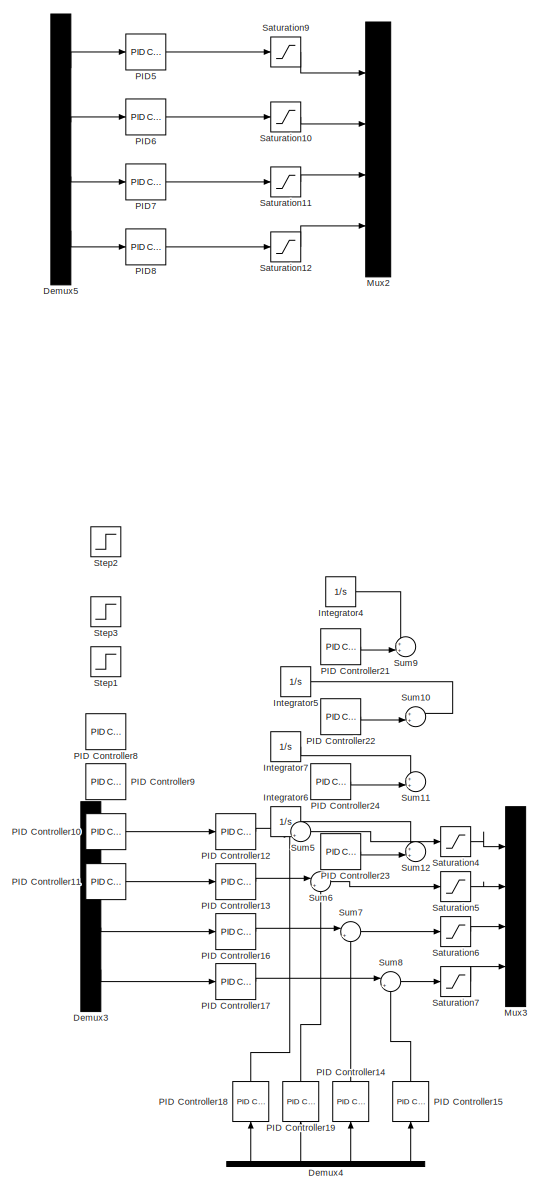
[diagram: root canvas - part 1/2, right side, full height]
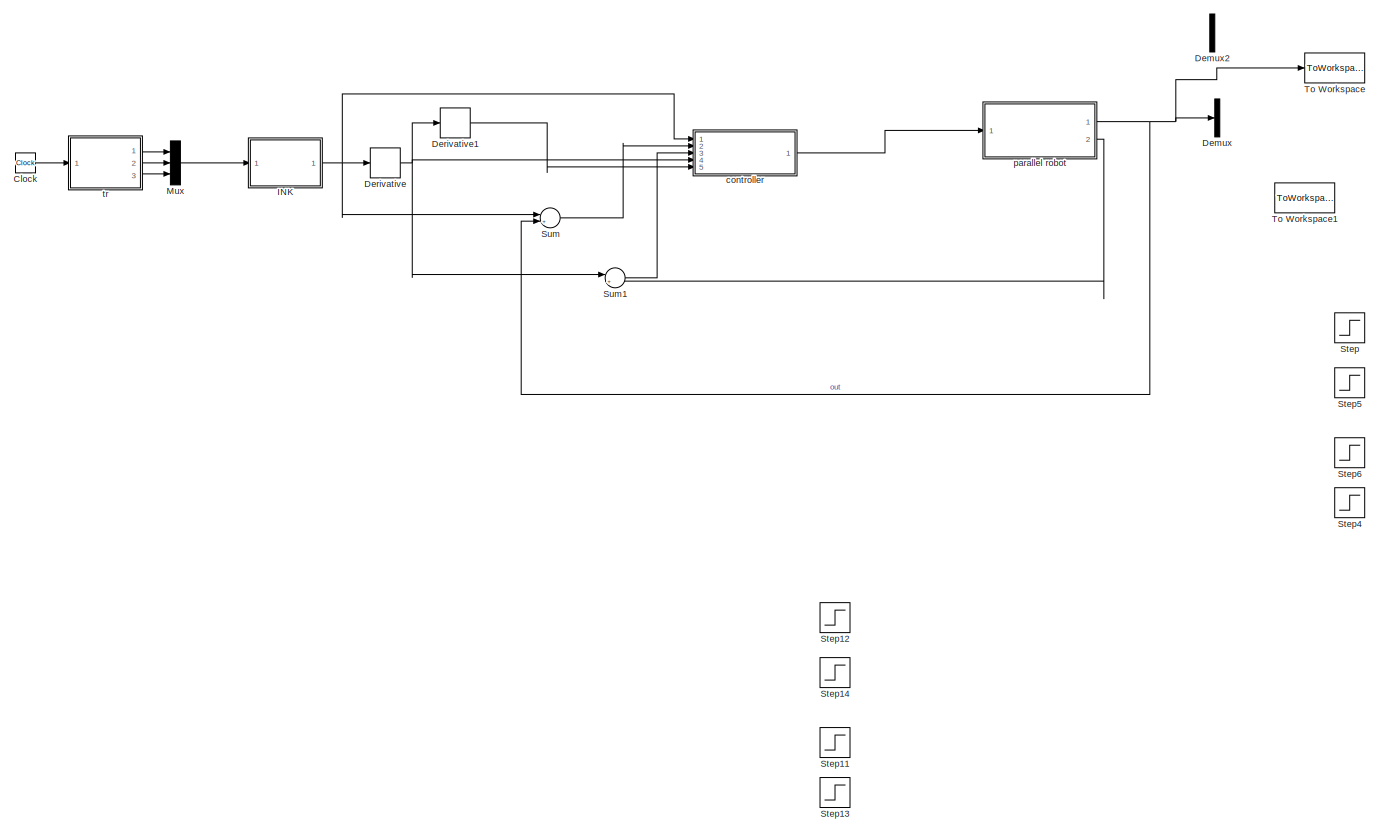
[diagram: root canvas - part 2/2, central region]
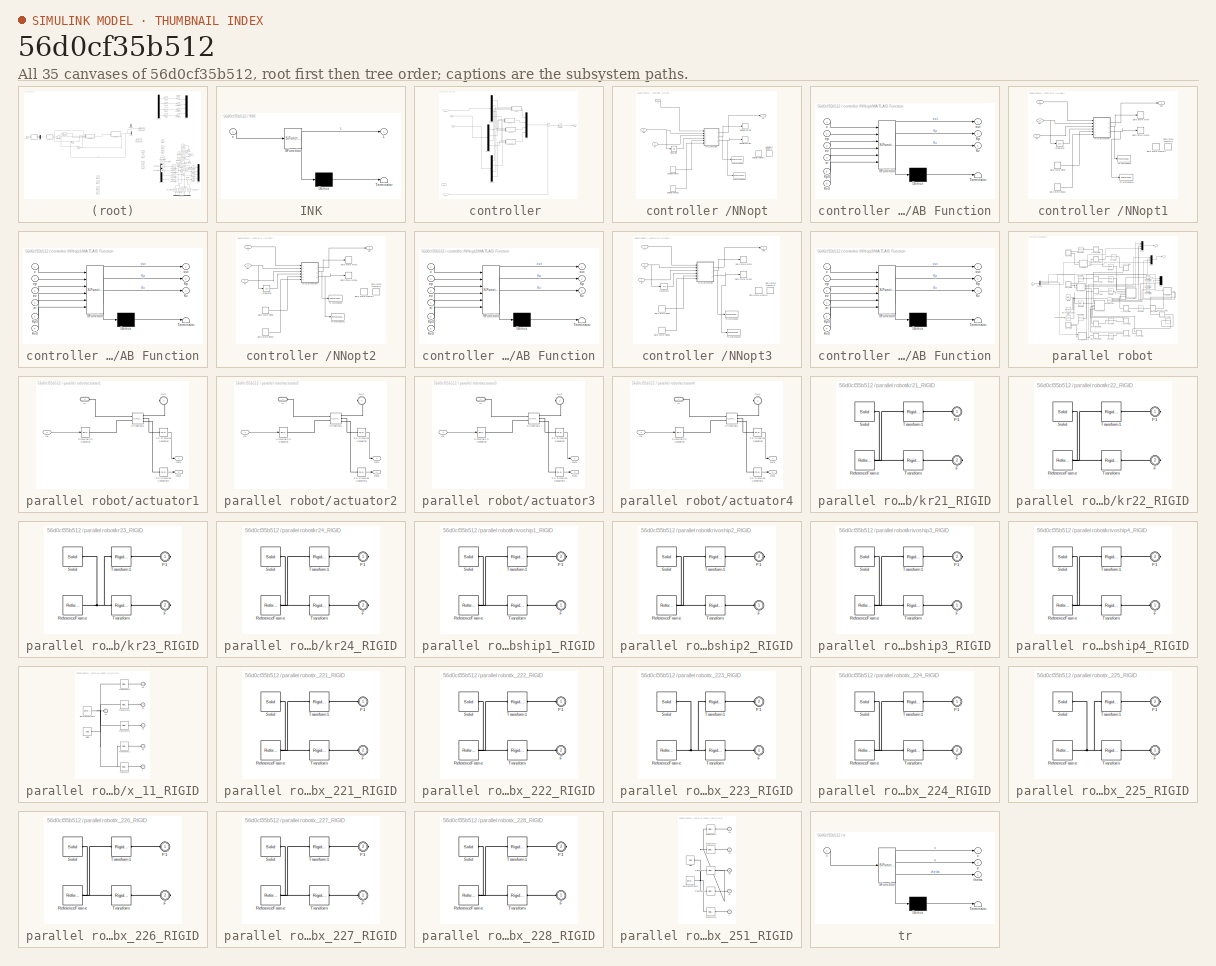
[diagram: thumbnail index - all 35 canvases of the model, root first then tree order]
MODEL slx_56d0cf35b512
KIND model
CONFIG AbsTol = auto
CONFIG FixedStep = auto
CONFIG MaxStep = auto
CONFIG MinStep = auto
CONFIG RelTol = 1e-3
CONFIG SampleTimeConstraint = Unconstrained
CONFIG Solver = ode23
CONFIG SolverMode = Auto
CONFIG SolverName = ode23
CONFIG StartTime = 0.0
CONFIG StopTime = 10
BLOCK [Clock] Clock
BLOCK [Demux] Demux
  DisplayOption = bar
  Ports = [1, 4]
BLOCK [Demux] Demux2
  DisplayOption = bar
  Ports = [1, 4]
BLOCK [Demux] Demux3
  Commented = on
  DisplayOption = bar
  Ports = [1, 4]
BLOCK [Demux] Demux4
  Commented = on
  DisplayOption = bar
  Ports = [1, 4]
BLOCK [Demux] Demux5
  Commented = on
  DisplayOption = bar
  Ports = [1, 4]
BLOCK [Derivative] Derivative
BLOCK [Derivative] Derivative1
BLOCK [SubSystem] INK
  ErrorFcn = Stateflow.Translate.translate
  PermitHierarchicalResolution = ExplicitOnly
  Ports = [1, 1]
  RequestExecContextInheritance = off
  SFBlockType = MATLAB Function
  TreatAsAtomicUnit = on
BLOCK [Demux] INK/ Demux 
  Outputs = 1
  Ports = [1, 1]
BLOCK [S-Function] INK/ SFunction 
  EnableBusSupport = on
  FunctionName = sf_sfun
  PortCounts = [1 2]
  Ports = [1, 2]
  Tag = Stateflow S-Function FtoTay 4
BLOCK [Terminator] INK/ Terminator 
BLOCK [Outport] INK/L
  IconDisplay = Port number
BLOCK [Inport] INK/x
  IconDisplay = Port number
BLOCK [Integrator] Integrator4
  Commented = on
  Ports = [1, 1]
BLOCK [Integrator] Integrator5
  Commented = on
  Ports = [1, 1]
BLOCK [Integrator] Integrator6
  Commented = on
  Ports = [1, 1]
BLOCK [Integrator] Integrator7
  Commented = on
  Ports = [1, 1]
BLOCK [Mux] Mux
  DisplayOption = bar
  Inputs = 3
  Ports = [3, 1]
BLOCK [Mux] Mux2
  Commented = on
  DisplayOption = bar
  Ports = [4, 1]
BLOCK [Mux] Mux3
  Commented = on
  DisplayOption = bar
  Ports = [4, 1]
BLOCK [Reference] PID Controller10  REF=simulink/Continuous/PID Controller
  AntiWindupMode = none
  Commented = on
  Controller = PID
  ControllerParametersSource = internal
  D = -0.437025921551984
  DGainOutDataTypeStr = Inherit: Inherit via internal rule
  DOutDataTypeStr = Inherit: Inherit via internal rule
  DOutMax = []
  DOutMin = []
  DParamDataTypeStr = Inherit: Inherit via internal rule
  DParamMax = []
  DParamMin = []
  DProdOutDataTypeStr = Inherit: Inherit via internal rule
  DifferentiatorICPrevScaledInput = 0
  DifferentiatorOutDataTypeStr = Inherit: Inherit via internal rule
  DifferentiatorOutMax = []
  DifferentiatorOutMin = []
  ExternalReset = none
  FilterContinuousStateAttributes = ''
  FilterMethod = Forward Euler
  FilterOutDataTypeStr = Inherit: Inherit via internal rule
  FilterOutMax = []
  FilterOutMin = []
  FilterRTWStateStorageClass = Auto
  FilterStateMustResolveToSignalObject = off
  Form = Parallel
  I = 64606134.8580978
  IGainOutDataTypeStr = Inherit: Inherit via internal rule
  IOutDataTypeStr = Inherit: Inherit via internal rule
  IOutMax = []
  IOutMin = []
  IParamDataTypeStr = Inherit: Inherit via internal rule
  IParamMax = []
  IParamMin = []
  IProdOutDataTypeStr = Inherit: Inherit via internal rule
  IgnoreLimit = off
  InitialConditionForFilter = 0
  InitialConditionForIntegrator = 0
  InitialConditionSource = internal
  IntegratorContinuousStateAttributes = ''
  IntegratorMethod = Forward Euler
  IntegratorOutDataTypeStr = Inherit: Inherit via internal rule
  IntegratorOutMax = []
  IntegratorOutMin = []
  IntegratorRTWStateStorageClass = Auto
  IntegratorStateMustResolveToSignalObject = off
  Kb = 1
  KbOutDataTypeStr = Inherit: Inherit via internal rule
  KbOutMax = []
  KbOutMin = []
  KbParamDataTypeStr = Inherit: Inherit via internal rule
  KbParamMax = []
  KbParamMin = []
  Kt = 1
  KtOutDataTypeStr = Inherit: Inherit via internal rule
  KtOutMax = []
  KtOutMin = []
  KtParamDataTypeStr = Inherit: Inherit via internal rule
  KtParamMax = []
  KtParamMin = []
  LimitOutput = off
  LinearizeAsGain = on
  LockScale = off
  LowerSaturationLimit = -inf
  N = 14211.5116665278
  NGainOutDataTypeStr = Inherit: Inherit via internal rule
  NOutDataTypeStr = Inherit: Inherit via internal rule
  NOutMax = []
  NOutMin = []
  NParamDataTypeStr = Inherit: Inherit via internal rule
  NParamMax = []
  NParamMin = []
  NProdOutDataTypeStr = Inherit: Inherit via internal rule
  P = 17857.7723619767
  PGainOutDataTypeStr = Inherit: Inherit via internal rule
  POutDataTypeStr = Inherit: Inherit via internal rule
  POutMax = []
  POutMin = []
  PParamDataTypeStr = Inherit: Inherit via internal rule
  PParamMax = []
  PParamMin = []
  PProdOutDataTypeStr = Inherit: Inherit via internal rule
  Ports = [1, 1]
  RndMeth = Floor
  SampleTime = -1
  SaturateOnIntegerOverflow = off
  SaturationOutDataTypeStr = Inherit: Same as input
  SaturationOutMax = []
  SaturationOutMin = []
  SourceBlock = simulink/Continuous/PID Controller
  SourceType = PID 1dof
  SumAccumDataTypeStr = Inherit: Inherit via internal rule
  SumDAccumDataTypeStr = Inherit: Inherit via internal rule
  SumDOutDataTypeStr = Inherit: Inherit via internal rule
  SumDOutMax = []
  SumDOutMin = []
  SumI1AccumDataTypeStr = Inherit: Inherit via internal rule
  SumI1OutDataTypeStr = Inherit: Inherit via internal rule
  SumI1OutMax = []
  SumI1OutMin = []
  SumI2AccumDataTypeStr = Inherit: Inherit via internal rule
  SumI2OutDataTypeStr = Inherit: Inherit via internal rule
  SumI2OutMax = []
  SumI2OutMin = []
  SumI3AccumDataTypeStr = Inherit: Inherit via internal rule
  SumI3OutDataTypeStr = Inherit: Inherit via internal rule
  SumI3OutMax = []
  SumI3OutMin = []
  SumOutDataTypeStr = Inherit: Inherit via internal rule
  SumOutMax = []
  SumOutMin = []
  TimeDomain = Continuous-time
  TrackingMode = off
  UpperSaturationLimit = inf
  UseFilter = on
  ZeroCross = on
BLOCK [Reference] PID Controller11  REF=simulink/Continuous/PID Controller
  AntiWindupMode = none
  Commented = on
  Controller = PID
  ControllerParametersSource = internal
  D = -4.33266514957959
  DGainOutDataTypeStr = Inherit: Inherit via internal rule
  DOutDataTypeStr = Inherit: Inherit via internal rule
  DOutMax = []
  DOutMin = []
  DParamDataTypeStr = Inherit: Inherit via internal rule
  DParamMax = []
  DParamMin = []
  DProdOutDataTypeStr = Inherit: Inherit via internal rule
  DifferentiatorICPrevScaledInput = 0
  DifferentiatorOutDataTypeStr = Inherit: Inherit via internal rule
  DifferentiatorOutMax = []
  DifferentiatorOutMin = []
  ExternalReset = none
  FilterContinuousStateAttributes = ''
  FilterMethod = Forward Euler
  FilterOutDataTypeStr = Inherit: Inherit via internal rule
  FilterOutMax = []
  FilterOutMin = []
  FilterRTWStateStorageClass = Auto
  FilterStateMustResolveToSignalObject = off
  Form = Parallel
  I = 379214714.903983
  IGainOutDataTypeStr = Inherit: Inherit via internal rule
  IOutDataTypeStr = Inherit: Inherit via internal rule
  IOutMax = []
  IOutMin = []
  IParamDataTypeStr = Inherit: Inherit via internal rule
  IParamMax = []
  IParamMin = []
  IProdOutDataTypeStr = Inherit: Inherit via internal rule
  IgnoreLimit = off
  InitialConditionForFilter = 0
  InitialConditionForIntegrator = 0
  InitialConditionSource = internal
  IntegratorContinuousStateAttributes = ''
  IntegratorMethod = Forward Euler
  IntegratorOutDataTypeStr = Inherit: Inherit via internal rule
  IntegratorOutMax = []
  IntegratorOutMin = []
  IntegratorRTWStateStorageClass = Auto
  IntegratorStateMustResolveToSignalObject = off
  Kb = 1
  KbOutDataTypeStr = Inherit: Inherit via internal rule
  KbOutMax = []
  KbOutMin = []
  KbParamDataTypeStr = Inherit: Inherit via internal rule
  KbParamMax = []
  KbParamMin = []
  Kt = 1
  KtOutDataTypeStr = Inherit: Inherit via internal rule
  KtOutMax = []
  KtOutMin = []
  KtParamDataTypeStr = Inherit: Inherit via internal rule
  KtParamMax = []
  KtParamMin = []
  LimitOutput = off
  LinearizeAsGain = on
  LockScale = off
  LowerSaturationLimit = -inf
  N = 13936.4384755437
  NGainOutDataTypeStr = Inherit: Inherit via internal rule
  NOutDataTypeStr = Inherit: Inherit via internal rule
  NOutMax = []
  NOutMin = []
  NParamDataTypeStr = Inherit: Inherit via internal rule
  NParamMax = []
  NParamMin = []
  NProdOutDataTypeStr = Inherit: Inherit via internal rule
  P = 60381.9212922485
  PGainOutDataTypeStr = Inherit: Inherit via internal rule
  POutDataTypeStr = Inherit: Inherit via internal rule
  POutMax = []
  POutMin = []
  PParamDataTypeStr = Inherit: Inherit via internal rule
  PParamMax = []
  PParamMin = []
  PProdOutDataTypeStr = Inherit: Inherit via internal rule
  Ports = [1, 1]
  RndMeth = Floor
  SampleTime = -1
  SaturateOnIntegerOverflow = off
  SaturationOutDataTypeStr = Inherit: Same as input
  SaturationOutMax = []
  SaturationOutMin = []
  SourceBlock = simulink/Continuous/PID Controller
  SourceType = PID 1dof
  SumAccumDataTypeStr = Inherit: Inherit via internal rule
  SumDAccumDataTypeStr = Inherit: Inherit via internal rule
  SumDOutDataTypeStr = Inherit: Inherit via internal rule
  SumDOutMax = []
  SumDOutMin = []
  SumI1AccumDataTypeStr = Inherit: Inherit via internal rule
  SumI1OutDataTypeStr = Inherit: Inherit via internal rule
  SumI1OutMax = []
  SumI1OutMin = []
  SumI2AccumDataTypeStr = Inherit: Inherit via internal rule
  SumI2OutDataTypeStr = Inherit: Inherit via internal rule
  SumI2OutMax = []
  SumI2OutMin = []
  SumI3AccumDataTypeStr = Inherit: Inherit via internal rule
  SumI3OutDataTypeStr = Inherit: Inherit via internal rule
  SumI3OutMax = []
  SumI3OutMin = []
  SumOutDataTypeStr = Inherit: Inherit via internal rule
  SumOutMax = []
  SumOutMin = []
  TimeDomain = Continuous-time
  TrackingMode = off
  UpperSaturationLimit = inf
  UseFilter = on
  ZeroCross = on
BLOCK [Reference] PID Controller12  REF=simulink/Continuous/PID Controller
  AntiWindupMode = none
  Commented = on
  Controller = PID
  ControllerParametersSource = internal
  D = 20.6899714613433
  DGainOutDataTypeStr = Inherit: Inherit via internal rule
  DOutDataTypeStr = Inherit: Inherit via internal rule
  DOutMax = []
  DOutMin = []
  DParamDataTypeStr = Inherit: Inherit via internal rule
  DParamMax = []
  DParamMin = []
  DProdOutDataTypeStr = Inherit: Inherit via internal rule
  DifferentiatorICPrevScaledInput = 0
  DifferentiatorOutDataTypeStr = Inherit: Inherit via internal rule
  DifferentiatorOutMax = []
  DifferentiatorOutMin = []
  ExternalReset = none
  FilterContinuousStateAttributes = ''
  FilterMethod = Forward Euler
  FilterOutDataTypeStr = Inherit: Inherit via internal rule
  FilterOutMax = []
  FilterOutMin = []
  FilterRTWStateStorageClass = Auto
  FilterStateMustResolveToSignalObject = off
  Form = Parallel
  I = 1164235286865.13
  IGainOutDataTypeStr = Inherit: Inherit via internal rule
  IOutDataTypeStr = Inherit: Inherit via internal rule
  IOutMax = []
  IOutMin = []
  IParamDataTypeStr = Inherit: Inherit via internal rule
  IParamMax = []
  IParamMin = []
  IProdOutDataTypeStr = Inherit: Inherit via internal rule
  IgnoreLimit = off
  InitialConditionForFilter = 0
  InitialConditionForIntegrator = 0
  InitialConditionSource = internal
  IntegratorContinuousStateAttributes = ''
  IntegratorMethod = Forward Euler
  IntegratorOutDataTypeStr = Inherit: Inherit via internal rule
  IntegratorOutMax = []
  IntegratorOutMin = []
  IntegratorRTWStateStorageClass = Auto
  IntegratorStateMustResolveToSignalObject = off
  Kb = 1
  KbOutDataTypeStr = Inherit: Inherit via internal rule
  KbOutMax = []
  KbOutMin = []
  KbParamDataTypeStr = Inherit: Inherit via internal rule
  KbParamMax = []
  KbParamMin = []
  Kt = 1
  KtOutDataTypeStr = Inherit: Inherit via internal rule
  KtOutMax = []
  KtOutMin = []
  KtParamDataTypeStr = Inherit: Inherit via internal rule
  KtParamMax = []
  KtParamMin = []
  LimitOutput = off
  LinearizeAsGain = on
  LockScale = off
  LowerSaturationLimit = -inf
  N = 5722653.98320339
  NGainOutDataTypeStr = Inherit: Inherit via internal rule
  NOutDataTypeStr = Inherit: Inherit via internal rule
  NOutMax = []
  NOutMin = []
  NParamDataTypeStr = Inherit: Inherit via internal rule
  NParamMax = []
  NParamMin = []
  NProdOutDataTypeStr = Inherit: Inherit via internal rule
  P = 10314476.9990547
  PGainOutDataTypeStr = Inherit: Inherit via internal rule
  POutDataTypeStr = Inherit: Inherit via internal rule
  POutMax = []
  POutMin = []
  PParamDataTypeStr = Inherit: Inherit via internal rule
  PParamMax = []
  PParamMin = []
  PProdOutDataTypeStr = Inherit: Inherit via internal rule
  Ports = [1, 1]
  RndMeth = Floor
  SampleTime = -1
  SaturateOnIntegerOverflow = off
  SaturationOutDataTypeStr = Inherit: Same as input
  SaturationOutMax = []
  SaturationOutMin = []
  SourceBlock = simulink/Continuous/PID Controller
  SourceType = PID 1dof
  SumAccumDataTypeStr = Inherit: Inherit via internal rule
  SumDAccumDataTypeStr = Inherit: Inherit via internal rule
  SumDOutDataTypeStr = Inherit: Inherit via internal rule
  SumDOutMax = []
  SumDOutMin = []
  SumI1AccumDataTypeStr = Inherit: Inherit via internal rule
  SumI1OutDataTypeStr = Inherit: Inherit via internal rule
  SumI1OutMax = []
  SumI1OutMin = []
  SumI2AccumDataTypeStr = Inherit: Inherit via internal rule
  SumI2OutDataTypeStr = Inherit: Inherit via internal rule
  SumI2OutMax = []
  SumI2OutMin = []
  SumI3AccumDataTypeStr = Inherit: Inherit via internal rule
  SumI3OutDataTypeStr = Inherit: Inherit via internal rule
  SumI3OutMax = []
  SumI3OutMin = []
  SumOutDataTypeStr = Inherit: Inherit via internal rule
  SumOutMax = []
  SumOutMin = []
  TimeDomain = Continuous-time
  TrackingMode = off
  UpperSaturationLimit = inf
  UseFilter = on
  ZeroCross = on
BLOCK [Reference] PID Controller13  REF=simulink/Continuous/PID Controller
  AntiWindupMode = none
  Commented = on
  Controller = PID
  ControllerParametersSource = internal
  D = 12.4519081815718
  DGainOutDataTypeStr = Inherit: Inherit via internal rule
  DOutDataTypeStr = Inherit: Inherit via internal rule
  DOutMax = []
  DOutMin = []
  DParamDataTypeStr = Inherit: Inherit via internal rule
  DParamMax = []
  DParamMin = []
  DProdOutDataTypeStr = Inherit: Inherit via internal rule
  DifferentiatorICPrevScaledInput = 0
  DifferentiatorOutDataTypeStr = Inherit: Inherit via internal rule
  DifferentiatorOutMax = []
  DifferentiatorOutMin = []
  ExternalReset = none
  FilterContinuousStateAttributes = ''
  FilterMethod = Forward Euler
  FilterOutDataTypeStr = Inherit: Inherit via internal rule
  FilterOutMax = []
  FilterOutMin = []
  FilterRTWStateStorageClass = Auto
  FilterStateMustResolveToSignalObject = off
  Form = Parallel
  I = 237727190884.133
  IGainOutDataTypeStr = Inherit: Inherit via internal rule
  IOutDataTypeStr = Inherit: Inherit via internal rule
  IOutMax = []
  IOutMin = []
  IParamDataTypeStr = Inherit: Inherit via internal rule
  IParamMax = []
  IParamMin = []
  IProdOutDataTypeStr = Inherit: Inherit via internal rule
  IgnoreLimit = off
  InitialConditionForFilter = 0
  InitialConditionForIntegrator = 0
  InitialConditionSource = internal
  IntegratorContinuousStateAttributes = ''
  IntegratorMethod = Forward Euler
  IntegratorOutDataTypeStr = Inherit: Inherit via internal rule
  IntegratorOutMax = []
  IntegratorOutMin = []
  IntegratorRTWStateStorageClass = Auto
  IntegratorStateMustResolveToSignalObject = off
  Kb = 1
  KbOutDataTypeStr = Inherit: Inherit via internal rule
  KbOutMax = []
  KbOutMin = []
  KbParamDataTypeStr = Inherit: Inherit via internal rule
  KbParamMax = []
  KbParamMin = []
  Kt = 1
  KtOutDataTypeStr = Inherit: Inherit via internal rule
  KtOutMax = []
  KtOutMin = []
  KtParamDataTypeStr = Inherit: Inherit via internal rule
  KtParamMax = []
  KtParamMin = []
  LimitOutput = off
  LinearizeAsGain = on
  LockScale = off
  LowerSaturationLimit = -inf
  N = 5169273.59832095
  NGainOutDataTypeStr = Inherit: Inherit via internal rule
  NOutDataTypeStr = Inherit: Inherit via internal rule
  NOutMax = []
  NOutMin = []
  NParamDataTypeStr = Inherit: Inherit via internal rule
  NParamMax = []
  NParamMin = []
  NProdOutDataTypeStr = Inherit: Inherit via internal rule
  P = 3607155.72093252
  PGainOutDataTypeStr = Inherit: Inherit via internal rule
  POutDataTypeStr = Inherit: Inherit via internal rule
  POutMax = []
  POutMin = []
  PParamDataTypeStr = Inherit: Inherit via internal rule
  PParamMax = []
  PParamMin = []
  PProdOutDataTypeStr = Inherit: Inherit via internal rule
  Ports = [1, 1]
  RndMeth = Floor
  SampleTime = -1
  SaturateOnIntegerOverflow = off
  SaturationOutDataTypeStr = Inherit: Same as input
  SaturationOutMax = []
  SaturationOutMin = []
  SourceBlock = simulink/Continuous/PID Controller
  SourceType = PID 1dof
  SumAccumDataTypeStr = Inherit: Inherit via internal rule
  SumDAccumDataTypeStr = Inherit: Inherit via internal rule
  SumDOutDataTypeStr = Inherit: Inherit via internal rule
  SumDOutMax = []
  SumDOutMin = []
  SumI1AccumDataTypeStr = Inherit: Inherit via internal rule
  SumI1OutDataTypeStr = Inherit: Inherit via internal rule
  SumI1OutMax = []
  SumI1OutMin = []
  SumI2AccumDataTypeStr = Inherit: Inherit via internal rule
  SumI2OutDataTypeStr = Inherit: Inherit via internal rule
  SumI2OutMax = []
  SumI2OutMin = []
  SumI3AccumDataTypeStr = Inherit: Inherit via internal rule
  SumI3OutDataTypeStr = Inherit: Inherit via internal rule
  SumI3OutMax = []
  SumI3OutMin = []
  SumOutDataTypeStr = Inherit: Inherit via internal rule
  SumOutMax = []
  SumOutMin = []
  TimeDomain = Continuous-time
  TrackingMode = off
  UpperSaturationLimit = inf
  UseFilter = on
  ZeroCross = on
BLOCK [Reference] PID Controller14  REF=simulink/Continuous/PID Controller
  AntiWindupMode = none
  Commented = on
  Controller = P
  ControllerParametersSource = internal
  D = 327.780510846707
  DGainOutDataTypeStr = Inherit: Inherit via internal rule
  DOutDataTypeStr = Inherit: Inherit via internal rule
  DOutMax = []
  DOutMin = []
  DParamDataTypeStr = Inherit: Inherit via internal rule
  DParamMax = []
  DParamMin = []
  DProdOutDataTypeStr = Inherit: Inherit via internal rule
  DifferentiatorICPrevScaledInput = 0
  DifferentiatorOutDataTypeStr = Inherit: Inherit via internal rule
  DifferentiatorOutMax = []
  DifferentiatorOutMin = []
  ExternalReset = none
  FilterContinuousStateAttributes = ''
  FilterMethod = Forward Euler
  FilterOutDataTypeStr = Inherit: Inherit via internal rule
  FilterOutMax = []
  FilterOutMin = []
  FilterRTWStateStorageClass = Auto
  FilterStateMustResolveToSignalObject = off
  Form = Parallel
  I = 1
  IGainOutDataTypeStr = Inherit: Inherit via internal rule
  IOutDataTypeStr = Inherit: Inherit via internal rule
  IOutMax = []
  IOutMin = []
  IParamDataTypeStr = Inherit: Inherit via internal rule
  IParamMax = []
  IParamMin = []
  IProdOutDataTypeStr = Inherit: Inherit via internal rule
  IgnoreLimit = off
  InitialConditionForFilter = 0
  InitialConditionForIntegrator = 0
  InitialConditionSource = internal
  IntegratorContinuousStateAttributes = ''
  IntegratorMethod = Forward Euler
  IntegratorOutDataTypeStr = Inherit: Inherit via internal rule
  IntegratorOutMax = []
  IntegratorOutMin = []
  IntegratorRTWStateStorageClass = Auto
  IntegratorStateMustResolveToSignalObject = off
  Kb = 1
  KbOutDataTypeStr = Inherit: Inherit via internal rule
  KbOutMax = []
  KbOutMin = []
  KbParamDataTypeStr = Inherit: Inherit via internal rule
  KbParamMax = []
  KbParamMin = []
  Kt = 1
  KtOutDataTypeStr = Inherit: Inherit via internal rule
  KtOutMax = []
  KtOutMin = []
  KtParamDataTypeStr = Inherit: Inherit via internal rule
  KtParamMax = []
  KtParamMin = []
  LimitOutput = off
  LinearizeAsGain = on
  LockScale = off
  LowerSaturationLimit = -inf
  N = 101.291954278958
  NGainOutDataTypeStr = Inherit: Inherit via internal rule
  NOutDataTypeStr = Inherit: Inherit via internal rule
  NOutMax = []
  NOutMin = []
  NParamDataTypeStr = Inherit: Inherit via internal rule
  NParamMax = []
  NParamMin = []
  NProdOutDataTypeStr = Inherit: Inherit via internal rule
  P = 327.780510846707
  PGainOutDataTypeStr = Inherit: Inherit via internal rule
  POutDataTypeStr = Inherit: Inherit via internal rule
  POutMax = []
  POutMin = []
  PParamDataTypeStr = Inherit: Inherit via internal rule
  PParamMax = []
  PParamMin = []
  PProdOutDataTypeStr = Inherit: Inherit via internal rule
  Ports = [1, 1]
  RndMeth = Floor
  SampleTime = -1
  SaturateOnIntegerOverflow = off
  SaturationOutDataTypeStr = Inherit: Same as input
  SaturationOutMax = []
  SaturationOutMin = []
  SourceBlock = simulink/Continuous/PID Controller
  SourceType = PID 1dof
  SumAccumDataTypeStr = Inherit: Inherit via internal rule
  SumDAccumDataTypeStr = Inherit: Inherit via internal rule
  SumDOutDataTypeStr = Inherit: Inherit via internal rule
  SumDOutMax = []
  SumDOutMin = []
  SumI1AccumDataTypeStr = Inherit: Inherit via internal rule
  SumI1OutDataTypeStr = Inherit: Inherit via internal rule
  SumI1OutMax = []
  SumI1OutMin = []
  SumI2AccumDataTypeStr = Inherit: Inherit via internal rule
  SumI2OutDataTypeStr = Inherit: Inherit via internal rule
  SumI2OutMax = []
  SumI2OutMin = []
  SumI3AccumDataTypeStr = Inherit: Inherit via internal rule
  SumI3OutDataTypeStr = Inherit: Inherit via internal rule
  SumI3OutMax = []
  SumI3OutMin = []
  SumOutDataTypeStr = Inherit: Inherit via internal rule
  SumOutMax = []
  SumOutMin = []
  TimeDomain = Continuous-time
  TrackingMode = off
  UpperSaturationLimit = inf
  UseFilter = on
  ZeroCross = on
BLOCK [Reference] PID Controller15  REF=simulink/Continuous/PID Controller
  AntiWindupMode = none
  Commented = on
  Controller = P
  ControllerParametersSource = internal
  D = 7420.47147155898
  DGainOutDataTypeStr = Inherit: Inherit via internal rule
  DOutDataTypeStr = Inherit: Inherit via internal rule
  DOutMax = []
  DOutMin = []
  DParamDataTypeStr = Inherit: Inherit via internal rule
  DParamMax = []
  DParamMin = []
  DProdOutDataTypeStr = Inherit: Inherit via internal rule
  DifferentiatorICPrevScaledInput = 0
  DifferentiatorOutDataTypeStr = Inherit: Inherit via internal rule
  DifferentiatorOutMax = []
  DifferentiatorOutMin = []
  ExternalReset = none
  FilterContinuousStateAttributes = ''
  FilterMethod = Forward Euler
  FilterOutDataTypeStr = Inherit: Inherit via internal rule
  FilterOutMax = []
  FilterOutMin = []
  FilterRTWStateStorageClass = Auto
  FilterStateMustResolveToSignalObject = off
  Form = Parallel
  I = 1
  IGainOutDataTypeStr = Inherit: Inherit via internal rule
  IOutDataTypeStr = Inherit: Inherit via internal rule
  IOutMax = []
  IOutMin = []
  IParamDataTypeStr = Inherit: Inherit via internal rule
  IParamMax = []
  IParamMin = []
  IProdOutDataTypeStr = Inherit: Inherit via internal rule
  IgnoreLimit = off
  InitialConditionForFilter = 0
  InitialConditionForIntegrator = 0
  InitialConditionSource = internal
  IntegratorContinuousStateAttributes = ''
  IntegratorMethod = Forward Euler
  IntegratorOutDataTypeStr = Inherit: Inherit via internal rule
  IntegratorOutMax = []
  IntegratorOutMin = []
  IntegratorRTWStateStorageClass = Auto
  IntegratorStateMustResolveToSignalObject = off
  Kb = 1
  KbOutDataTypeStr = Inherit: Inherit via internal rule
  KbOutMax = []
  KbOutMin = []
  KbParamDataTypeStr = Inherit: Inherit via internal rule
  KbParamMax = []
  KbParamMin = []
  Kt = 1
  KtOutDataTypeStr = Inherit: Inherit via internal rule
  KtOutMax = []
  KtOutMin = []
  KtParamDataTypeStr = Inherit: Inherit via internal rule
  KtParamMax = []
  KtParamMin = []
  LimitOutput = off
  LinearizeAsGain = on
  LockScale = off
  LowerSaturationLimit = -inf
  N = 58852.1158834325
  NGainOutDataTypeStr = Inherit: Inherit via internal rule
  NOutDataTypeStr = Inherit: Inherit via internal rule
  NOutMax = []
  NOutMin = []
  NParamDataTypeStr = Inherit: Inherit via internal rule
  NParamMax = []
  NParamMin = []
  NProdOutDataTypeStr = Inherit: Inherit via internal rule
  P = 60156.1543154272
  PGainOutDataTypeStr = Inherit: Inherit via internal rule
  POutDataTypeStr = Inherit: Inherit via internal rule
  POutMax = []
  POutMin = []
  PParamDataTypeStr = Inherit: Inherit via internal rule
  PParamMax = []
  PParamMin = []
  PProdOutDataTypeStr = Inherit: Inherit via internal rule
  Ports = [1, 1]
  RndMeth = Floor
  SampleTime = -1
  SaturateOnIntegerOverflow = off
  SaturationOutDataTypeStr = Inherit: Same as input
  SaturationOutMax = []
  SaturationOutMin = []
  SourceBlock = simulink/Continuous/PID Controller
  SourceType = PID 1dof
  SumAccumDataTypeStr = Inherit: Inherit via internal rule
  SumDAccumDataTypeStr = Inherit: Inherit via internal rule
  SumDOutDataTypeStr = Inherit: Inherit via internal rule
  SumDOutMax = []
  SumDOutMin = []
  SumI1AccumDataTypeStr = Inherit: Inherit via internal rule
  SumI1OutDataTypeStr = Inherit: Inherit via internal rule
  SumI1OutMax = []
  SumI1OutMin = []
  SumI2AccumDataTypeStr = Inherit: Inherit via internal rule
  SumI2OutDataTypeStr = Inherit: Inherit via internal rule
  SumI2OutMax = []
  SumI2OutMin = []
  SumI3AccumDataTypeStr = Inherit: Inherit via internal rule
  SumI3OutDataTypeStr = Inherit: Inherit via internal rule
  SumI3OutMax = []
  SumI3OutMin = []
  SumOutDataTypeStr = Inherit: Inherit via internal rule
  SumOutMax = []
  SumOutMin = []
  TimeDomain = Continuous-time
  TrackingMode = off
  UpperSaturationLimit = inf
  UseFilter = on
  ZeroCross = on
BLOCK [Reference] PID Controller16  REF=simulink/Continuous/PID Controller
  AntiWindupMode = none
  Commented = on
  Controller = PID
  ControllerParametersSource = internal
  D = -0.437025921551984
  DGainOutDataTypeStr = Inherit: Inherit via internal rule
  DOutDataTypeStr = Inherit: Inherit via internal rule
  DOutMax = []
  DOutMin = []
  DParamDataTypeStr = Inherit: Inherit via internal rule
  DParamMax = []
  DParamMin = []
  DProdOutDataTypeStr = Inherit: Inherit via internal rule
  DifferentiatorICPrevScaledInput = 0
  DifferentiatorOutDataTypeStr = Inherit: Inherit via internal rule
  DifferentiatorOutMax = []
  DifferentiatorOutMin = []
  ExternalReset = none
  FilterContinuousStateAttributes = ''
  FilterMethod = Forward Euler
  FilterOutDataTypeStr = Inherit: Inherit via internal rule
  FilterOutMax = []
  FilterOutMin = []
  FilterRTWStateStorageClass = Auto
  FilterStateMustResolveToSignalObject = off
  Form = Parallel
  I = 64606134.8580978
  IGainOutDataTypeStr = Inherit: Inherit via internal rule
  IOutDataTypeStr = Inherit: Inherit via internal rule
  IOutMax = []
  IOutMin = []
  IParamDataTypeStr = Inherit: Inherit via internal rule
  IParamMax = []
  IParamMin = []
  IProdOutDataTypeStr = Inherit: Inherit via internal rule
  IgnoreLimit = off
  InitialConditionForFilter = 0
  InitialConditionForIntegrator = 0
  InitialConditionSource = internal
  IntegratorContinuousStateAttributes = ''
  IntegratorMethod = Forward Euler
  IntegratorOutDataTypeStr = Inherit: Inherit via internal rule
  IntegratorOutMax = []
  IntegratorOutMin = []
  IntegratorRTWStateStorageClass = Auto
  IntegratorStateMustResolveToSignalObject = off
  Kb = 1
  KbOutDataTypeStr = Inherit: Inherit via internal rule
  KbOutMax = []
  KbOutMin = []
  KbParamDataTypeStr = Inherit: Inherit via internal rule
  KbParamMax = []
  KbParamMin = []
  Kt = 1
  KtOutDataTypeStr = Inherit: Inherit via internal rule
  KtOutMax = []
  KtOutMin = []
  KtParamDataTypeStr = Inherit: Inherit via internal rule
  KtParamMax = []
  KtParamMin = []
  LimitOutput = off
  LinearizeAsGain = on
  LockScale = off
  LowerSaturationLimit = -inf
  N = 14211.5116665278
  NGainOutDataTypeStr = Inherit: Inherit via internal rule
  NOutDataTypeStr = Inherit: Inherit via internal rule
  NOutMax = []
  NOutMin = []
  NParamDataTypeStr = Inherit: Inherit via internal rule
  NParamMax = []
  NParamMin = []
  NProdOutDataTypeStr = Inherit: Inherit via internal rule
  P = 17857.7723619767
  PGainOutDataTypeStr = Inherit: Inherit via internal rule
  POutDataTypeStr = Inherit: Inherit via internal rule
  POutMax = []
  POutMin = []
  PParamDataTypeStr = Inherit: Inherit via internal rule
  PParamMax = []
  PParamMin = []
  PProdOutDataTypeStr = Inherit: Inherit via internal rule
  Ports = [1, 1]
  RndMeth = Floor
  SampleTime = -1
  SaturateOnIntegerOverflow = off
  SaturationOutDataTypeStr = Inherit: Same as input
  SaturationOutMax = []
  SaturationOutMin = []
  SourceBlock = simulink/Continuous/PID Controller
  SourceType = PID 1dof
  SumAccumDataTypeStr = Inherit: Inherit via internal rule
  SumDAccumDataTypeStr = Inherit: Inherit via internal rule
  SumDOutDataTypeStr = Inherit: Inherit via internal rule
  SumDOutMax = []
  SumDOutMin = []
  SumI1AccumDataTypeStr = Inherit: Inherit via internal rule
  SumI1OutDataTypeStr = Inherit: Inherit via internal rule
  SumI1OutMax = []
  SumI1OutMin = []
  SumI2AccumDataTypeStr = Inherit: Inherit via internal rule
  SumI2OutDataTypeStr = Inherit: Inherit via internal rule
  SumI2OutMax = []
  SumI2OutMin = []
  SumI3AccumDataTypeStr = Inherit: Inherit via internal rule
  SumI3OutDataTypeStr = Inherit: Inherit via internal rule
  SumI3OutMax = []
  SumI3OutMin = []
  SumOutDataTypeStr = Inherit: Inherit via internal rule
  SumOutMax = []
  SumOutMin = []
  TimeDomain = Continuous-time
  TrackingMode = off
  UpperSaturationLimit = inf
  UseFilter = on
  ZeroCross = on
BLOCK [Reference] PID Controller17  REF=simulink/Continuous/PID Controller
  AntiWindupMode = none
  Commented = on
  Controller = PID
  ControllerParametersSource = internal
  D = -4.33266514957959
  DGainOutDataTypeStr = Inherit: Inherit via internal rule
  DOutDataTypeStr = Inherit: Inherit via internal rule
  DOutMax = []
  DOutMin = []
  DParamDataTypeStr = Inherit: Inherit via internal rule
  DParamMax = []
  DParamMin = []
  DProdOutDataTypeStr = Inherit: Inherit via internal rule
  DifferentiatorICPrevScaledInput = 0
  DifferentiatorOutDataTypeStr = Inherit: Inherit via internal rule
  DifferentiatorOutMax = []
  DifferentiatorOutMin = []
  ExternalReset = none
  FilterContinuousStateAttributes = ''
  FilterMethod = Forward Euler
  FilterOutDataTypeStr = Inherit: Inherit via internal rule
  FilterOutMax = []
  FilterOutMin = []
  FilterRTWStateStorageClass = Auto
  FilterStateMustResolveToSignalObject = off
  Form = Parallel
  I = 379214714.903983
  IGainOutDataTypeStr = Inherit: Inherit via internal rule
  IOutDataTypeStr = Inherit: Inherit via internal rule
  IOutMax = []
  IOutMin = []
  IParamDataTypeStr = Inherit: Inherit via internal rule
  IParamMax = []
  IParamMin = []
  IProdOutDataTypeStr = Inherit: Inherit via internal rule
  IgnoreLimit = off
  InitialConditionForFilter = 0
  InitialConditionForIntegrator = 0
  InitialConditionSource = internal
  IntegratorContinuousStateAttributes = ''
  IntegratorMethod = Forward Euler
  IntegratorOutDataTypeStr = Inherit: Inherit via internal rule
  IntegratorOutMax = []
  IntegratorOutMin = []
  IntegratorRTWStateStorageClass = Auto
  IntegratorStateMustResolveToSignalObject = off
  Kb = 1
  KbOutDataTypeStr = Inherit: Inherit via internal rule
  KbOutMax = []
  KbOutMin = []
  KbParamDataTypeStr = Inherit: Inherit via internal rule
  KbParamMax = []
  KbParamMin = []
  Kt = 1
  KtOutDataTypeStr = Inherit: Inherit via internal rule
  KtOutMax = []
  KtOutMin = []
  KtParamDataTypeStr = Inherit: Inherit via internal rule
  KtParamMax = []
  KtParamMin = []
  LimitOutput = off
  LinearizeAsGain = on
  LockScale = off
  LowerSaturationLimit = -inf
  N = 13936.4384755437
  NGainOutDataTypeStr = Inherit: Inherit via internal rule
  NOutDataTypeStr = Inherit: Inherit via internal rule
  NOutMax = []
  NOutMin = []
  NParamDataTypeStr = Inherit: Inherit via internal rule
  NParamMax = []
  NParamMin = []
  NProdOutDataTypeStr = Inherit: Inherit via internal rule
  P = 60381.9212922485
  PGainOutDataTypeStr = Inherit: Inherit via internal rule
  POutDataTypeStr = Inherit: Inherit via internal rule
  POutMax = []
  POutMin = []
  PParamDataTypeStr = Inherit: Inherit via internal rule
  PParamMax = []
  PParamMin = []
  PProdOutDataTypeStr = Inherit: Inherit via internal rule
  Ports = [1, 1]
  RndMeth = Floor
  SampleTime = -1
  SaturateOnIntegerOverflow = off
  SaturationOutDataTypeStr = Inherit: Same as input
  SaturationOutMax = []
  SaturationOutMin = []
  SourceBlock = simulink/Continuous/PID Controller
  SourceType = PID 1dof
  SumAccumDataTypeStr = Inherit: Inherit via internal rule
  SumDAccumDataTypeStr = Inherit: Inherit via internal rule
  SumDOutDataTypeStr = Inherit: Inherit via internal rule
  SumDOutMax = []
  SumDOutMin = []
  SumI1AccumDataTypeStr = Inherit: Inherit via internal rule
  SumI1OutDataTypeStr = Inherit: Inherit via internal rule
  SumI1OutMax = []
  SumI1OutMin = []
  SumI2AccumDataTypeStr = Inherit: Inherit via internal rule
  SumI2OutDataTypeStr = Inherit: Inherit via internal rule
  SumI2OutMax = []
  SumI2OutMin = []
  SumI3AccumDataTypeStr = Inherit: Inherit via internal rule
  SumI3OutDataTypeStr = Inherit: Inherit via internal rule
  SumI3OutMax = []
  SumI3OutMin = []
  SumOutDataTypeStr = Inherit: Inherit via internal rule
  SumOutMax = []
  SumOutMin = []
  TimeDomain = Continuous-time
  TrackingMode = off
  UpperSaturationLimit = inf
  UseFilter = on
  ZeroCross = on
BLOCK [Reference] PID Controller18  REF=simulink/Continuous/PID Controller
  AntiWindupMode = none
  Commented = on
  Controller = P
  ControllerParametersSource = internal
  D = 12162.7304134108
  DGainOutDataTypeStr = Inherit: Inherit via internal rule
  DOutDataTypeStr = Inherit: Inherit via internal rule
  DOutMax = []
  DOutMin = []
  DParamDataTypeStr = Inherit: Inherit via internal rule
  DParamMax = []
  DParamMin = []
  DProdOutDataTypeStr = Inherit: Inherit via internal rule
  DifferentiatorICPrevScaledInput = 0
  DifferentiatorOutDataTypeStr = Inherit: Inherit via internal rule
  DifferentiatorOutMax = []
  DifferentiatorOutMin = []
  ExternalReset = none
  FilterContinuousStateAttributes = ''
  FilterMethod = Forward Euler
  FilterOutDataTypeStr = Inherit: Inherit via internal rule
  FilterOutMax = []
  FilterOutMin = []
  FilterRTWStateStorageClass = Auto
  FilterStateMustResolveToSignalObject = off
  Form = Parallel
  I = 1
  IGainOutDataTypeStr = Inherit: Inherit via internal rule
  IOutDataTypeStr = Inherit: Inherit via internal rule
  IOutMax = []
  IOutMin = []
  IParamDataTypeStr = Inherit: Inherit via internal rule
  IParamMax = []
  IParamMin = []
  IProdOutDataTypeStr = Inherit: Inherit via internal rule
  IgnoreLimit = off
  InitialConditionForFilter = 0
  InitialConditionForIntegrator = 0
  InitialConditionSource = internal
  IntegratorContinuousStateAttributes = ''
  IntegratorMethod = Forward Euler
  IntegratorOutDataTypeStr = Inherit: Inherit via internal rule
  IntegratorOutMax = []
  IntegratorOutMin = []
  IntegratorRTWStateStorageClass = Auto
  IntegratorStateMustResolveToSignalObject = off
  Kb = 1
  KbOutDataTypeStr = Inherit: Inherit via internal rule
  KbOutMax = []
  KbOutMin = []
  KbParamDataTypeStr = Inherit: Inherit via internal rule
  KbParamMax = []
  KbParamMin = []
  Kt = 1
  KtOutDataTypeStr = Inherit: Inherit via internal rule
  KtOutMax = []
  KtOutMin = []
  KtParamDataTypeStr = Inherit: Inherit via internal rule
  KtParamMax = []
  KtParamMin = []
  LimitOutput = off
  LinearizeAsGain = on
  LockScale = off
  LowerSaturationLimit = -inf
  N = 743.651917531574
  NGainOutDataTypeStr = Inherit: Inherit via internal rule
  NOutDataTypeStr = Inherit: Inherit via internal rule
  NOutMax = []
  NOutMin = []
  NParamDataTypeStr = Inherit: Inherit via internal rule
  NParamMax = []
  NParamMin = []
  NProdOutDataTypeStr = Inherit: Inherit via internal rule
  P = 71606.5072922126
  PGainOutDataTypeStr = Inherit: Inherit via internal rule
  POutDataTypeStr = Inherit: Inherit via internal rule
  POutMax = []
  POutMin = []
  PParamDataTypeStr = Inherit: Inherit via internal rule
  PParamMax = []
  PParamMin = []
  PProdOutDataTypeStr = Inherit: Inherit via internal rule
  Ports = [1, 1]
  RndMeth = Floor
  SampleTime = -1
  SaturateOnIntegerOverflow = off
  SaturationOutDataTypeStr = Inherit: Same as input
  SaturationOutMax = []
  SaturationOutMin = []
  SourceBlock = simulink/Continuous/PID Controller
  SourceType = PID 1dof
  SumAccumDataTypeStr = Inherit: Inherit via internal rule
  SumDAccumDataTypeStr = Inherit: Inherit via internal rule
  SumDOutDataTypeStr = Inherit: Inherit via internal rule
  SumDOutMax = []
  SumDOutMin = []
  SumI1AccumDataTypeStr = Inherit: Inherit via internal rule
  SumI1OutDataTypeStr = Inherit: Inherit via internal rule
  SumI1OutMax = []
  SumI1OutMin = []
  SumI2AccumDataTypeStr = Inherit: Inherit via internal rule
  SumI2OutDataTypeStr = Inherit: Inherit via internal rule
  SumI2OutMax = []
  SumI2OutMin = []
  SumI3AccumDataTypeStr = Inherit: Inherit via internal rule
  SumI3OutDataTypeStr = Inherit: Inherit via internal rule
  SumI3OutMax = []
  SumI3OutMin = []
  SumOutDataTypeStr = Inherit: Inherit via internal rule
  SumOutMax = []
  SumOutMin = []
  TimeDomain = Continuous-time
  TrackingMode = off
  UpperSaturationLimit = inf
  UseFilter = on
  ZeroCross = on
BLOCK [Reference] PID Controller19  REF=simulink/Continuous/PID Controller
  AntiWindupMode = none
  Commented = on
  Controller = P
  ControllerParametersSource = internal
  D = 2647.03225324483
  DGainOutDataTypeStr = Inherit: Inherit via internal rule
  DOutDataTypeStr = Inherit: Inherit via internal rule
  DOutMax = []
  DOutMin = []
  DParamDataTypeStr = Inherit: Inherit via internal rule
  DParamMax = []
  DParamMin = []
  DProdOutDataTypeStr = Inherit: Inherit via internal rule
  DifferentiatorICPrevScaledInput = 0
  DifferentiatorOutDataTypeStr = Inherit: Inherit via internal rule
  DifferentiatorOutMax = []
  DifferentiatorOutMin = []
  ExternalReset = none
  FilterContinuousStateAttributes = ''
  FilterMethod = Forward Euler
  FilterOutDataTypeStr = Inherit: Inherit via internal rule
  FilterOutMax = []
  FilterOutMin = []
  FilterRTWStateStorageClass = Auto
  FilterStateMustResolveToSignalObject = off
  Form = Parallel
  I = 1
  IGainOutDataTypeStr = Inherit: Inherit via internal rule
  IOutDataTypeStr = Inherit: Inherit via internal rule
  IOutMax = []
  IOutMin = []
  IParamDataTypeStr = Inherit: Inherit via internal rule
  IParamMax = []
  IParamMin = []
  IProdOutDataTypeStr = Inherit: Inherit via internal rule
  IgnoreLimit = off
  InitialConditionForFilter = 0
  InitialConditionForIntegrator = 0
  InitialConditionSource = internal
  IntegratorContinuousStateAttributes = ''
  IntegratorMethod = Forward Euler
  IntegratorOutDataTypeStr = Inherit: Inherit via internal rule
  IntegratorOutMax = []
  IntegratorOutMin = []
  IntegratorRTWStateStorageClass = Auto
  IntegratorStateMustResolveToSignalObject = off
  Kb = 1
  KbOutDataTypeStr = Inherit: Inherit via internal rule
  KbOutMax = []
  KbOutMin = []
  KbParamDataTypeStr = Inherit: Inherit via internal rule
  KbParamMax = []
  KbParamMin = []
  Kt = 1
  KtOutDataTypeStr = Inherit: Inherit via internal rule
  KtOutMax = []
  KtOutMin = []
  KtParamDataTypeStr = Inherit: Inherit via internal rule
  KtParamMax = []
  KtParamMin = []
  LimitOutput = off
  LinearizeAsGain = on
  LockScale = off
  LowerSaturationLimit = -inf
  N = 185036.482987474
  NGainOutDataTypeStr = Inherit: Inherit via internal rule
  NOutDataTypeStr = Inherit: Inherit via internal rule
  NOutMax = []
  NOutMin = []
  NParamDataTypeStr = Inherit: Inherit via internal rule
  NParamMax = []
  NParamMin = []
  NProdOutDataTypeStr = Inherit: Inherit via internal rule
  P = 2647.03225324483
  PGainOutDataTypeStr = Inherit: Inherit via internal rule
  POutDataTypeStr = Inherit: Inherit via internal rule
  POutMax = []
  POutMin = []
  PParamDataTypeStr = Inherit: Inherit via internal rule
  PParamMax = []
  PParamMin = []
  PProdOutDataTypeStr = Inherit: Inherit via internal rule
  Ports = [1, 1]
  RndMeth = Floor
  SampleTime = -1
  SaturateOnIntegerOverflow = off
  SaturationOutDataTypeStr = Inherit: Same as input
  SaturationOutMax = []
  SaturationOutMin = []
  SourceBlock = simulink/Continuous/PID Controller
  SourceType = PID 1dof
  SumAccumDataTypeStr = Inherit: Inherit via internal rule
  SumDAccumDataTypeStr = Inherit: Inherit via internal rule
  SumDOutDataTypeStr = Inherit: Inherit via internal rule
  SumDOutMax = []
  SumDOutMin = []
  SumI1AccumDataTypeStr = Inherit: Inherit via internal rule
  SumI1OutDataTypeStr = Inherit: Inherit via internal rule
  SumI1OutMax = []
  SumI1OutMin = []
  SumI2AccumDataTypeStr = Inherit: Inherit via internal rule
  SumI2OutDataTypeStr = Inherit: Inherit via internal rule
  SumI2OutMax = []
  SumI2OutMin = []
  SumI3AccumDataTypeStr = Inherit: Inherit via internal rule
  SumI3OutDataTypeStr = Inherit: Inherit via internal rule
  SumI3OutMax = []
  SumI3OutMin = []
  SumOutDataTypeStr = Inherit: Inherit via internal rule
  SumOutMax = []
  SumOutMin = []
  TimeDomain = Continuous-time
  TrackingMode = off
  UpperSaturationLimit = inf
  UseFilter = on
  ZeroCross = on
BLOCK [Reference] PID Controller21  REF=simulink/Continuous/PID Controller
  AntiWindupMode = none
  Commented = on
  Controller = PD
  ControllerParametersSource = internal
  D = 17000
  DGainOutDataTypeStr = Inherit: Inherit via internal rule
  DOutDataTypeStr = Inherit: Inherit via internal rule
  DOutMax = []
  DOutMin = []
  DParamDataTypeStr = Inherit: Inherit via internal rule
  DParamMax = []
  DParamMin = []
  DProdOutDataTypeStr = Inherit: Inherit via internal rule
  DifferentiatorICPrevScaledInput = 0
  DifferentiatorOutDataTypeStr = Inherit: Inherit via internal rule
  DifferentiatorOutMax = []
  DifferentiatorOutMin = []
  ExternalReset = none
  FilterContinuousStateAttributes = ''
  FilterMethod = Forward Euler
  FilterOutDataTypeStr = Inherit: Inherit via internal rule
  FilterOutMax = []
  FilterOutMin = []
  FilterRTWStateStorageClass = Auto
  FilterStateMustResolveToSignalObject = off
  Form = Parallel
  I = 1
  IGainOutDataTypeStr = Inherit: Inherit via internal rule
  IOutDataTypeStr = Inherit: Inherit via internal rule
  IOutMax = []
  IOutMin = []
  IParamDataTypeStr = Inherit: Inherit via internal rule
  IParamMax = []
  IParamMin = []
  IProdOutDataTypeStr = Inherit: Inherit via internal rule
  IgnoreLimit = off
  InitialConditionForFilter = 0
  InitialConditionForIntegrator = 0
  InitialConditionSource = internal
  IntegratorContinuousStateAttributes = ''
  IntegratorMethod = Forward Euler
  IntegratorOutDataTypeStr = Inherit: Inherit via internal rule
  IntegratorOutMax = []
  IntegratorOutMin = []
  IntegratorRTWStateStorageClass = Auto
  IntegratorStateMustResolveToSignalObject = off
  Kb = 1
  KbOutDataTypeStr = Inherit: Inherit via internal rule
  KbOutMax = []
  KbOutMin = []
  KbParamDataTypeStr = Inherit: Inherit via internal rule
  KbParamMax = []
  KbParamMin = []
  Kt = 1
  KtOutDataTypeStr = Inherit: Inherit via internal rule
  KtOutMax = []
  KtOutMin = []
  KtParamDataTypeStr = Inherit: Inherit via internal rule
  KtParamMax = []
  KtParamMin = []
  LimitOutput = off
  LinearizeAsGain = on
  LockScale = off
  LowerSaturationLimit = -inf
  N = 100
  NGainOutDataTypeStr = Inherit: Inherit via internal rule
  NOutDataTypeStr = Inherit: Inherit via internal rule
  NOutMax = []
  NOutMin = []
  NParamDataTypeStr = Inherit: Inherit via internal rule
  NParamMax = []
  NParamMin = []
  NProdOutDataTypeStr = Inherit: Inherit via internal rule
  P = 170000
  PGainOutDataTypeStr = Inherit: Inherit via internal rule
  POutDataTypeStr = Inherit: Inherit via internal rule
  POutMax = []
  POutMin = []
  PParamDataTypeStr = Inherit: Inherit via internal rule
  PParamMax = []
  PParamMin = []
  PProdOutDataTypeStr = Inherit: Inherit via internal rule
  Ports = [1, 1]
  RndMeth = Floor
  SampleTime = -1
  SaturateOnIntegerOverflow = off
  SaturationOutDataTypeStr = Inherit: Same as input
  SaturationOutMax = []
  SaturationOutMin = []
  SourceBlock = simulink/Continuous/PID Controller
  SourceType = PID 1dof
  SumAccumDataTypeStr = Inherit: Inherit via internal rule
  SumDAccumDataTypeStr = Inherit: Inherit via internal rule
  SumDOutDataTypeStr = Inherit: Inherit via internal rule
  SumDOutMax = []
  SumDOutMin = []
  SumI1AccumDataTypeStr = Inherit: Inherit via internal rule
  SumI1OutDataTypeStr = Inherit: Inherit via internal rule
  SumI1OutMax = []
  SumI1OutMin = []
  SumI2AccumDataTypeStr = Inherit: Inherit via internal rule
  SumI2OutDataTypeStr = Inherit: Inherit via internal rule
  SumI2OutMax = []
  SumI2OutMin = []
  SumI3AccumDataTypeStr = Inherit: Inherit via internal rule
  SumI3OutDataTypeStr = Inherit: Inherit via internal rule
  SumI3OutMax = []
  SumI3OutMin = []
  SumOutDataTypeStr = Inherit: Inherit via internal rule
  SumOutMax = []
  SumOutMin = []
  TimeDomain = Continuous-time
  TrackingMode = off
  UpperSaturationLimit = inf
  UseFilter = on
  ZeroCross = on
BLOCK [Reference] PID Controller22  REF=simulink/Continuous/PID Controller
  AntiWindupMode = none
  Commented = on
  Controller = PD
  ControllerParametersSource = internal
  D = 17000
  DGainOutDataTypeStr = Inherit: Inherit via internal rule
  DOutDataTypeStr = Inherit: Inherit via internal rule
  DOutMax = []
  DOutMin = []
  DParamDataTypeStr = Inherit: Inherit via internal rule
  DParamMax = []
  DParamMin = []
  DProdOutDataTypeStr = Inherit: Inherit via internal rule
  DifferentiatorICPrevScaledInput = 0
  DifferentiatorOutDataTypeStr = Inherit: Inherit via internal rule
  DifferentiatorOutMax = []
  DifferentiatorOutMin = []
  ExternalReset = none
  FilterContinuousStateAttributes = ''
  FilterMethod = Forward Euler
  FilterOutDataTypeStr = Inherit: Inherit via internal rule
  FilterOutMax = []
  FilterOutMin = []
  FilterRTWStateStorageClass = Auto
  FilterStateMustResolveToSignalObject = off
  Form = Parallel
  I = 1
  IGainOutDataTypeStr = Inherit: Inherit via internal rule
  IOutDataTypeStr = Inherit: Inherit via internal rule
  IOutMax = []
  IOutMin = []
  IParamDataTypeStr = Inherit: Inherit via internal rule
  IParamMax = []
  IParamMin = []
  IProdOutDataTypeStr = Inherit: Inherit via internal rule
  IgnoreLimit = off
  InitialConditionForFilter = 0
  InitialConditionForIntegrator = 0
  InitialConditionSource = internal
  IntegratorContinuousStateAttributes = ''
  IntegratorMethod = Forward Euler
  IntegratorOutDataTypeStr = Inherit: Inherit via internal rule
  IntegratorOutMax = []
  IntegratorOutMin = []
  IntegratorRTWStateStorageClass = Auto
  IntegratorStateMustResolveToSignalObject = off
  Kb = 1
  KbOutDataTypeStr = Inherit: Inherit via internal rule
  KbOutMax = []
  KbOutMin = []
  KbParamDataTypeStr = Inherit: Inherit via internal rule
  KbParamMax = []
  KbParamMin = []
  Kt = 1
  KtOutDataTypeStr = Inherit: Inherit via internal rule
  KtOutMax = []
  KtOutMin = []
  KtParamDataTypeStr = Inherit: Inherit via internal rule
  KtParamMax = []
  KtParamMin = []
  LimitOutput = off
  LinearizeAsGain = on
  LockScale = off
  LowerSaturationLimit = -inf
  N = 100
  NGainOutDataTypeStr = Inherit: Inherit via internal rule
  NOutDataTypeStr = Inherit: Inherit via internal rule
  NOutMax = []
  NOutMin = []
  NParamDataTypeStr = Inherit: Inherit via internal rule
  NParamMax = []
  NParamMin = []
  NProdOutDataTypeStr = Inherit: Inherit via internal rule
  P = 170000
  PGainOutDataTypeStr = Inherit: Inherit via internal rule
  POutDataTypeStr = Inherit: Inherit via internal rule
  POutMax = []
  POutMin = []
  PParamDataTypeStr = Inherit: Inherit via internal rule
  PParamMax = []
  PParamMin = []
  PProdOutDataTypeStr = Inherit: Inherit via internal rule
  Ports = [1, 1]
  RndMeth = Floor
  SampleTime = -1
  SaturateOnIntegerOverflow = off
  SaturationOutDataTypeStr = Inherit: Same as input
  SaturationOutMax = []
  SaturationOutMin = []
  SourceBlock = simulink/Continuous/PID Controller
  SourceType = PID 1dof
  SumAccumDataTypeStr = Inherit: Inherit via internal rule
  SumDAccumDataTypeStr = Inherit: Inherit via internal rule
  SumDOutDataTypeStr = Inherit: Inherit via internal rule
  SumDOutMax = []
  SumDOutMin = []
  SumI1AccumDataTypeStr = Inherit: Inherit via internal rule
  SumI1OutDataTypeStr = Inherit: Inherit via internal rule
  SumI1OutMax = []
  SumI1OutMin = []
  SumI2AccumDataTypeStr = Inherit: Inherit via internal rule
  SumI2OutDataTypeStr = Inherit: Inherit via internal rule
  SumI2OutMax = []
  SumI2OutMin = []
  SumI3AccumDataTypeStr = Inherit: Inherit via internal rule
  SumI3OutDataTypeStr = Inherit: Inherit via internal rule
  SumI3OutMax = []
  SumI3OutMin = []
  SumOutDataTypeStr = Inherit: Inherit via internal rule
  SumOutMax = []
  SumOutMin = []
  TimeDomain = Continuous-time
  TrackingMode = off
  UpperSaturationLimit = inf
  UseFilter = on
  ZeroCross = on
BLOCK [Reference] PID Controller23  REF=simulink/Continuous/PID Controller
  AntiWindupMode = none
  Commented = on
  Controller = PD
  ControllerParametersSource = internal
  D = 17000
  DGainOutDataTypeStr = Inherit: Inherit via internal rule
  DOutDataTypeStr = Inherit: Inherit via internal rule
  DOutMax = []
  DOutMin = []
  DParamDataTypeStr = Inherit: Inherit via internal rule
  DParamMax = []
  DParamMin = []
  DProdOutDataTypeStr = Inherit: Inherit via internal rule
  DifferentiatorICPrevScaledInput = 0
  DifferentiatorOutDataTypeStr = Inherit: Inherit via internal rule
  DifferentiatorOutMax = []
  DifferentiatorOutMin = []
  ExternalReset = none
  FilterContinuousStateAttributes = ''
  FilterMethod = Forward Euler
  FilterOutDataTypeStr = Inherit: Inherit via internal rule
  FilterOutMax = []
  FilterOutMin = []
  FilterRTWStateStorageClass = Auto
  FilterStateMustResolveToSignalObject = off
  Form = Parallel
  I = 1
  IGainOutDataTypeStr = Inherit: Inherit via internal rule
  IOutDataTypeStr = Inherit: Inherit via internal rule
  IOutMax = []
  IOutMin = []
  IParamDataTypeStr = Inherit: Inherit via internal rule
  IParamMax = []
  IParamMin = []
  IProdOutDataTypeStr = Inherit: Inherit via internal rule
  IgnoreLimit = off
  InitialConditionForFilter = 0
  InitialConditionForIntegrator = 0
  InitialConditionSource = internal
  IntegratorContinuousStateAttributes = ''
  IntegratorMethod = Forward Euler
  IntegratorOutDataTypeStr = Inherit: Inherit via internal rule
  IntegratorOutMax = []
  IntegratorOutMin = []
  IntegratorRTWStateStorageClass = Auto
  IntegratorStateMustResolveToSignalObject = off
  Kb = 1
  KbOutDataTypeStr = Inherit: Inherit via internal rule
  KbOutMax = []
  KbOutMin = []
  KbParamDataTypeStr = Inherit: Inherit via internal rule
  KbParamMax = []
  KbParamMin = []
  Kt = 1
  KtOutDataTypeStr = Inherit: Inherit via internal rule
  KtOutMax = []
  KtOutMin = []
  KtParamDataTypeStr = Inherit: Inherit via internal rule
  KtParamMax = []
  KtParamMin = []
  LimitOutput = off
  LinearizeAsGain = on
  LockScale = off
  LowerSaturationLimit = -inf
  N = 100
  NGainOutDataTypeStr = Inherit: Inherit via internal rule
  NOutDataTypeStr = Inherit: Inherit via internal rule
  NOutMax = []
  NOutMin = []
  NParamDataTypeStr = Inherit: Inherit via internal rule
  NParamMax = []
  NParamMin = []
  NProdOutDataTypeStr = Inherit: Inherit via internal rule
  P = 170000
  PGainOutDataTypeStr = Inherit: Inherit via internal rule
  POutDataTypeStr = Inherit: Inherit via internal rule
  POutMax = []
  POutMin = []
  PParamDataTypeStr = Inherit: Inherit via internal rule
  PParamMax = []
  PParamMin = []
  PProdOutDataTypeStr = Inherit: Inherit via internal rule
  Ports = [1, 1]
  RndMeth = Floor
  SampleTime = -1
  SaturateOnIntegerOverflow = off
  SaturationOutDataTypeStr = Inherit: Same as input
  SaturationOutMax = []
  SaturationOutMin = []
  SourceBlock = simulink/Continuous/PID Controller
  SourceType = PID 1dof
  SumAccumDataTypeStr = Inherit: Inherit via internal rule
  SumDAccumDataTypeStr = Inherit: Inherit via internal rule
  SumDOutDataTypeStr = Inherit: Inherit via internal rule
  SumDOutMax = []
  SumDOutMin = []
  SumI1AccumDataTypeStr = Inherit: Inherit via internal rule
  SumI1OutDataTypeStr = Inherit: Inherit via internal rule
  SumI1OutMax = []
  SumI1OutMin = []
  SumI2AccumDataTypeStr = Inherit: Inherit via internal rule
  SumI2OutDataTypeStr = Inherit: Inherit via internal rule
  SumI2OutMax = []
  SumI2OutMin = []
  SumI3AccumDataTypeStr = Inherit: Inherit via internal rule
  SumI3OutDataTypeStr = Inherit: Inherit via internal rule
  SumI3OutMax = []
  SumI3OutMin = []
  SumOutDataTypeStr = Inherit: Inherit via internal rule
  SumOutMax = []
  SumOutMin = []
  TimeDomain = Continuous-time
  TrackingMode = off
  UpperSaturationLimit = inf
  UseFilter = on
  ZeroCross = on
BLOCK [Reference] PID Controller24  REF=simulink/Continuous/PID Controller
  AntiWindupMode = none
  Commented = on
  Controller = PD
  ControllerParametersSource = internal
  D = 17000
  DGainOutDataTypeStr = Inherit: Inherit via internal rule
  DOutDataTypeStr = Inherit: Inherit via internal rule
  DOutMax = []
  DOutMin = []
  DParamDataTypeStr = Inherit: Inherit via internal rule
  DParamMax = []
  DParamMin = []
  DProdOutDataTypeStr = Inherit: Inherit via internal rule
  DifferentiatorICPrevScaledInput = 0
  DifferentiatorOutDataTypeStr = Inherit: Inherit via internal rule
  DifferentiatorOutMax = []
  DifferentiatorOutMin = []
  ExternalReset = none
  FilterContinuousStateAttributes = ''
  FilterMethod = Forward Euler
  FilterOutDataTypeStr = Inherit: Inherit via internal rule
  FilterOutMax = []
  FilterOutMin = []
  FilterRTWStateStorageClass = Auto
  FilterStateMustResolveToSignalObject = off
  Form = Parallel
  I = 1
  IGainOutDataTypeStr = Inherit: Inherit via internal rule
  IOutDataTypeStr = Inherit: Inherit via internal rule
  IOutMax = []
  IOutMin = []
  IParamDataTypeStr = Inherit: Inherit via internal rule
  IParamMax = []
  IParamMin = []
  IProdOutDataTypeStr = Inherit: Inherit via internal rule
  IgnoreLimit = off
  InitialConditionForFilter = 0
  InitialConditionForIntegrator = 0
  InitialConditionSource = internal
  IntegratorContinuousStateAttributes = ''
  IntegratorMethod = Forward Euler
  IntegratorOutDataTypeStr = Inherit: Inherit via internal rule
  IntegratorOutMax = []
  IntegratorOutMin = []
  IntegratorRTWStateStorageClass = Auto
  IntegratorStateMustResolveToSignalObject = off
  Kb = 1
  KbOutDataTypeStr = Inherit: Inherit via internal rule
  KbOutMax = []
  KbOutMin = []
  KbParamDataTypeStr = Inherit: Inherit via internal rule
  KbParamMax = []
  KbParamMin = []
  Kt = 1
  KtOutDataTypeStr = Inherit: Inherit via internal rule
  KtOutMax = []
  KtOutMin = []
  KtParamDataTypeStr = Inherit: Inherit via internal rule
  KtParamMax = []
  KtParamMin = []
  LimitOutput = off
  LinearizeAsGain = on
  LockScale = off
  LowerSaturationLimit = -inf
  N = 100
  NGainOutDataTypeStr = Inherit: Inherit via internal rule
  NOutDataTypeStr = Inherit: Inherit via internal rule
  NOutMax = []
  NOutMin = []
  NParamDataTypeStr = Inherit: Inherit via internal rule
  NParamMax = []
  NParamMin = []
  NProdOutDataTypeStr = Inherit: Inherit via internal rule
  P = 170000
  PGainOutDataTypeStr = Inherit: Inherit via internal rule
  POutDataTypeStr = Inherit: Inherit via internal rule
  POutMax = []
  POutMin = []
  PParamDataTypeStr = Inherit: Inherit via internal rule
  PParamMax = []
  PParamMin = []
  PProdOutDataTypeStr = Inherit: Inherit via internal rule
  Ports = [1, 1]
  RndMeth = Floor
  SampleTime = -1
  SaturateOnIntegerOverflow = off
  SaturationOutDataTypeStr = Inherit: Same as input
  SaturationOutMax = []
  SaturationOutMin = []
  SourceBlock = simulink/Continuous/PID Controller
  SourceType = PID 1dof
  SumAccumDataTypeStr = Inherit: Inherit via internal rule
  SumDAccumDataTypeStr = Inherit: Inherit via internal rule
  SumDOutDataTypeStr = Inherit: Inherit via internal rule
  SumDOutMax = []
  SumDOutMin = []
  SumI1AccumDataTypeStr = Inherit: Inherit via internal rule
  SumI1OutDataTypeStr = Inherit: Inherit via internal rule
  SumI1OutMax = []
  SumI1OutMin = []
  SumI2AccumDataTypeStr = Inherit: Inherit via internal rule
  SumI2OutDataTypeStr = Inherit: Inherit via internal rule
  SumI2OutMax = []
  SumI2OutMin = []
  SumI3AccumDataTypeStr = Inherit: Inherit via internal rule
  SumI3OutDataTypeStr = Inherit: Inherit via internal rule
  SumI3OutMax = []
  SumI3OutMin = []
  SumOutDataTypeStr = Inherit: Inherit via internal rule
  SumOutMax = []
  SumOutMin = []
  TimeDomain = Continuous-time
  TrackingMode = off
  UpperSaturationLimit = inf
  UseFilter = on
  ZeroCross = on
BLOCK [Reference] PID Controller8  REF=simulink/Continuous/PID Controller
  AntiWindupMode = none
  Commented = on
  Controller = PID
  ControllerParametersSource = internal
  D = -0.0392415419444132
  DGainOutDataTypeStr = Inherit: Inherit via internal rule
  DOutDataTypeStr = Inherit: Inherit via internal rule
  DOutMax = []
  DOutMin = []
  DParamDataTypeStr = Inherit: Inherit via internal rule
  DParamMax = []
  DParamMin = []
  DProdOutDataTypeStr = Inherit: Inherit via internal rule
  DifferentiatorICPrevScaledInput = 0
  DifferentiatorOutDataTypeStr = Inherit: Inherit via internal rule
  DifferentiatorOutMax = []
  DifferentiatorOutMin = []
  ExternalReset = none
  FilterContinuousStateAttributes = ''
  FilterMethod = Forward Euler
  FilterOutDataTypeStr = Inherit: Inherit via internal rule
  FilterOutMax = []
  FilterOutMin = []
  FilterRTWStateStorageClass = Auto
  FilterStateMustResolveToSignalObject = off
  Form = Parallel
  I = -6.80453371770265
  IGainOutDataTypeStr = Inherit: Inherit via internal rule
  IOutDataTypeStr = Inherit: Inherit via internal rule
  IOutMax = []
  IOutMin = []
  IParamDataTypeStr = Inherit: Inherit via internal rule
  IParamMax = []
  IParamMin = []
  IProdOutDataTypeStr = Inherit: Inherit via internal rule
  IgnoreLimit = off
  InitialConditionForFilter = 0
  InitialConditionForIntegrator = 0
  InitialConditionSource = internal
  IntegratorContinuousStateAttributes = ''
  IntegratorMethod = Forward Euler
  IntegratorOutDataTypeStr = Inherit: Inherit via internal rule
  IntegratorOutMax = []
  IntegratorOutMin = []
  IntegratorRTWStateStorageClass = Auto
  IntegratorStateMustResolveToSignalObject = off
  Kb = 1
  KbOutDataTypeStr = Inherit: Inherit via internal rule
  KbOutMax = []
  KbOutMin = []
  KbParamDataTypeStr = Inherit: Inherit via internal rule
  KbParamMax = []
  KbParamMin = []
  Kt = 1
  KtOutDataTypeStr = Inherit: Inherit via internal rule
  KtOutMax = []
  KtOutMin = []
  KtParamDataTypeStr = Inherit: Inherit via internal rule
  KtParamMax = []
  KtParamMin = []
  LimitOutput = off
  LinearizeAsGain = on
  LockScale = off
  LowerSaturationLimit = -inf
  N = 24.1289660250833
  NGainOutDataTypeStr = Inherit: Inherit via internal rule
  NOutDataTypeStr = Inherit: Inherit via internal rule
  NOutMax = []
  NOutMin = []
  NParamDataTypeStr = Inherit: Inherit via internal rule
  NParamMax = []
  NParamMin = []
  NProdOutDataTypeStr = Inherit: Inherit via internal rule
  P = -1.81982165256359
  PGainOutDataTypeStr = Inherit: Inherit via internal rule
  POutDataTypeStr = Inherit: Inherit via internal rule
  POutMax = []
  POutMin = []
  PParamDataTypeStr = Inherit: Inherit via internal rule
  PParamMax = []
  PParamMin = []
  PProdOutDataTypeStr = Inherit: Inherit via internal rule
  Ports = [1, 1]
  RndMeth = Floor
  SampleTime = -1
  SaturateOnIntegerOverflow = off
  SaturationOutDataTypeStr = Inherit: Same as input
  SaturationOutMax = []
  SaturationOutMin = []
  SourceBlock = simulink/Continuous/PID Controller
  SourceType = PID 1dof
  SumAccumDataTypeStr = Inherit: Inherit via internal rule
  SumDAccumDataTypeStr = Inherit: Inherit via internal rule
  SumDOutDataTypeStr = Inherit: Inherit via internal rule
  SumDOutMax = []
  SumDOutMin = []
  SumI1AccumDataTypeStr = Inherit: Inherit via internal rule
  SumI1OutDataTypeStr = Inherit: Inherit via internal rule
  SumI1OutMax = []
  SumI1OutMin = []
  SumI2AccumDataTypeStr = Inherit: Inherit via internal rule
  SumI2OutDataTypeStr = Inherit: Inherit via internal rule
  SumI2OutMax = []
  SumI2OutMin = []
  SumI3AccumDataTypeStr = Inherit: Inherit via internal rule
  SumI3OutDataTypeStr = Inherit: Inherit via internal rule
  SumI3OutMax = []
  SumI3OutMin = []
  SumOutDataTypeStr = Inherit: Inherit via internal rule
  SumOutMax = []
  SumOutMin = []
  TimeDomain = Continuous-time
  TrackingMode = off
  UpperSaturationLimit = inf
  UseFilter = on
  ZeroCross = on
BLOCK [Reference] PID Controller9  REF=simulink/Continuous/PID Controller
  AntiWindupMode = none
  Commented = on
  Controller = PID
  ControllerParametersSource = internal
  D = 12.4519081815718
  DGainOutDataTypeStr = Inherit: Inherit via internal rule
  DOutDataTypeStr = Inherit: Inherit via internal rule
  DOutMax = []
  DOutMin = []
  DParamDataTypeStr = Inherit: Inherit via internal rule
  DParamMax = []
  DParamMin = []
  DProdOutDataTypeStr = Inherit: Inherit via internal rule
  DifferentiatorICPrevScaledInput = 0
  DifferentiatorOutDataTypeStr = Inherit: Inherit via internal rule
  DifferentiatorOutMax = []
  DifferentiatorOutMin = []
  ExternalReset = none
  FilterContinuousStateAttributes = ''
  FilterMethod = Forward Euler
  FilterOutDataTypeStr = Inherit: Inherit via internal rule
  FilterOutMax = []
  FilterOutMin = []
  FilterRTWStateStorageClass = Auto
  FilterStateMustResolveToSignalObject = off
  Form = Parallel
  I = 237727190884.133
  IGainOutDataTypeStr = Inherit: Inherit via internal rule
  IOutDataTypeStr = Inherit: Inherit via internal rule
  IOutMax = []
  IOutMin = []
  IParamDataTypeStr = Inherit: Inherit via internal rule
  IParamMax = []
  IParamMin = []
  IProdOutDataTypeStr = Inherit: Inherit via internal rule
  IgnoreLimit = off
  InitialConditionForFilter = 0
  InitialConditionForIntegrator = 0
  InitialConditionSource = internal
  IntegratorContinuousStateAttributes = ''
  IntegratorMethod = Forward Euler
  IntegratorOutDataTypeStr = Inherit: Inherit via internal rule
  IntegratorOutMax = []
  IntegratorOutMin = []
  IntegratorRTWStateStorageClass = Auto
  IntegratorStateMustResolveToSignalObject = off
  Kb = 1
  KbOutDataTypeStr = Inherit: Inherit via internal rule
  KbOutMax = []
  KbOutMin = []
  KbParamDataTypeStr = Inherit: Inherit via internal rule
  KbParamMax = []
  KbParamMin = []
  Kt = 1
  KtOutDataTypeStr = Inherit: Inherit via internal rule
  KtOutMax = []
  KtOutMin = []
  KtParamDataTypeStr = Inherit: Inherit via internal rule
  KtParamMax = []
  KtParamMin = []
  LimitOutput = off
  LinearizeAsGain = on
  LockScale = off
  LowerSaturationLimit = -inf
  N = 5169273.59832095
  NGainOutDataTypeStr = Inherit: Inherit via internal rule
  NOutDataTypeStr = Inherit: Inherit via internal rule
  NOutMax = []
  NOutMin = []
  NParamDataTypeStr = Inherit: Inherit via internal rule
  NParamMax = []
  NParamMin = []
  NProdOutDataTypeStr = Inherit: Inherit via internal rule
  P = 3607155.72093252
  PGainOutDataTypeStr = Inherit: Inherit via internal rule
  POutDataTypeStr = Inherit: Inherit via internal rule
  POutMax = []
  POutMin = []
  PParamDataTypeStr = Inherit: Inherit via internal rule
  PParamMax = []
  PParamMin = []
  PProdOutDataTypeStr = Inherit: Inherit via internal rule
  Ports = [1, 1]
  RndMeth = Floor
  SampleTime = -1
  SaturateOnIntegerOverflow = off
  SaturationOutDataTypeStr = Inherit: Same as input
  SaturationOutMax = []
  SaturationOutMin = []
  SourceBlock = simulink/Continuous/PID Controller
  SourceType = PID 1dof
  SumAccumDataTypeStr = Inherit: Inherit via internal rule
  SumDAccumDataTypeStr = Inherit: Inherit via internal rule
  SumDOutDataTypeStr = Inherit: Inherit via internal rule
  SumDOutMax = []
  SumDOutMin = []
  SumI1AccumDataTypeStr = Inherit: Inherit via internal rule
  SumI1OutDataTypeStr = Inherit: Inherit via internal rule
  SumI1OutMax = []
  SumI1OutMin = []
  SumI2AccumDataTypeStr = Inherit: Inherit via internal rule
  SumI2OutDataTypeStr = Inherit: Inherit via internal rule
  SumI2OutMax = []
  SumI2OutMin = []
  SumI3AccumDataTypeStr = Inherit: Inherit via internal rule
  SumI3OutDataTypeStr = Inherit: Inherit via internal rule
  SumI3OutMax = []
  SumI3OutMin = []
  SumOutDataTypeStr = Inherit: Inherit via internal rule
  SumOutMax = []
  SumOutMin = []
  TimeDomain = Continuous-time
  TrackingMode = off
  UpperSaturationLimit = inf
  UseFilter = on
  ZeroCross = on
BLOCK [Reference] PID5  REF=simulink/Continuous/PID Controller
  AntiWindupMode = none
  Commented = on
  Controller = PID
  ControllerParametersSource = internal
  D = 0
  DGainOutDataTypeStr = Inherit: Inherit via internal rule
  DOutDataTypeStr = Inherit: Inherit via internal rule
  DOutMax = []
  DOutMin = []
  DParamDataTypeStr = Inherit: Inherit via internal rule
  DParamMax = []
  DParamMin = []
  DProdOutDataTypeStr = Inherit: Inherit via internal rule
  DifferentiatorICPrevScaledInput = 0
  DifferentiatorOutDataTypeStr = Inherit: Inherit via internal rule
  DifferentiatorOutMax = []
  DifferentiatorOutMin = []
  ExternalReset = none
  FilterContinuousStateAttributes = ''
  FilterMethod = Forward Euler
  FilterOutDataTypeStr = Inherit: Inherit via internal rule
  FilterOutMax = []
  FilterOutMin = []
  FilterRTWStateStorageClass = Auto
  FilterStateMustResolveToSignalObject = off
  Form = Parallel
  I = 38.6685981316654
  IGainOutDataTypeStr = Inherit: Inherit via internal rule
  IOutDataTypeStr = Inherit: Inherit via internal rule
  IOutMax = []
  IOutMin = []
  IParamDataTypeStr = Inherit: Inherit via internal rule
  IParamMax = []
  IParamMin = []
  IProdOutDataTypeStr = Inherit: Inherit via internal rule
  IgnoreLimit = off
  InitialConditionForFilter = 0
  InitialConditionForIntegrator = 0
  InitialConditionSource = internal
  IntegratorContinuousStateAttributes = ''
  IntegratorMethod = Forward Euler
  IntegratorOutDataTypeStr = Inherit: Inherit via internal rule
  IntegratorOutMax = []
  IntegratorOutMin = []
  IntegratorRTWStateStorageClass = Auto
  IntegratorStateMustResolveToSignalObject = off
  Kb = 1
  KbOutDataTypeStr = Inherit: Inherit via internal rule
  KbOutMax = []
  KbOutMin = []
  KbParamDataTypeStr = Inherit: Inherit via internal rule
  KbParamMax = []
  KbParamMin = []
  Kt = 1
  KtOutDataTypeStr = Inherit: Inherit via internal rule
  KtOutMax = []
  KtOutMin = []
  KtParamDataTypeStr = Inherit: Inherit via internal rule
  KtParamMax = []
  KtParamMin = []
  LimitOutput = off
  LinearizeAsGain = on
  LockScale = off
  LowerSaturationLimit = -inf
  N = 100
  NGainOutDataTypeStr = Inherit: Inherit via internal rule
  NOutDataTypeStr = Inherit: Inherit via internal rule
  NOutMax = []
  NOutMin = []
  NParamDataTypeStr = Inherit: Inherit via internal rule
  NParamMax = []
  NParamMin = []
  NProdOutDataTypeStr = Inherit: Inherit via internal rule
  P = 0
  PGainOutDataTypeStr = Inherit: Inherit via internal rule
  POutDataTypeStr = Inherit: Inherit via internal rule
  POutMax = []
  POutMin = []
  PParamDataTypeStr = Inherit: Inherit via internal rule
  PParamMax = []
  PParamMin = []
  PProdOutDataTypeStr = Inherit: Inherit via internal rule
  Ports = [1, 1]
  RndMeth = Floor
  SampleTime = -1
  SaturateOnIntegerOverflow = off
  SaturationOutDataTypeStr = Inherit: Same as input
  SaturationOutMax = []
  SaturationOutMin = []
  SourceBlock = simulink/Continuous/PID Controller
  SourceType = PID 1dof
  SumAccumDataTypeStr = Inherit: Inherit via internal rule
  SumDAccumDataTypeStr = Inherit: Inherit via internal rule
  SumDOutDataTypeStr = Inherit: Inherit via internal rule
  SumDOutMax = []
  SumDOutMin = []
  SumI1AccumDataTypeStr = Inherit: Inherit via internal rule
  SumI1OutDataTypeStr = Inherit: Inherit via internal rule
  SumI1OutMax = []
  SumI1OutMin = []
  SumI2AccumDataTypeStr = Inherit: Inherit via internal rule
  SumI2OutDataTypeStr = Inherit: Inherit via internal rule
  SumI2OutMax = []
  SumI2OutMin = []
  SumI3AccumDataTypeStr = Inherit: Inherit via internal rule
  SumI3OutDataTypeStr = Inherit: Inherit via internal rule
  SumI3OutMax = []
  SumI3OutMin = []
  SumOutDataTypeStr = Inherit: Inherit via internal rule
  SumOutMax = []
  SumOutMin = []
  TimeDomain = Continuous-time
  TrackingMode = off
  UpperSaturationLimit = inf
  UseFilter = on
  ZeroCross = on
BLOCK [Reference] PID6  REF=simulink/Continuous/PID Controller
  AntiWindupMode = none
  Commented = on
  Controller = PID
  ControllerParametersSource = internal
  D = 2647.03225324483
  DGainOutDataTypeStr = Inherit: Inherit via internal rule
  DOutDataTypeStr = Inherit: Inherit via internal rule
  DOutMax = []
  DOutMin = []
  DParamDataTypeStr = Inherit: Inherit via internal rule
  DParamMax = []
  DParamMin = []
  DProdOutDataTypeStr = Inherit: Inherit via internal rule
  DifferentiatorICPrevScaledInput = 0
  DifferentiatorOutDataTypeStr = Inherit: Inherit via internal rule
  DifferentiatorOutMax = []
  DifferentiatorOutMin = []
  ExternalReset = none
  FilterContinuousStateAttributes = ''
  FilterMethod = Forward Euler
  FilterOutDataTypeStr = Inherit: Inherit via internal rule
  FilterOutMax = []
  FilterOutMin = []
  FilterRTWStateStorageClass = Auto
  FilterStateMustResolveToSignalObject = off
  Form = Parallel
  I = 0.1
  IGainOutDataTypeStr = Inherit: Inherit via internal rule
  IOutDataTypeStr = Inherit: Inherit via internal rule
  IOutMax = []
  IOutMin = []
  IParamDataTypeStr = Inherit: Inherit via internal rule
  IParamMax = []
  IParamMin = []
  IProdOutDataTypeStr = Inherit: Inherit via internal rule
  IgnoreLimit = off
  InitialConditionForFilter = 0
  InitialConditionForIntegrator = 0
  InitialConditionSource = internal
  IntegratorContinuousStateAttributes = ''
  IntegratorMethod = Forward Euler
  IntegratorOutDataTypeStr = Inherit: Inherit via internal rule
  IntegratorOutMax = []
  IntegratorOutMin = []
  IntegratorRTWStateStorageClass = Auto
  IntegratorStateMustResolveToSignalObject = off
  Kb = 1
  KbOutDataTypeStr = Inherit: Inherit via internal rule
  KbOutMax = []
  KbOutMin = []
  KbParamDataTypeStr = Inherit: Inherit via internal rule
  KbParamMax = []
  KbParamMin = []
  Kt = 1
  KtOutDataTypeStr = Inherit: Inherit via internal rule
  KtOutMax = []
  KtOutMin = []
  KtParamDataTypeStr = Inherit: Inherit via internal rule
  KtParamMax = []
  KtParamMin = []
  LimitOutput = off
  LinearizeAsGain = on
  LockScale = off
  LowerSaturationLimit = -inf
  N = 185036.482987474
  NGainOutDataTypeStr = Inherit: Inherit via internal rule
  NOutDataTypeStr = Inherit: Inherit via internal rule
  NOutMax = []
  NOutMin = []
  NParamDataTypeStr = Inherit: Inherit via internal rule
  NParamMax = []
  NParamMin = []
  NProdOutDataTypeStr = Inherit: Inherit via internal rule
  P = 825231.420082032
  PGainOutDataTypeStr = Inherit: Inherit via internal rule
  POutDataTypeStr = Inherit: Inherit via internal rule
  POutMax = []
  POutMin = []
  PParamDataTypeStr = Inherit: Inherit via internal rule
  PParamMax = []
  PParamMin = []
  PProdOutDataTypeStr = Inherit: Inherit via internal rule
  Ports = [1, 1]
  RndMeth = Floor
  SampleTime = -1
  SaturateOnIntegerOverflow = off
  SaturationOutDataTypeStr = Inherit: Same as input
  SaturationOutMax = []
  SaturationOutMin = []
  SourceBlock = simulink/Continuous/PID Controller
  SourceType = PID 1dof
  SumAccumDataTypeStr = Inherit: Inherit via internal rule
  SumDAccumDataTypeStr = Inherit: Inherit via internal rule
  SumDOutDataTypeStr = Inherit: Inherit via internal rule
  SumDOutMax = []
  SumDOutMin = []
  SumI1AccumDataTypeStr = Inherit: Inherit via internal rule
  SumI1OutDataTypeStr = Inherit: Inherit via internal rule
  SumI1OutMax = []
  SumI1OutMin = []
  SumI2AccumDataTypeStr = Inherit: Inherit via internal rule
  SumI2OutDataTypeStr = Inherit: Inherit via internal rule
  SumI2OutMax = []
  SumI2OutMin = []
  SumI3AccumDataTypeStr = Inherit: Inherit via internal rule
  SumI3OutDataTypeStr = Inherit: Inherit via internal rule
  SumI3OutMax = []
  SumI3OutMin = []
  SumOutDataTypeStr = Inherit: Inherit via internal rule
  SumOutMax = []
  SumOutMin = []
  TimeDomain = Continuous-time
  TrackingMode = off
  UpperSaturationLimit = inf
  UseFilter = on
  ZeroCross = on
BLOCK [Reference] PID7  REF=simulink/Continuous/PID Controller
  AntiWindupMode = none
  Commented = on
  Controller = PID
  ControllerParametersSource = internal
  D = 327.780510846707
  DGainOutDataTypeStr = Inherit: Inherit via internal rule
  DOutDataTypeStr = Inherit: Inherit via internal rule
  DOutMax = []
  DOutMin = []
  DParamDataTypeStr = Inherit: Inherit via internal rule
  DParamMax = []
  DParamMin = []
  DProdOutDataTypeStr = Inherit: Inherit via internal rule
  DifferentiatorICPrevScaledInput = 0
  DifferentiatorOutDataTypeStr = Inherit: Inherit via internal rule
  DifferentiatorOutMax = []
  DifferentiatorOutMin = []
  ExternalReset = none
  FilterContinuousStateAttributes = ''
  FilterMethod = Forward Euler
  FilterOutDataTypeStr = Inherit: Inherit via internal rule
  FilterOutMax = []
  FilterOutMin = []
  FilterRTWStateStorageClass = Auto
  FilterStateMustResolveToSignalObject = off
  Form = Parallel
  I = 0.1
  IGainOutDataTypeStr = Inherit: Inherit via internal rule
  IOutDataTypeStr = Inherit: Inherit via internal rule
  IOutMax = []
  IOutMin = []
  IParamDataTypeStr = Inherit: Inherit via internal rule
  IParamMax = []
  IParamMin = []
  IProdOutDataTypeStr = Inherit: Inherit via internal rule
  IgnoreLimit = off
  InitialConditionForFilter = 0
  InitialConditionForIntegrator = 0
  InitialConditionSource = internal
  IntegratorContinuousStateAttributes = ''
  IntegratorMethod = Forward Euler
  IntegratorOutDataTypeStr = Inherit: Inherit via internal rule
  IntegratorOutMax = []
  IntegratorOutMin = []
  IntegratorRTWStateStorageClass = Auto
  IntegratorStateMustResolveToSignalObject = off
  Kb = 1
  KbOutDataTypeStr = Inherit: Inherit via internal rule
  KbOutMax = []
  KbOutMin = []
  KbParamDataTypeStr = Inherit: Inherit via internal rule
  KbParamMax = []
  KbParamMin = []
  Kt = 1
  KtOutDataTypeStr = Inherit: Inherit via internal rule
  KtOutMax = []
  KtOutMin = []
  KtParamDataTypeStr = Inherit: Inherit via internal rule
  KtParamMax = []
  KtParamMin = []
  LimitOutput = off
  LinearizeAsGain = on
  LockScale = off
  LowerSaturationLimit = -inf
  N = 101.291954278958
  NGainOutDataTypeStr = Inherit: Inherit via internal rule
  NOutDataTypeStr = Inherit: Inherit via internal rule
  NOutMax = []
  NOutMin = []
  NParamDataTypeStr = Inherit: Inherit via internal rule
  NParamMax = []
  NParamMin = []
  NProdOutDataTypeStr = Inherit: Inherit via internal rule
  P = 10599.4910296706
  PGainOutDataTypeStr = Inherit: Inherit via internal rule
  POutDataTypeStr = Inherit: Inherit via internal rule
  POutMax = []
  POutMin = []
  PParamDataTypeStr = Inherit: Inherit via internal rule
  PParamMax = []
  PParamMin = []
  PProdOutDataTypeStr = Inherit: Inherit via internal rule
  Ports = [1, 1]
  RndMeth = Floor
  SampleTime = -1
  SaturateOnIntegerOverflow = off
  SaturationOutDataTypeStr = Inherit: Same as input
  SaturationOutMax = []
  SaturationOutMin = []
  SourceBlock = simulink/Continuous/PID Controller
  SourceType = PID 1dof
  SumAccumDataTypeStr = Inherit: Inherit via internal rule
  SumDAccumDataTypeStr = Inherit: Inherit via internal rule
  SumDOutDataTypeStr = Inherit: Inherit via internal rule
  SumDOutMax = []
  SumDOutMin = []
  SumI1AccumDataTypeStr = Inherit: Inherit via internal rule
  SumI1OutDataTypeStr = Inherit: Inherit via internal rule
  SumI1OutMax = []
  SumI1OutMin = []
  SumI2AccumDataTypeStr = Inherit: Inherit via internal rule
  SumI2OutDataTypeStr = Inherit: Inherit via internal rule
  SumI2OutMax = []
  SumI2OutMin = []
  SumI3AccumDataTypeStr = Inherit: Inherit via internal rule
  SumI3OutDataTypeStr = Inherit: Inherit via internal rule
  SumI3OutMax = []
  SumI3OutMin = []
  SumOutDataTypeStr = Inherit: Inherit via internal rule
  SumOutMax = []
  SumOutMin = []
  TimeDomain = Continuous-time
  TrackingMode = off
  UpperSaturationLimit = inf
  UseFilter = on
  ZeroCross = on
BLOCK [Reference] PID8  REF=simulink/Continuous/PID Controller
  AntiWindupMode = none
  Commented = on
  Controller = PID
  ControllerParametersSource = internal
  D = 7420.47147155898
  DGainOutDataTypeStr = Inherit: Inherit via internal rule
  DOutDataTypeStr = Inherit: Inherit via internal rule
  DOutMax = []
  DOutMin = []
  DParamDataTypeStr = Inherit: Inherit via internal rule
  DParamMax = []
  DParamMin = []
  DProdOutDataTypeStr = Inherit: Inherit via internal rule
  DifferentiatorICPrevScaledInput = 0
  DifferentiatorOutDataTypeStr = Inherit: Inherit via internal rule
  DifferentiatorOutMax = []
  DifferentiatorOutMin = []
  ExternalReset = none
  FilterContinuousStateAttributes = ''
  FilterMethod = Forward Euler
  FilterOutDataTypeStr = Inherit: Inherit via internal rule
  FilterOutMax = []
  FilterOutMin = []
  FilterRTWStateStorageClass = Auto
  FilterStateMustResolveToSignalObject = off
  Form = Parallel
  I = 0.1
  IGainOutDataTypeStr = Inherit: Inherit via internal rule
  IOutDataTypeStr = Inherit: Inherit via internal rule
  IOutMax = []
  IOutMin = []
  IParamDataTypeStr = Inherit: Inherit via internal rule
  IParamMax = []
  IParamMin = []
  IProdOutDataTypeStr = Inherit: Inherit via internal rule
  IgnoreLimit = off
  InitialConditionForFilter = 0
  InitialConditionForIntegrator = 0
  InitialConditionSource = internal
  IntegratorContinuousStateAttributes = ''
  IntegratorMethod = Forward Euler
  IntegratorOutDataTypeStr = Inherit: Inherit via internal rule
  IntegratorOutMax = []
  IntegratorOutMin = []
  IntegratorRTWStateStorageClass = Auto
  IntegratorStateMustResolveToSignalObject = off
  Kb = 1
  KbOutDataTypeStr = Inherit: Inherit via internal rule
  KbOutMax = []
  KbOutMin = []
  KbParamDataTypeStr = Inherit: Inherit via internal rule
  KbParamMax = []
  KbParamMin = []
  Kt = 1
  KtOutDataTypeStr = Inherit: Inherit via internal rule
  KtOutMax = []
  KtOutMin = []
  KtParamDataTypeStr = Inherit: Inherit via internal rule
  KtParamMax = []
  KtParamMin = []
  LimitOutput = off
  LinearizeAsGain = on
  LockScale = off
  LowerSaturationLimit = -inf
  N = 58852.1158834325
  NGainOutDataTypeStr = Inherit: Inherit via internal rule
  NOutDataTypeStr = Inherit: Inherit via internal rule
  NOutMax = []
  NOutMin = []
  NParamDataTypeStr = Inherit: Inherit via internal rule
  NParamMax = []
  NParamMin = []
  NProdOutDataTypeStr = Inherit: Inherit via internal rule
  P = 3668598.11035656
  PGainOutDataTypeStr = Inherit: Inherit via internal rule
  POutDataTypeStr = Inherit: Inherit via internal rule
  POutMax = []
  POutMin = []
  PParamDataTypeStr = Inherit: Inherit via internal rule
  PParamMax = []
  PParamMin = []
  PProdOutDataTypeStr = Inherit: Inherit via internal rule
  Ports = [1, 1]
  RndMeth = Floor
  SampleTime = -1
  SaturateOnIntegerOverflow = off
  SaturationOutDataTypeStr = Inherit: Same as input
  SaturationOutMax = []
  SaturationOutMin = []
  SourceBlock = simulink/Continuous/PID Controller
  SourceType = PID 1dof
  SumAccumDataTypeStr = Inherit: Inherit via internal rule
  SumDAccumDataTypeStr = Inherit: Inherit via internal rule
  SumDOutDataTypeStr = Inherit: Inherit via internal rule
  SumDOutMax = []
  SumDOutMin = []
  SumI1AccumDataTypeStr = Inherit: Inherit via internal rule
  SumI1OutDataTypeStr = Inherit: Inherit via internal rule
  SumI1OutMax = []
  SumI1OutMin = []
  SumI2AccumDataTypeStr = Inherit: Inherit via internal rule
  SumI2OutDataTypeStr = Inherit: Inherit via internal rule
  SumI2OutMax = []
  SumI2OutMin = []
  SumI3AccumDataTypeStr = Inherit: Inherit via internal rule
  SumI3OutDataTypeStr = Inherit: Inherit via internal rule
  SumI3OutMax = []
  SumI3OutMin = []
  SumOutDataTypeStr = Inherit: Inherit via internal rule
  SumOutMax = []
  SumOutMin = []
  TimeDomain = Continuous-time
  TrackingMode = off
  UpperSaturationLimit = inf
  UseFilter = on
  ZeroCross = on
BLOCK [Saturate] Saturation10
  Commented = on
  InputPortMap = u0
  LowerLimit = -100000
  Ports = [1, 1]
  UpperLimit = 100000
BLOCK [Saturate] Saturation11
  Commented = on
  InputPortMap = u0
  LowerLimit = -100000
  Ports = [1, 1]
  UpperLimit = 100000
BLOCK [Saturate] Saturation12
  Commented = on
  InputPortMap = u0
  LowerLimit = -100000
  Ports = [1, 1]
  UpperLimit = 100000
BLOCK [Saturate] Saturation4
  Commented = on
  InputPortMap = u0
  LowerLimit = -1000
  Ports = [1, 1]
  UpperLimit = 1000
BLOCK [Saturate] Saturation5
  Commented = on
  InputPortMap = u0
  LowerLimit = -1000
  Ports = [1, 1]
  UpperLimit = 1000
BLOCK [Saturate] Saturation6
  Commented = on
  InputPortMap = u0
  LowerLimit = -1000
  Ports = [1, 1]
  UpperLimit = 1000
BLOCK [Saturate] Saturation7
  Commented = on
  InputPortMap = u0
  LowerLimit = -1000
  Ports = [1, 1]
  UpperLimit = 1000
BLOCK [Saturate] Saturation9
  Commented = on
  InputPortMap = u0
  LowerLimit = -100000
  Ports = [1, 1]
  UpperLimit = 100000
BLOCK [Step] Step
  After = -0.1
  Commented = on
  SampleTime = 0
  Time = 0.3
BLOCK [Step] Step1
  After = -0.1
  Commented = on
  SampleTime = 0
  Time = 0.4
BLOCK [Step] Step11
  After = -0.1
  Commented = on
  SampleTime = 0
  Time = 0.7
BLOCK [Step] Step12
  After = -0.1
  Commented = on
  SampleTime = 0
  Time = 0.3
BLOCK [Step] Step13
  After = -0.1
  Commented = on
  SampleTime = 0
  Time = 0.4
BLOCK [Step] Step14
  After = -0.1
  Commented = on
  SampleTime = 0
  Time = 0.8
BLOCK [Step] Step2
  After = -0.1
  Commented = on
  SampleTime = 0
  Time = 0.8
BLOCK [Step] Step3
  After = -0.1
  Commented = on
  SampleTime = 0
  Time = 0.7
BLOCK [Step] Step4
  After = -0.1
  Commented = on
  SampleTime = 0
  Time = 0.4
BLOCK [Step] Step5
  After = -0.1
  Commented = on
  SampleTime = 0
  Time = 0.8
BLOCK [Step] Step6
  After = -0.1
  Commented = on
  SampleTime = 0
  Time = 0.7
BLOCK [Sum] Sum
  IconShape = round
  InputSameDT = off
  Inputs = |+-
  OutDataTypeStr = Inherit: Inherit via internal rule
  Ports = [2, 1]
  SaturateOnIntegerOverflow = off
BLOCK [Sum] Sum1
  IconShape = round
  InputSameDT = off
  Inputs = |+-
  OutDataTypeStr = Inherit: Inherit via internal rule
  Ports = [2, 1]
  SaturateOnIntegerOverflow = off
BLOCK [Sum] Sum10
  Commented = on
  IconShape = round
  InputSameDT = off
  Inputs = ++|
  OutDataTypeStr = Inherit: Inherit via internal rule
  Ports = [2, 1]
  SaturateOnIntegerOverflow = off
BLOCK [Sum] Sum11
  Commented = on
  IconShape = round
  InputSameDT = off
  Inputs = ++|
  OutDataTypeStr = Inherit: Inherit via internal rule
  Ports = [2, 1]
  SaturateOnIntegerOverflow = off
BLOCK [Sum] Sum12
  Commented = on
  IconShape = round
  InputSameDT = off
  Inputs = ++|
  OutDataTypeStr = Inherit: Inherit via internal rule
  Ports = [2, 1]
  SaturateOnIntegerOverflow = off
BLOCK [Sum] Sum5
  Commented = on
  IconShape = round
  InputSameDT = off
  Inputs = |+-
  OutDataTypeStr = Inherit: Inherit via internal rule
  Ports = [2, 1]
  SaturateOnIntegerOverflow = off
BLOCK [Sum] Sum6
  Commented = on
  IconShape = round
  InputSameDT = off
  Inputs = |+-
  OutDataTypeStr = Inherit: Inherit via internal rule
  Ports = [2, 1]
  SaturateOnIntegerOverflow = off
BLOCK [Sum] Sum7
  Commented = on
  IconShape = round
  InputSameDT = off
  Inputs = |+-
  OutDataTypeStr = Inherit: Inherit via internal rule
  Ports = [2, 1]
  SaturateOnIntegerOverflow = off
BLOCK [Sum] Sum8
  Commented = on
  IconShape = round
  InputSameDT = off
  Inputs = |+-
  OutDataTypeStr = Inherit: Inherit via internal rule
  Ports = [2, 1]
  SaturateOnIntegerOverflow = off
BLOCK [Sum] Sum9
  Commented = on
  IconShape = round
  InputSameDT = off
  Inputs = ++|
  OutDataTypeStr = Inherit: Inherit via internal rule
  Ports = [2, 1]
  SaturateOnIntegerOverflow = off
BLOCK [ToWorkspace] To Workspace
  FixptAsFi = on
  MaxDataPoints = inf
  Ports = [1]
  SampleTime = -1
  Save2DSignal = 3-D array (concatenate along third dimension)
  SaveFormat = Timeseries
  VariableName = q
BLOCK [ToWorkspace] To Workspace1
  FixptAsFi = on
  MaxDataPoints = inf
  Ports = [1]
  SampleTime = -1
  Save2DSignal = 3-D array (concatenate along third dimension)
  SaveFormat = Timeseries
  VariableName = simout3
BLOCK [SubSystem] controller 
  Ports = [5, 1]
  RequestExecContextInheritance = off
BLOCK [Demux] controller /Demux1
  DisplayOption = bar
  Ports = [1, 4]
BLOCK [Demux] controller /Demux3
  DisplayOption = bar
  Ports = [1, 4]
BLOCK [Demux] controller /Demux4
  DisplayOption = bar
  Ports = [1, 4]
BLOCK [Mux] controller /Mux
  DisplayOption = bar
  Ports = [4, 1]
BLOCK [SubSystem] controller /NNopt
  Ports = [3, 1]
  RequestExecContextInheritance = off
BLOCK [DataStoreMemory] controller /NNopt/Data Store Memory
  DataStoreName = Kp1
  InitialValue = 2.6*10^4
  ReadBeforeWriteMsg = warning
  WriteAfterReadMsg = warning
  WriteAfterWriteMsg = warning
BLOCK [DataStoreMemory] controller /NNopt/Data Store Memory1
  DataStoreName = Kv1
  InitialValue = 625
  ReadBeforeWriteMsg = warning
  WriteAfterReadMsg = warning
  WriteAfterWriteMsg = warning
BLOCK [DataStoreRead] controller /NNopt/Data Store Read
  DataStoreName = Kp1
  Ports = [0, 1]
BLOCK [DataStoreRead] controller /NNopt/Data Store Read1
  DataStoreName = Kv1
  Ports = [0, 1]
BLOCK [DataStoreWrite] controller /NNopt/Data Store Write
  DataStoreName = Kp1
  Ports = [1]
BLOCK [DataStoreWrite] controller /NNopt/Data Store Write1
  DataStoreName = Kv1
  Ports = [1]
BLOCK [Integrator] controller /NNopt/Integrator
  Ports = [1, 1]
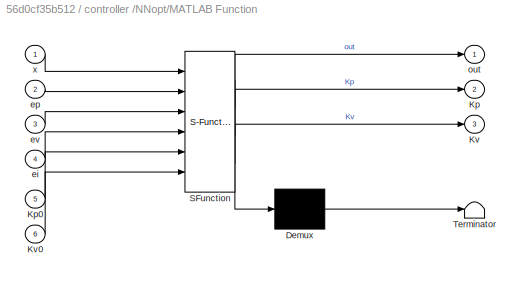
BLOCK [SubSystem] controller /NNopt/MATLAB Function
  ErrorFcn = Stateflow.Translate.translate
  PermitHierarchicalResolution = ExplicitOnly
  Ports = [6, 3]
  RequestExecContextInheritance = off
  SFBlockType = MATLAB Function
  TreatAsAtomicUnit = on
BLOCK [Demux] controller /NNopt/MATLAB Function/ Demux 
  Outputs = 1
  Ports = [1, 1]
BLOCK [S-Function] controller /NNopt/MATLAB Function/ SFunction 
  EnableBusSupport = on
  FunctionName = sf_sfun
  PortCounts = [6 4]
  Ports = [6, 4]
  Tag = Stateflow S-Function FtoTay 2
BLOCK [Terminator] controller /NNopt/MATLAB Function/ Terminator 
BLOCK [Outport] controller /NNopt/MATLAB Function/Kp
  IconDisplay = Port number
  Port = 2
BLOCK [Inport] controller /NNopt/MATLAB Function/Kp0
  IconDisplay = Port number
  Port = 5
BLOCK [Outport] controller /NNopt/MATLAB Function/Kv
  IconDisplay = Port number
  Port = 3
BLOCK [Inport] controller /NNopt/MATLAB Function/Kv0
  IconDisplay = Port number
  Port = 6
BLOCK [Inport] controller /NNopt/MATLAB Function/ei
  IconDisplay = Port number
  Port = 4
BLOCK [Inport] controller /NNopt/MATLAB Function/ep
  IconDisplay = Port number
  Port = 2
BLOCK [Inport] controller /NNopt/MATLAB Function/ev
  IconDisplay = Port number
  Port = 3
BLOCK [Outport] controller /NNopt/MATLAB Function/out
  IconDisplay = Port number
BLOCK [Inport] controller /NNopt/MATLAB Function/x
  IconDisplay = Port number
BLOCK [ToWorkspace] controller /NNopt/To Workspace
  FixptAsFi = on
  MaxDataPoints = inf
  Ports = [1]
  SampleTime = -1
  Save2DSignal = 3-D array (concatenate along third dimension)
  SaveFormat = Timeseries
  VariableName = Kp1
BLOCK [ToWorkspace] controller /NNopt/To Workspace1
  FixptAsFi = on
  MaxDataPoints = inf
  Ports = [1]
  SampleTime = -1
  Save2DSignal = 3-D array (concatenate along third dimension)
  SaveFormat = Timeseries
  VariableName = Kv1
BLOCK [Inport] controller /NNopt/ep
  IconDisplay = Port number
  Port = 2
BLOCK [Inport] controller /NNopt/ev
  IconDisplay = Port number
  Port = 3
BLOCK [Outport] controller /NNopt/out 
  IconDisplay = Port number
BLOCK [Inport] controller /NNopt/x
  IconDisplay = Port number
BLOCK [SubSystem] controller /NNopt1
  Ports = [3, 1]
  RequestExecContextInheritance = off
BLOCK [DataStoreMemory] controller /NNopt1/Data Store Memory
  DataStoreName = Kp
  InitialValue = 2.6*10^4
  ReadBeforeWriteMsg = warning
  WriteAfterReadMsg = warning
  WriteAfterWriteMsg = warning
BLOCK [DataStoreMemory] controller /NNopt1/Data Store Memory1
  DataStoreName = Kv
  InitialValue = 625
  ReadBeforeWriteMsg = warning
  WriteAfterReadMsg = warning
  WriteAfterWriteMsg = warning
BLOCK [DataStoreRead] controller /NNopt1/Data Store Read
  DataStoreName = Kp
  Ports = [0, 1]
BLOCK [DataStoreRead] controller /NNopt1/Data Store Read1
  DataStoreName = Kv
  Ports = [0, 1]
BLOCK [DataStoreWrite] controller /NNopt1/Data Store Write
  DataStoreName = Kp
  Ports = [1]
BLOCK [DataStoreWrite] controller /NNopt1/Data Store Write1
  DataStoreName = Kv
  Ports = [1]
BLOCK [Integrator] controller /NNopt1/Integrator
  Ports = [1, 1]
BLOCK [SubSystem] controller /NNopt1/MATLAB Function
  ErrorFcn = Stateflow.Translate.translate
  PermitHierarchicalResolution = ExplicitOnly
  Ports = [6, 3]
  RequestExecContextInheritance = off
  SFBlockType = MATLAB Function
  TreatAsAtomicUnit = on
BLOCK [Demux] controller /NNopt1/MATLAB Function/ Demux 
  Outputs = 1
  Ports = [1, 1]
BLOCK [S-Function] controller /NNopt1/MATLAB Function/ SFunction 
  EnableBusSupport = on
  FunctionName = sf_sfun
  PortCounts = [6 4]
  Ports = [6, 4]
  Tag = Stateflow S-Function FtoTay 5
BLOCK [Terminator] controller /NNopt1/MATLAB Function/ Terminator 
BLOCK [Outport] controller /NNopt1/MATLAB Function/Kp
  IconDisplay = Port number
  Port = 2
BLOCK [Inport] controller /NNopt1/MATLAB Function/Kp0
  IconDisplay = Port number
  Port = 5
BLOCK [Outport] controller /NNopt1/MATLAB Function/Kv
  IconDisplay = Port number
  Port = 3
BLOCK [Inport] controller /NNopt1/MATLAB Function/Kv0
  IconDisplay = Port number
  Port = 6
BLOCK [Inport] controller /NNopt1/MATLAB Function/ei
  IconDisplay = Port number
  Port = 4
BLOCK [Inport] controller /NNopt1/MATLAB Function/ep
  IconDisplay = Port number
  Port = 2
BLOCK [Inport] controller /NNopt1/MATLAB Function/ev
  IconDisplay = Port number
  Port = 3
BLOCK [Outport] controller /NNopt1/MATLAB Function/out
  IconDisplay = Port number
BLOCK [Inport] controller /NNopt1/MATLAB Function/x
  IconDisplay = Port number
BLOCK [ToWorkspace] controller /NNopt1/To Workspace
  FixptAsFi = on
  MaxDataPoints = inf
  Ports = [1]
  SampleTime = -1
  Save2DSignal = 3-D array (concatenate along third dimension)
  SaveFormat = Timeseries
  VariableName = Kp2
BLOCK [ToWorkspace] controller /NNopt1/To Workspace1
  FixptAsFi = on
  MaxDataPoints = inf
  Ports = [1]
  SampleTime = -1
  Save2DSignal = 3-D array (concatenate along third dimension)
  SaveFormat = Timeseries
  VariableName = Kv2
BLOCK [Inport] controller /NNopt1/ep
  IconDisplay = Port number
  Port = 2
BLOCK [Inport] controller /NNopt1/ev
  IconDisplay = Port number
  Port = 3
BLOCK [Outport] controller /NNopt1/out 
  IconDisplay = Port number
BLOCK [Inport] controller /NNopt1/x
  IconDisplay = Port number
BLOCK [SubSystem] controller /NNopt2
  Ports = [3, 1]
  RequestExecContextInheritance = off
BLOCK [DataStoreMemory] controller /NNopt2/Data Store Memory
  DataStoreName = Kp
  InitialValue = 2.6*10^4
  ReadBeforeWriteMsg = warning
  WriteAfterReadMsg = warning
  WriteAfterWriteMsg = warning
BLOCK [DataStoreMemory] controller /NNopt2/Data Store Memory1
  DataStoreName = Kv
  InitialValue = 625
  ReadBeforeWriteMsg = warning
  WriteAfterReadMsg = warning
  WriteAfterWriteMsg = warning
BLOCK [DataStoreRead] controller /NNopt2/Data Store Read
  DataStoreName = Kp
  Ports = [0, 1]
BLOCK [DataStoreRead] controller /NNopt2/Data Store Read1
  DataStoreName = Kv
  Ports = [0, 1]
BLOCK [DataStoreWrite] controller /NNopt2/Data Store Write
  DataStoreName = Kp
  Ports = [1]
BLOCK [DataStoreWrite] controller /NNopt2/Data Store Write1
  DataStoreName = Kv
  Ports = [1]
BLOCK [Integrator] controller /NNopt2/Integrator
  Ports = [1, 1]
BLOCK [SubSystem] controller /NNopt2/MATLAB Function
  ErrorFcn = Stateflow.Translate.translate
  PermitHierarchicalResolution = ExplicitOnly
  Ports = [6, 3]
  RequestExecContextInheritance = off
  SFBlockType = MATLAB Function
  TreatAsAtomicUnit = on
BLOCK [Demux] controller /NNopt2/MATLAB Function/ Demux 
  Outputs = 1
  Ports = [1, 1]
BLOCK [S-Function] controller /NNopt2/MATLAB Function/ SFunction 
  EnableBusSupport = on
  FunctionName = sf_sfun
  PortCounts = [6 4]
  Ports = [6, 4]
  Tag = Stateflow S-Function FtoTay 1
BLOCK [Terminator] controller /NNopt2/MATLAB Function/ Terminator 
BLOCK [Outport] controller /NNopt2/MATLAB Function/Kp
  IconDisplay = Port number
  Port = 2
BLOCK [Inport] controller /NNopt2/MATLAB Function/Kp0
  IconDisplay = Port number
  Port = 5
BLOCK [Outport] controller /NNopt2/MATLAB Function/Kv
  IconDisplay = Port number
  Port = 3
BLOCK [Inport] controller /NNopt2/MATLAB Function/Kv0
  IconDisplay = Port number
  Port = 6
BLOCK [Inport] controller /NNopt2/MATLAB Function/ei
  IconDisplay = Port number
  Port = 4
BLOCK [Inport] controller /NNopt2/MATLAB Function/ep
  IconDisplay = Port number
  Port = 2
BLOCK [Inport] controller /NNopt2/MATLAB Function/ev
  IconDisplay = Port number
  Port = 3
BLOCK [Outport] controller /NNopt2/MATLAB Function/out
  IconDisplay = Port number
BLOCK [Inport] controller /NNopt2/MATLAB Function/x
  IconDisplay = Port number
BLOCK [ToWorkspace] controller /NNopt2/To Workspace
  FixptAsFi = on
  MaxDataPoints = inf
  Ports = [1]
  SampleTime = -1
  Save2DSignal = 3-D array (concatenate along third dimension)
  SaveFormat = Timeseries
  VariableName = Kp3
BLOCK [ToWorkspace] controller /NNopt2/To Workspace1
  FixptAsFi = on
  MaxDataPoints = inf
  Ports = [1]
  SampleTime = -1
  Save2DSignal = 3-D array (concatenate along third dimension)
  SaveFormat = Timeseries
  VariableName = Kv3
BLOCK [Inport] controller /NNopt2/ep
  IconDisplay = Port number
  Port = 2
BLOCK [Inport] controller /NNopt2/ev
  IconDisplay = Port number
  Port = 3
BLOCK [Outport] controller /NNopt2/out 
  IconDisplay = Port number
BLOCK [Inport] controller /NNopt2/x
  IconDisplay = Port number
BLOCK [SubSystem] controller /NNopt3
  Ports = [3, 1]
  RequestExecContextInheritance = off
BLOCK [DataStoreMemory] controller /NNopt3/Data Store Memory
  DataStoreName = Kp
  InitialValue = 2.6*10^4
  ReadBeforeWriteMsg = warning
  WriteAfterReadMsg = warning
  WriteAfterWriteMsg = warning
BLOCK [DataStoreMemory] controller /NNopt3/Data Store Memory1
  DataStoreName = Kv
  InitialValue = 625
  ReadBeforeWriteMsg = warning
  WriteAfterReadMsg = warning
  WriteAfterWriteMsg = warning
BLOCK [DataStoreRead] controller /NNopt3/Data Store Read
  DataStoreName = Kp
  Ports = [0, 1]
BLOCK [DataStoreRead] controller /NNopt3/Data Store Read1
  DataStoreName = Kv
  Ports = [0, 1]
BLOCK [DataStoreWrite] controller /NNopt3/Data Store Write
  DataStoreName = Kp
  Ports = [1]
BLOCK [DataStoreWrite] controller /NNopt3/Data Store Write1
  DataStoreName = Kv
  Ports = [1]
BLOCK [Integrator] controller /NNopt3/Integrator
  Ports = [1, 1]
BLOCK [SubSystem] controller /NNopt3/MATLAB Function
  ErrorFcn = Stateflow.Translate.translate
  PermitHierarchicalResolution = ExplicitOnly
  Ports = [6, 3]
  RequestExecContextInheritance = off
  SFBlockType = MATLAB Function
  TreatAsAtomicUnit = on
BLOCK [Demux] controller /NNopt3/MATLAB Function/ Demux 
  Outputs = 1
  Ports = [1, 1]
BLOCK [S-Function] controller /NNopt3/MATLAB Function/ SFunction 
  EnableBusSupport = on
  FunctionName = sf_sfun
  PortCounts = [6 4]
  Ports = [6, 4]
  Tag = Stateflow S-Function FtoTay 3
BLOCK [Terminator] controller /NNopt3/MATLAB Function/ Terminator 
BLOCK [Outport] controller /NNopt3/MATLAB Function/Kp
  IconDisplay = Port number
  Port = 2
BLOCK [Inport] controller /NNopt3/MATLAB Function/Kp0
  IconDisplay = Port number
  Port = 5
BLOCK [Outport] controller /NNopt3/MATLAB Function/Kv
  IconDisplay = Port number
  Port = 3
BLOCK [Inport] controller /NNopt3/MATLAB Function/Kv0
  IconDisplay = Port number
  Port = 6
BLOCK [Inport] controller /NNopt3/MATLAB Function/ei
  IconDisplay = Port number
  Port = 4
BLOCK [Inport] controller /NNopt3/MATLAB Function/ep
  IconDisplay = Port number
  Port = 2
BLOCK [Inport] controller /NNopt3/MATLAB Function/ev
  IconDisplay = Port number
  Port = 3
BLOCK [Outport] controller /NNopt3/MATLAB Function/out
  IconDisplay = Port number
BLOCK [Inport] controller /NNopt3/MATLAB Function/x
  IconDisplay = Port number
BLOCK [ToWorkspace] controller /NNopt3/To Workspace
  FixptAsFi = on
  MaxDataPoints = inf
  Ports = [1]
  SampleTime = -1
  Save2DSignal = 3-D array (concatenate along third dimension)
  SaveFormat = Timeseries
  VariableName = Kp4
BLOCK [ToWorkspace] controller /NNopt3/To Workspace1
  FixptAsFi = on
  MaxDataPoints = inf
  Ports = [1]
  SampleTime = -1
  Save2DSignal = 3-D array (concatenate along third dimension)
  SaveFormat = Timeseries
  VariableName = Kv4
BLOCK [Inport] controller /NNopt3/ep
  IconDisplay = Port number
  Port = 2
BLOCK [Inport] controller /NNopt3/ev
  IconDisplay = Port number
  Port = 3
BLOCK [Outport] controller /NNopt3/out 
  IconDisplay = Port number
BLOCK [Inport] controller /NNopt3/x
  IconDisplay = Port number
BLOCK [Outport] controller /Out1
  IconDisplay = Port number
BLOCK [Saturate] controller /Saturation
  InputPortMap = u0
  LowerLimit = -1000
  Ports = [1, 1]
  UpperLimit = 1000
BLOCK [Sum] controller /Sum
  IconShape = round
  InputSameDT = off
  Inputs = |++
  OutDataTypeStr = Inherit: Inherit via internal rule
  Ports = [2, 1]
  SaturateOnIntegerOverflow = off
BLOCK [Inport] controller /dx
  IconDisplay = Port number
  Port = 4
BLOCK [Inport] controller /dx2
  IconDisplay = Port number
  Port = 5
BLOCK [Inport] controller /ep 
  IconDisplay = Port number
  Port = 2
BLOCK [Inport] controller /ev
  IconDisplay = Port number
  Port = 3
BLOCK [Inport] controller /x 
  IconDisplay = Port number
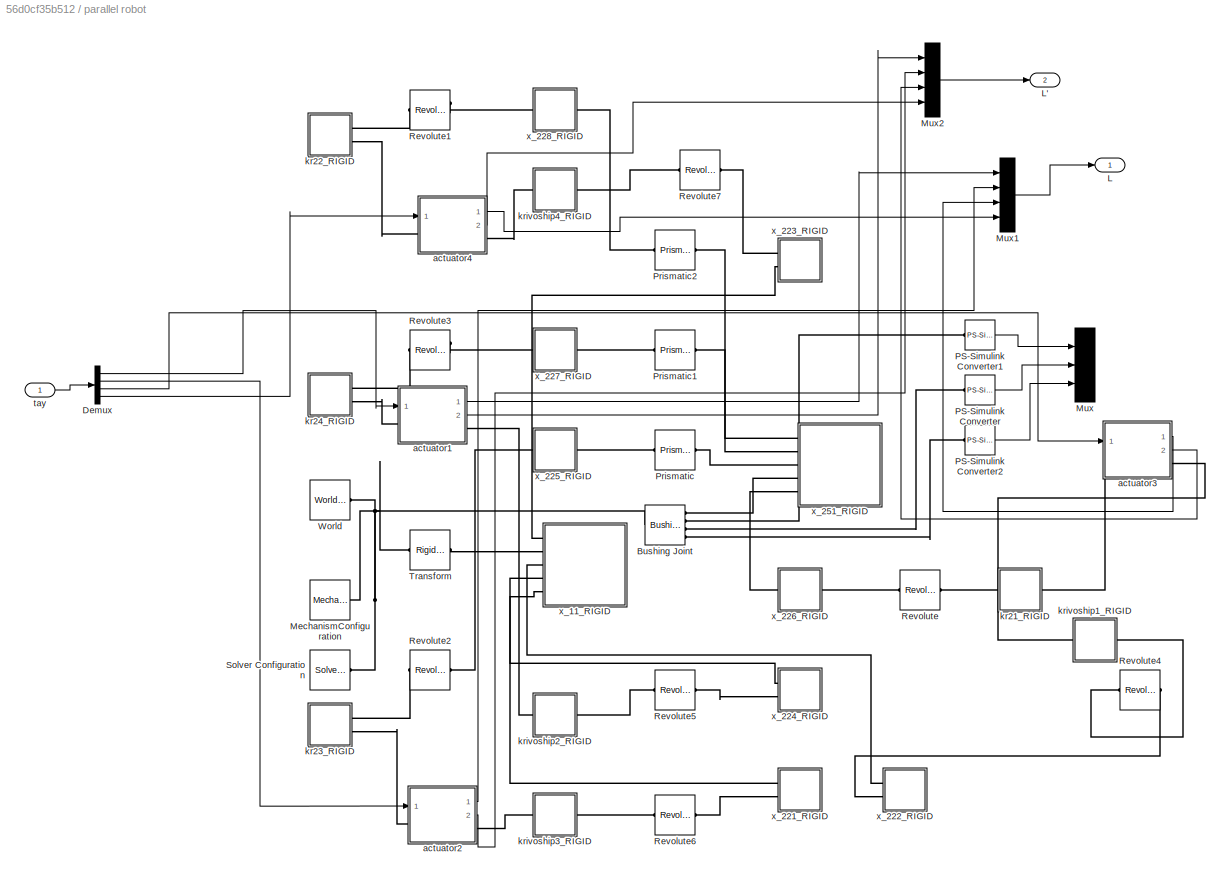
BLOCK [SubSystem] parallel robot
  Ports = [1, 2]
  RequestExecContextInheritance = off
BLOCK [Reference] parallel robot/Bushing Joint  REF=sm_lib/Joints/Bushing Joint
  BlockFunction = simmechanics.library.joints.bushing_joint
  ClassName = BushingJoint
  CompositeWrenchDir = FollowerOnBase
  CompositeWrenchFrame = BaseFrame
  LogSimulationData = off
  Ports = [0, 0, 0, 0, 0, 1, 4]
  PxDampingCoefficient = 0
  PxDampingCoefficientUnits = N/(m/s)
  PxEquilibriumPosition = 0
  PxEquilibriumPositionUnits = m
  PxMotionActuationMode = ComputedMotion
  PxPositionTargetPriority = High
  PxPositionTargetSpecify = off
  PxPositionTargetValue = 0
  PxPositionTargetValueUnits = m
  PxSenseAcceleration = off
  PxSensePosition = on
  PxSenseTorqueForce = off
  PxSenseVelocity = off
  PxSpringStiffness = 0
  PxSpringStiffnessUnits = N/m
  PxTorqueActuationMode = NoTorque
  PxVelocityTargetPriority = High
  PxVelocityTargetSpecify = off
  PxVelocityTargetValue = 0
  PxVelocityTargetValueUnits = m/s
  PyDampingCoefficient = 0
  PyDampingCoefficientUnits = N/(m/s)
  PyEquilibriumPosition = 0
  PyEquilibriumPositionUnits = m
  PyMotionActuationMode = ComputedMotion
  PyPositionTargetPriority = High
  PyPositionTargetSpecify = off
  PyPositionTargetValue = 0
  PyPositionTargetValueUnits = m
  PySenseAcceleration = off
  PySensePosition = on
  PySenseTorqueForce = off
  PySenseVelocity = off
  PySpringStiffness = 0
  PySpringStiffnessUnits = N/m
  PyTorqueActuationMode = NoTorque
  PyVelocityTargetPriority = High
  PyVelocityTargetSpecify = off
  PyVelocityTargetValue = 0
  PyVelocityTargetValueUnits = m/s
  PzDampingCoefficient = 0
  PzDampingCoefficientUnits = N/(m/s)
  PzEquilibriumPosition = 0
  PzEquilibriumPositionUnits = m
  PzMotionActuationMode = ComputedMotion
  PzPositionTargetPriority = High
  PzPositionTargetSpecify = off
  PzPositionTargetValue = 0
  PzPositionTargetValueUnits = m
  PzSenseAcceleration = off
  PzSensePosition = off
  PzSenseTorqueForce = off
  PzSenseVelocity = off
  PzSpringStiffness = 0
  PzSpringStiffnessUnits = N/m
  PzTorqueActuationMode = NoTorque
  PzVelocityTargetPriority = High
  PzVelocityTargetSpecify = off
  PzVelocityTargetValue = 0
  PzVelocityTargetValueUnits = m/s
  RxDampingCoefficient = 0
  RxDampingCoefficientUnits = N*m/(deg/s)
  RxEquilibriumPosition = 0
  RxEquilibriumPositionUnits = deg
  RxMotionActuationMode = ComputedMotion
  RxPositionTargetPriority = High
  RxPositionTargetSpecify = off
  RxPositionTargetValue = 0
  RxPositionTargetValueUnits = deg
  RxSenseAcceleration = off
  RxSensePosition = off
  RxSenseTorqueForce = off
  RxSenseVelocity = off
  RxSpringStiffness = 0
  RxSpringStiffnessUnits = N*m/deg
  RxTorqueActuationMode = NoTorque
  RxVelocityTargetPriority = High
  RxVelocityTargetSpecify = off
  RxVelocityTargetValue = 0
  RxVelocityTargetValueUnits = deg/s
  RyDampingCoefficient = 0
  RyDampingCoefficientUnits = N*m/(deg/s)
  RyEquilibriumPosition = 0
  RyEquilibriumPositionUnits = deg
  RyMotionActuationMode = ComputedMotion
  RyPositionTargetPriority = High
  RyPositionTargetSpecify = off
  RyPositionTargetValue = 0
  RyPositionTargetValueUnits = deg
  RySenseAcceleration = off
  RySensePosition = off
  RySenseTorqueForce = off
  RySenseVelocity = off
  RySpringStiffness = 0
  RySpringStiffnessUnits = N*m/deg
  RyTorqueActuationMode = NoTorque
  RyVelocityTargetPriority = High
  RyVelocityTargetSpecify = off
  RyVelocityTargetValue = 0
  RyVelocityTargetValueUnits = deg/s
  RzDampingCoefficient = 0
  RzDampingCoefficientUnits = N*m/(deg/s)
  RzEquilibriumPosition = 0
  RzEquilibriumPositionUnits = deg
  RzMotionActuationMode = ComputedMotion
  RzPositionTargetPriority = High
  RzPositionTargetSpecify = off
  RzPositionTargetValue = 0
  RzPositionTargetValueUnits = deg
  RzSenseAcceleration = off
  RzSensePosition = on
  RzSenseTorqueForce = off
  RzSenseVelocity = off
  RzSpringStiffness = 0
  RzSpringStiffnessUnits = N*m/deg
  RzTorqueActuationMode = NoTorque
  RzVelocityTargetPriority = High
  RzVelocityTargetSpecify = off
  RzVelocityTargetValue = 0
  RzVelocityTargetValueUnits = deg/s
  SenseConstraintForce = off
  SenseConstraintForceX = off
  SenseConstraintForceY = off
  SenseConstraintForceZ = off
  SenseConstraintTorque = off
  SenseConstraintTorqueX = off
  SenseConstraintTorqueY = off
  SenseConstraintTorqueZ = off
  SenseTotalForce = off
  SenseTotalForceX = off
  SenseTotalForceY = off
  SenseTotalForceZ = off
  SenseTotalTorque = off
  SenseTotalTorqueX = off
  SenseTotalTorqueY = off
  SenseTotalTorqueZ = off
  SourceBlock = sm_lib/Joints/Bushing Joint
  SourceType = Bushing Joint
BLOCK [Demux] parallel robot/Demux
  DisplayOption = bar
  Ports = [1, 4]
BLOCK [Outport] parallel robot/L
  IconDisplay = Port number
BLOCK [Outport] parallel robot/L'
  IconDisplay = Port number
  Port = 2
BLOCK [Reference] parallel robot/MechanismConfiguration  REF=sm_lib/Utilities/Mechanism
Configuration
  BlockFunction = simmechanics.library.utilities.mechanism_configuration
  ClassName = MechanismConfiguration
  GravityUnits = m/s^2
  GravityVector = [0 -9.81 0]
  LinearizationDelta = 0.001
  LogSimulationData = off
  Ports = [0, 0, 0, 0, 0, 0, 1]
  SourceBlock = sm_lib/Utilities/Mechanism\nConfiguration
  SourceType = Mechanism\nConfiguration
  UniformGravity = Constant
BLOCK [Mux] parallel robot/Mux
  DisplayOption = bar
  Inputs = 3
  Ports = [3, 1]
BLOCK [Mux] parallel robot/Mux1
  DisplayOption = bar
  Ports = [4, 1]
BLOCK [Mux] parallel robot/Mux2
  DisplayOption = bar
  Ports = [4, 1]
BLOCK [Reference] parallel robot/PS-Simulink Converter  REF=nesl_utility/PS-Simulink
Converter
  AffineConversion = off
  Frequencies = []
  LeftPortType = input
  PhysicalDomain = network_engine_domain
  Ports = [0, 1, 0, 0, 0, 1]
  PseudoPeriodic = off
  RightPortType = output
  SourceBlock = nesl_utility/PS-Simulink\nConverter
  SourceType = PS-Simulink\nConverter
  SubClassName = ps_output
  Unit = m
BLOCK [Reference] parallel robot/PS-Simulink Converter1  REF=nesl_utility/PS-Simulink
Converter
  AffineConversion = off
  Frequencies = []
  LeftPortType = input
  PhysicalDomain = network_engine_domain
  Ports = [0, 1, 0, 0, 0, 1]
  PseudoPeriodic = off
  RightPortType = output
  SourceBlock = nesl_utility/PS-Simulink\nConverter
  SourceType = PS-Simulink\nConverter
  SubClassName = ps_output
  Unit = m
BLOCK [Reference] parallel robot/PS-Simulink Converter2  REF=nesl_utility/PS-Simulink
Converter
  AffineConversion = off
  Frequencies = []
  LeftPortType = input
  PhysicalDomain = network_engine_domain
  Ports = [0, 1, 0, 0, 0, 1]
  PseudoPeriodic = off
  RightPortType = output
  SourceBlock = nesl_utility/PS-Simulink\nConverter
  SourceType = PS-Simulink\nConverter
  SubClassName = ps_output
  Unit = rad
BLOCK [Reference] parallel robot/Prismatic  REF=sm_lib/Joints/Prismatic
Joint
  BlockFunction = simmechanics.library.joints.prismatic_joint
  ClassName = PrismaticJoint
  CompositeWrenchDir = FollowerOnBase
  CompositeWrenchFrame = BaseFrame
  DampingCoefficient = 0
  DampingCoefficientUnits = s*N/m
  EquilibriumPosition = 0
  EquilibriumPositionUnits = m
  LogSimulationData = off
  MotionActuationMode = ComputedMotion
  Ports = [0, 0, 0, 0, 0, 1, 1]
  PositionTargetPriority = Low
  PositionTargetSpecify = on
  PositionTargetValue = 0
  PositionTargetValueUnits = m
  SenseAcceleration = off
  SenseConstraintForce = off
  SenseConstraintForceX = off
  SenseConstraintForceY = off
  SenseConstraintForceZ = off
  SenseConstraintTorque = off
  SenseConstraintTorqueX = off
  SenseConstraintTorqueY = off
  SenseConstraintTorqueZ = off
  SensePosition = off
  SenseTorqueForce = off
  SenseTotalForce = off
  SenseTotalForceX = off
  SenseTotalForceY = off
  SenseTotalForceZ = off
  SenseTotalTorque = off
  SenseTotalTorqueX = off
  SenseTotalTorqueY = off
  SenseTotalTorqueZ = off
  SenseVelocity = off
  SourceBlock = sm_lib/Joints/Prismatic\nJoint
  SourceType = Prismatic\nJoint
  SpringStiffness = 0
  SpringStiffnessUnits = N/m
  TorqueActuationMode = NoTorque
  VelocityTargetPriority = High
  VelocityTargetSpecify = off
  VelocityTargetValue = 0
  VelocityTargetValueUnits = m/s
BLOCK [Reference] parallel robot/Prismatic1  REF=sm_lib/Joints/Prismatic
Joint
  BlockFunction = simmechanics.library.joints.prismatic_joint
  ClassName = PrismaticJoint
  CompositeWrenchDir = FollowerOnBase
  CompositeWrenchFrame = BaseFrame
  DampingCoefficient = 0
  DampingCoefficientUnits = s*N/m
  EquilibriumPosition = 0
  EquilibriumPositionUnits = m
  LogSimulationData = off
  MotionActuationMode = ComputedMotion
  Ports = [0, 0, 0, 0, 0, 1, 1]
  PositionTargetPriority = Low
  PositionTargetSpecify = on
  PositionTargetValue = 0
  PositionTargetValueUnits = m
  SenseAcceleration = off
  SenseConstraintForce = off
  SenseConstraintForceX = off
  SenseConstraintForceY = off
  SenseConstraintForceZ = off
  SenseConstraintTorque = off
  SenseConstraintTorqueX = off
  SenseConstraintTorqueY = off
  SenseConstraintTorqueZ = off
  SensePosition = off
  SenseTorqueForce = off
  SenseTotalForce = off
  SenseTotalForceX = off
  SenseTotalForceY = off
  SenseTotalForceZ = off
  SenseTotalTorque = off
  SenseTotalTorqueX = off
  SenseTotalTorqueY = off
  SenseTotalTorqueZ = off
  SenseVelocity = off
  SourceBlock = sm_lib/Joints/Prismatic\nJoint
  SourceType = Prismatic\nJoint
  SpringStiffness = 0
  SpringStiffnessUnits = N/m
  TorqueActuationMode = NoTorque
  VelocityTargetPriority = High
  VelocityTargetSpecify = off
  VelocityTargetValue = 0
  VelocityTargetValueUnits = m/s
BLOCK [Reference] parallel robot/Prismatic2  REF=sm_lib/Joints/Prismatic
Joint
  BlockFunction = simmechanics.library.joints.prismatic_joint
  ClassName = PrismaticJoint
  CompositeWrenchDir = FollowerOnBase
  CompositeWrenchFrame = BaseFrame
  DampingCoefficient = 0
  DampingCoefficientUnits = s*N/m
  EquilibriumPosition = 0
  EquilibriumPositionUnits = m
  LogSimulationData = off
  MotionActuationMode = ComputedMotion
  Ports = [0, 0, 0, 0, 0, 1, 1]
  PositionTargetPriority = Low
  PositionTargetSpecify = on
  PositionTargetValue = 0
  PositionTargetValueUnits = m
  SenseAcceleration = off
  SenseConstraintForce = off
  SenseConstraintForceX = off
  SenseConstraintForceY = off
  SenseConstraintForceZ = off
  SenseConstraintTorque = off
  SenseConstraintTorqueX = off
  SenseConstraintTorqueY = off
  SenseConstraintTorqueZ = off
  SensePosition = off
  SenseTorqueForce = off
  SenseTotalForce = off
  SenseTotalForceX = off
  SenseTotalForceY = off
  SenseTotalForceZ = off
  SenseTotalTorque = off
  SenseTotalTorqueX = off
  SenseTotalTorqueY = off
  SenseTotalTorqueZ = off
  SenseVelocity = off
  SourceBlock = sm_lib/Joints/Prismatic\nJoint
  SourceType = Prismatic\nJoint
  SpringStiffness = 0
  SpringStiffnessUnits = N/m
  TorqueActuationMode = NoTorque
  VelocityTargetPriority = High
  VelocityTargetSpecify = off
  VelocityTargetValue = 0
  VelocityTargetValueUnits = m/s
BLOCK [Reference] parallel robot/Revolute  REF=sm_lib/Joints/Revolute Joint
  BlockFunction = simmechanics.library.joints.revolute_joint
  ClassName = RevoluteJoint
  CompositeWrenchDir = FollowerOnBase
  CompositeWrenchFrame = BaseFrame
  DampingCoefficient = 0
  DampingCoefficientUnits = m*s*N/rad
  EquilibriumPosition = 0
  EquilibriumPositionUnits = rad
  LogSimulationData = off
  MotionActuationMode = ComputedMotion
  Ports = [0, 0, 0, 0, 0, 1, 1]
  PositionTargetPriority = Low
  PositionTargetSpecify = on
  PositionTargetValue = 85.580927101597311
  PositionTargetValueUnits = deg
  SenseAcceleration = off
  SenseConstraintForce = off
  SenseConstraintForceX = off
  SenseConstraintForceY = off
  SenseConstraintForceZ = off
  SenseConstraintTorque = off
  SenseConstraintTorqueX = off
  SenseConstraintTorqueY = off
  SenseConstraintTorqueZ = off
  SensePosition = off
  SenseTorqueForce = off
  SenseTotalForce = off
  SenseTotalForceX = off
  SenseTotalForceY = off
  SenseTotalForceZ = off
  SenseTotalTorque = off
  SenseTotalTorqueX = off
  SenseTotalTorqueY = off
  SenseTotalTorqueZ = off
  SenseVelocity = off
  SourceBlock = sm_lib/Joints/Revolute Joint
  SourceType = Revolute Joint
  SpringStiffness = 0
  SpringStiffnessUnits = m*N/rad
  TorqueActuationMode = NoTorque
  VelocityTargetPriority = High
  VelocityTargetSpecify = off
  VelocityTargetValue = 0
  VelocityTargetValueUnits = deg/s
BLOCK [Reference] parallel robot/Revolute1  REF=sm_lib/Joints/Revolute Joint
  BlockFunction = simmechanics.library.joints.revolute_joint
  ClassName = RevoluteJoint
  CompositeWrenchDir = FollowerOnBase
  CompositeWrenchFrame = BaseFrame
  DampingCoefficient = 0
  DampingCoefficientUnits = m*s*N/rad
  EquilibriumPosition = 0
  EquilibriumPositionUnits = rad
  LogSimulationData = off
  MotionActuationMode = ComputedMotion
  Ports = [0, 0, 0, 0, 0, 1, 2]
  PositionTargetPriority = Low
  PositionTargetSpecify = off
  PositionTargetValue = 94.419072898403655
  PositionTargetValueUnits = deg
  SenseAcceleration = off
  SenseConstraintForce = off
  SenseConstraintForceX = off
  SenseConstraintForceY = off
  SenseConstraintForceZ = off
  SenseConstraintTorque = off
  SenseConstraintTorqueX = off
  SenseConstraintTorqueY = off
  SenseConstraintTorqueZ = off
  SensePosition = off
  SenseTorqueForce = off
  SenseTotalForce = on
  SenseTotalForceX = off
  SenseTotalForceY = off
  SenseTotalForceZ = off
  SenseTotalTorque = off
  SenseTotalTorqueX = off
  SenseTotalTorqueY = off
  SenseTotalTorqueZ = off
  SenseVelocity = off
  SourceBlock = sm_lib/Joints/Revolute Joint
  SourceType = Revolute Joint
  SpringStiffness = 0
  SpringStiffnessUnits = m*N/rad
  TorqueActuationMode = NoTorque
  VelocityTargetPriority = High
  VelocityTargetSpecify = off
  VelocityTargetValue = 0
  VelocityTargetValueUnits = deg/s
BLOCK [Reference] parallel robot/Revolute2  REF=sm_lib/Joints/Revolute Joint
  BlockFunction = simmechanics.library.joints.revolute_joint
  ClassName = RevoluteJoint
  CompositeWrenchDir = FollowerOnBase
  CompositeWrenchFrame = BaseFrame
  DampingCoefficient = 0
  DampingCoefficientUnits = m*s*N/rad
  EquilibriumPosition = 0
  EquilibriumPositionUnits = rad
  LogSimulationData = off
  MotionActuationMode = ComputedMotion
  Ports = [0, 0, 0, 0, 0, 1, 1]
  PositionTargetPriority = Low
  PositionTargetSpecify = off
  PositionTargetValue = -62.54528730584326
  PositionTargetValueUnits = deg
  SenseAcceleration = off
  SenseConstraintForce = off
  SenseConstraintForceX = off
  SenseConstraintForceY = off
  SenseConstraintForceZ = off
  SenseConstraintTorque = off
  SenseConstraintTorqueX = off
  SenseConstraintTorqueY = off
  SenseConstraintTorqueZ = off
  SensePosition = off
  SenseTorqueForce = off
  SenseTotalForce = off
  SenseTotalForceX = off
  SenseTotalForceY = off
  SenseTotalForceZ = off
  SenseTotalTorque = off
  SenseTotalTorqueX = off
  SenseTotalTorqueY = off
  SenseTotalTorqueZ = off
  SenseVelocity = off
  SourceBlock = sm_lib/Joints/Revolute Joint
  SourceType = Revolute Joint
  SpringStiffness = 0
  SpringStiffnessUnits = m*N/rad
  TorqueActuationMode = NoTorque
  VelocityTargetPriority = High
  VelocityTargetSpecify = off
  VelocityTargetValue = 0
  VelocityTargetValueUnits = deg/s
BLOCK [Reference] parallel robot/Revolute3  REF=sm_lib/Joints/Revolute Joint
  BlockFunction = simmechanics.library.joints.revolute_joint
  ClassName = RevoluteJoint
  CompositeWrenchDir = FollowerOnBase
  CompositeWrenchFrame = BaseFrame
  DampingCoefficient = 0
  DampingCoefficientUnits = m*s*N/rad
  EquilibriumPosition = 0
  EquilibriumPositionUnits = rad
  LogSimulationData = off
  MotionActuationMode = ComputedMotion
  Ports = [0, 0, 0, 0, 0, 1, 2]
  PositionTargetPriority = Low
  PositionTargetSpecify = off
  PositionTargetValue = 117.45471269420862
  PositionTargetValueUnits = deg
  SenseAcceleration = off
  SenseConstraintForce = off
  SenseConstraintForceX = off
  SenseConstraintForceY = off
  SenseConstraintForceZ = off
  SenseConstraintTorque = off
  SenseConstraintTorqueX = off
  SenseConstraintTorqueY = off
  SenseConstraintTorqueZ = off
  SensePosition = off
  SenseTorqueForce = off
  SenseTotalForce = on
  SenseTotalForceX = off
  SenseTotalForceY = off
  SenseTotalForceZ = off
  SenseTotalTorque = off
  SenseTotalTorqueX = off
  SenseTotalTorqueY = off
  SenseTotalTorqueZ = off
  SenseVelocity = off
  SourceBlock = sm_lib/Joints/Revolute Joint
  SourceType = Revolute Joint
  SpringStiffness = 0
  SpringStiffnessUnits = m*N/rad
  TorqueActuationMode = NoTorque
  VelocityTargetPriority = High
  VelocityTargetSpecify = off
  VelocityTargetValue = 0
  VelocityTargetValueUnits = deg/s
BLOCK [Reference] parallel robot/Revolute4  REF=sm_lib/Joints/Revolute Joint
  BlockFunction = simmechanics.library.joints.revolute_joint
  ClassName = RevoluteJoint
  CompositeWrenchDir = FollowerOnBase
  CompositeWrenchFrame = BaseFrame
  DampingCoefficient = 0
  DampingCoefficientUnits = m*s*N/rad
  EquilibriumPosition = 0
  EquilibriumPositionUnits = rad
  LogSimulationData = off
  MotionActuationMode = ComputedMotion
  Ports = [0, 0, 0, 0, 0, 1, 1]
  PositionTargetPriority = Low
  PositionTargetSpecify = on
  PositionTargetValue = -85.580927101597197
  PositionTargetValueUnits = deg
  SenseAcceleration = off
  SenseConstraintForce = off
  SenseConstraintForceX = off
  SenseConstraintForceY = off
  SenseConstraintForceZ = off
  SenseConstraintTorque = off
  SenseConstraintTorqueX = off
  SenseConstraintTorqueY = off
  SenseConstraintTorqueZ = off
  SensePosition = off
  SenseTorqueForce = off
  SenseTotalForce = off
  SenseTotalForceX = off
  SenseTotalForceY = off
  SenseTotalForceZ = off
  SenseTotalTorque = off
  SenseTotalTorqueX = off
  SenseTotalTorqueY = off
  SenseTotalTorqueZ = off
  SenseVelocity = off
  SourceBlock = sm_lib/Joints/Revolute Joint
  SourceType = Revolute Joint
  SpringStiffness = 0
  SpringStiffnessUnits = m*N/rad
  TorqueActuationMode = NoTorque
  VelocityTargetPriority = High
  VelocityTargetSpecify = off
  VelocityTargetValue = 0
  VelocityTargetValueUnits = deg/s
BLOCK [Reference] parallel robot/Revolute5  REF=sm_lib/Joints/Revolute Joint
  BlockFunction = simmechanics.library.joints.revolute_joint
  ClassName = RevoluteJoint
  CompositeWrenchDir = FollowerOnBase
  CompositeWrenchFrame = BaseFrame
  DampingCoefficient = 0
  DampingCoefficientUnits = m*s*N/rad
  EquilibriumPosition = 0
  EquilibriumPositionUnits = rad
  LogSimulationData = off
  MotionActuationMode = ComputedMotion
  Ports = [0, 0, 0, 0, 0, 1, 1]
  PositionTargetPriority = Low
  PositionTargetSpecify = on
  PositionTargetValue = -90.329101950043395
  PositionTargetValueUnits = deg
  SenseAcceleration = off
  SenseConstraintForce = off
  SenseConstraintForceX = off
  SenseConstraintForceY = off
  SenseConstraintForceZ = off
  SenseConstraintTorque = off
  SenseConstraintTorqueX = off
  SenseConstraintTorqueY = off
  SenseConstraintTorqueZ = off
  SensePosition = off
  SenseTorqueForce = off
  SenseTotalForce = off
  SenseTotalForceX = off
  SenseTotalForceY = off
  SenseTotalForceZ = off
  SenseTotalTorque = off
  SenseTotalTorqueX = off
  SenseTotalTorqueY = off
  SenseTotalTorqueZ = off
  SenseVelocity = off
  SourceBlock = sm_lib/Joints/Revolute Joint
  SourceType = Revolute Joint
  SpringStiffness = 0
  SpringStiffnessUnits = m*N/rad
  TorqueActuationMode = NoTorque
  VelocityTargetPriority = High
  VelocityTargetSpecify = off
  VelocityTargetValue = 0
  VelocityTargetValueUnits = deg/s
BLOCK [Reference] parallel robot/Revolute6  REF=sm_lib/Joints/Revolute Joint
  BlockFunction = simmechanics.library.joints.revolute_joint
  ClassName = RevoluteJoint
  CompositeWrenchDir = FollowerOnBase
  CompositeWrenchFrame = BaseFrame
  DampingCoefficient = 0
  DampingCoefficientUnits = m*s*N/rad
  EquilibriumPosition = 0
  EquilibriumPositionUnits = rad
  LogSimulationData = off
  MotionActuationMode = ComputedMotion
  Ports = [0, 0, 0, 0, 0, 1, 1]
  PositionTargetPriority = Low
  PositionTargetSpecify = on
  PositionTargetValue = 90.329101950043011
  PositionTargetValueUnits = deg
  SenseAcceleration = off
  SenseConstraintForce = off
  SenseConstraintForceX = off
  SenseConstraintForceY = off
  SenseConstraintForceZ = off
  SenseConstraintTorque = off
  SenseConstraintTorqueX = off
  SenseConstraintTorqueY = off
  SenseConstraintTorqueZ = off
  SensePosition = off
  SenseTorqueForce = off
  SenseTotalForce = off
  SenseTotalForceX = off
  SenseTotalForceY = off
  SenseTotalForceZ = off
  SenseTotalTorque = off
  SenseTotalTorqueX = off
  SenseTotalTorqueY = off
  SenseTotalTorqueZ = off
  SenseVelocity = off
  SourceBlock = sm_lib/Joints/Revolute Joint
  SourceType = Revolute Joint
  SpringStiffness = 0
  SpringStiffnessUnits = m*N/rad
  TorqueActuationMode = NoTorque
  VelocityTargetPriority = High
  VelocityTargetSpecify = off
  VelocityTargetValue = 0
  VelocityTargetValueUnits = deg/s
BLOCK [Reference] parallel robot/Revolute7  REF=sm_lib/Joints/Revolute Joint
  BlockFunction = simmechanics.library.joints.revolute_joint
  ClassName = RevoluteJoint
  CompositeWrenchDir = FollowerOnBase
  CompositeWrenchFrame = BaseFrame
  DampingCoefficient = 0
  DampingCoefficientUnits = m*s*N/rad
  EquilibriumPosition = 0
  EquilibriumPositionUnits = rad
  LogSimulationData = off
  MotionActuationMode = ComputedMotion
  Ports = [0, 0, 0, 0, 0, 1, 1]
  PositionTargetPriority = Low
  PositionTargetSpecify = on
  PositionTargetValue = 94.41907289840303
  PositionTargetValueUnits = deg
  SenseAcceleration = off
  SenseConstraintForce = off
  SenseConstraintForceX = off
  SenseConstraintForceY = off
  SenseConstraintForceZ = off
  SenseConstraintTorque = off
  SenseConstraintTorqueX = off
  SenseConstraintTorqueY = off
  SenseConstraintTorqueZ = off
  SensePosition = off
  SenseTorqueForce = off
  SenseTotalForce = off
  SenseTotalForceX = off
  SenseTotalForceY = off
  SenseTotalForceZ = off
  SenseTotalTorque = off
  SenseTotalTorqueX = off
  SenseTotalTorqueY = off
  SenseTotalTorqueZ = off
  SenseVelocity = off
  SourceBlock = sm_lib/Joints/Revolute Joint
  SourceType = Revolute Joint
  SpringStiffness = 0
  SpringStiffnessUnits = m*N/rad
  TorqueActuationMode = NoTorque
  VelocityTargetPriority = High
  VelocityTargetSpecify = off
  VelocityTargetValue = 0
  VelocityTargetValueUnits = deg/s
BLOCK [Reference] parallel robot/Solver Configuration  REF=nesl_utility/Solver
Configuration
  AbsTol = 1e-06
  Accelerate = off
  AutomaticFiltering = on
  DelaysMemoryBudget = 1024
  DoDC = on
  DoFixedCost = off
  EnableSwitchedLinearOptims = on
  FilteringTimeConstant = 0.00001
  FrequencyDomain = off
  Harmonics = []
  LeftPortType = input
  LinearAlgebra = Sparse
  LocalSolverChoice = NE_BACKWARD_EULER_ADVANCER
  LocalSolverSampleTime = 0.001
  MaxModeIter = 2
  MaxNonlinIter = 3
  MinStep = 1e-09
  NumHomotopyIterations = 100
  PhysicalDomain = network_engine_domain
  Ports = [0, 0, 0, 0, 0, 0, 1]
  Profile = off
  RelTol = 0.001
  ResidualTolerance = 1e-03
  RevertToSquareIcSolve = off
  RightPortType = generic
  SimulateNoise = off
  SourceBlock = nesl_utility/Solver\nConfiguration
  SourceType = Solver\nConfiguration
  SubClassName = solver
  ToWorkspace = off
  Tones = []
  UseCCode = off
  UseLocalSampling = off
  UseLocalSolver = off
BLOCK [Reference] parallel robot/Transform  REF=sm_lib/Frames and
Transforms/Rigid
Transform
  BaseAlignAxisA = +Y
  BaseAlignAxisB = +Z
  BlockFunction = simmechanics.library.frames_transforms.rigid_transform
  ClassName = RigidTransform
  FollAlignAxisA = +X
  FollAlignAxisB = +Y
  LogSimulationData = off
  Ports = [0, 0, 0, 0, 0, 1, 1]
  RotationAngle = 0.0
  RotationAngleUnits = deg
  RotationArbitraryAxis = [0 0 1]
  RotationMatrix = [1 0 0; 0 1 0; 0 0 1]
  RotationMethod = None
  RotationStandardAxis = +Z
  SourceBlock = sm_lib/Frames and\nTransforms/Rigid\nTransform
  SourceType = Rigid\nTransform
  TranslationCartesianOffset = [0 0 0]
  TranslationLengthUnit = m
  TranslationMethod = None
  TranslationROffset = 0
  TranslationROffsetUnits = m
  TranslationStandardAxis = +Z
  TranslationStandardOffset = 0
  TranslationThetaOffset = 0
  TranslationThetaOffsetUnits = deg
  TranslationZOffset = 0
  TranslationZOffsetUnits = m
BLOCK [Reference] parallel robot/World  REF=sm_lib/Frames and
Transforms/World Frame
  BlockFunction = simmechanics.library.frames_transforms.world_frame
  ClassName = WorldFrame
  LogSimulationData = off
  Ports = [0, 0, 0, 0, 0, 0, 1]
  SourceBlock = sm_lib/Frames and\nTransforms/World Frame
  SourceType = World Frame
BLOCK [SubSystem] parallel robot/actuator1
  Ports = [1, 2, 0, 0, 0, 1, 1]
  RequestExecContextInheritance = off
BLOCK [Reference] parallel robot/actuator1/Cylindrical1  REF=sm_lib/Joints/Cylindrical
Joint
  BlockFunction = simmechanics.library.joints.cylindrical_joint
  ClassName = CylindricalJoint
  CompositeWrenchDir = FollowerOnBase
  CompositeWrenchFrame = BaseFrame
  LogSimulationData = off
  Ports = [0, 0, 0, 0, 0, 2, 3]
  PzDampingCoefficient = 0
  PzDampingCoefficientUnits = s*N/m
  PzEquilibriumPosition = 0
  PzEquilibriumPositionUnits = m
  PzMotionActuationMode = ComputedMotion
  PzPositionTargetPriority = High
  PzPositionTargetSpecify = off
  PzPositionTargetValue = 0
  PzPositionTargetValueUnits = m
  PzSenseAcceleration = off
  PzSensePosition = on
  PzSenseTorqueForce = off
  PzSenseVelocity = on
  PzSpringStiffness = 10000
  PzSpringStiffnessUnits = N/m
  PzTorqueActuationMode = InputTorque
  PzVelocityTargetPriority = High
  PzVelocityTargetSpecify = off
  PzVelocityTargetValue = 0
  PzVelocityTargetValueUnits = m/s
  RzDampingCoefficient = 0
  RzDampingCoefficientUnits = m*s*N/rad
  RzEquilibriumPosition = 0
  RzEquilibriumPositionUnits = rad
  RzMotionActuationMode = ComputedMotion
  RzPositionTargetPriority = High
  RzPositionTargetSpecify = off
  RzPositionTargetValue = 0
  RzPositionTargetValueUnits = deg
  RzSenseAcceleration = off
  RzSensePosition = off
  RzSenseTorqueForce = off
  RzSenseVelocity = off
  RzSpringStiffness = 10
  RzSpringStiffnessUnits = m*N/rad
  RzTorqueActuationMode = NoTorque
  RzVelocityTargetPriority = High
  RzVelocityTargetSpecify = off
  RzVelocityTargetValue = 0
  RzVelocityTargetValueUnits = deg/s
  SenseConstraintForce = off
  SenseConstraintForceX = off
  SenseConstraintForceY = off
  SenseConstraintForceZ = off
  SenseConstraintTorque = off
  SenseConstraintTorqueX = off
  SenseConstraintTorqueY = off
  SenseConstraintTorqueZ = off
  SenseTotalForce = off
  SenseTotalForceX = off
  SenseTotalForceY = off
  SenseTotalForceZ = off
  SenseTotalTorque = off
  SenseTotalTorqueX = off
  SenseTotalTorqueY = off
  SenseTotalTorqueZ = off
  SourceBlock = sm_lib/Joints/Cylindrical\nJoint
  SourceType = Cylindrical\nJoint
BLOCK [PMIOPort] parallel robot/actuator1/In
  Port = 1
  Side = Left
BLOCK [Inport] parallel robot/actuator1/In1
  IconDisplay = Port number
BLOCK [PMIOPort] parallel robot/actuator1/OUT
  Port = 2
  Side = Right
BLOCK [Outport] parallel robot/actuator1/Out1
  IconDisplay = Port number
BLOCK [Outport] parallel robot/actuator1/Out2
  IconDisplay = Port number
  Port = 2
BLOCK [Reference] parallel robot/actuator1/PS-Simulink Converter  REF=nesl_utility/PS-Simulink
Converter
  AffineConversion = off
  Frequencies = []
  LeftPortType = input
  PhysicalDomain = network_engine_domain
  Ports = [0, 1, 0, 0, 0, 1]
  PseudoPeriodic = off
  RightPortType = output
  SourceBlock = nesl_utility/PS-Simulink\nConverter
  SourceType = PS-Simulink\nConverter
  SubClassName = ps_output
  Unit = m
BLOCK [Reference] parallel robot/actuator1/PS-Simulink Converter1  REF=nesl_utility/PS-Simulink
Converter
  AffineConversion = off
  Frequencies = []
  LeftPortType = input
  PhysicalDomain = network_engine_domain
  Ports = [0, 1, 0, 0, 0, 1]
  PseudoPeriodic = off
  RightPortType = output
  SourceBlock = nesl_utility/PS-Simulink\nConverter
  SourceType = PS-Simulink\nConverter
  SubClassName = ps_output
  Unit = m/s
BLOCK [Reference] parallel robot/actuator1/Simulink-PS Converter  REF=nesl_utility/Simulink-PS
Converter
  AffineConversion = off
  Frequencies = []
  InputFilterTimeConstant = 0.00001
  InputFiltering = on
  LeftPortType = input
  NoiseDistribution = none
  NoiseParameters = []
  PhysicalDomain = network_engine_domain
  Ports = [1, 0, 0, 0, 0, 0, 1]
  PseudoPeriodic = off
  RightPortType = output
  SimscapeFilterOrder = 1
  SourceBlock = nesl_utility/Simulink-PS\nConverter
  SourceType = Simulink-PS\nConverter
  SubClassName = ps_input
  UdotUserProvided = 1
  Unit = N
BLOCK [SubSystem] parallel robot/actuator2
  Ports = [1, 2, 0, 0, 0, 1, 1]
  RequestExecContextInheritance = off
BLOCK [Reference] parallel robot/actuator2/Cylindrical1  REF=sm_lib/Joints/Cylindrical
Joint
  BlockFunction = simmechanics.library.joints.cylindrical_joint
  ClassName = CylindricalJoint
  CompositeWrenchDir = FollowerOnBase
  CompositeWrenchFrame = BaseFrame
  LogSimulationData = off
  Ports = [0, 0, 0, 0, 0, 2, 3]
  PzDampingCoefficient = 0
  PzDampingCoefficientUnits = s*N/m
  PzEquilibriumPosition = 0
  PzEquilibriumPositionUnits = m
  PzMotionActuationMode = ComputedMotion
  PzPositionTargetPriority = High
  PzPositionTargetSpecify = off
  PzPositionTargetValue = 0
  PzPositionTargetValueUnits = m
  PzSenseAcceleration = off
  PzSensePosition = on
  PzSenseTorqueForce = off
  PzSenseVelocity = on
  PzSpringStiffness = 10000
  PzSpringStiffnessUnits = N/m
  PzTorqueActuationMode = InputTorque
  PzVelocityTargetPriority = High
  PzVelocityTargetSpecify = off
  PzVelocityTargetValue = 0
  PzVelocityTargetValueUnits = m/s
  RzDampingCoefficient = 0
  RzDampingCoefficientUnits = m*s*N/rad
  RzEquilibriumPosition = 0
  RzEquilibriumPositionUnits = rad
  RzMotionActuationMode = ComputedMotion
  RzPositionTargetPriority = High
  RzPositionTargetSpecify = off
  RzPositionTargetValue = 0
  RzPositionTargetValueUnits = deg
  RzSenseAcceleration = off
  RzSensePosition = off
  RzSenseTorqueForce = off
  RzSenseVelocity = off
  RzSpringStiffness = 10
  RzSpringStiffnessUnits = m*N/rad
  RzTorqueActuationMode = NoTorque
  RzVelocityTargetPriority = High
  RzVelocityTargetSpecify = off
  RzVelocityTargetValue = 0
  RzVelocityTargetValueUnits = deg/s
  SenseConstraintForce = off
  SenseConstraintForceX = off
  SenseConstraintForceY = off
  SenseConstraintForceZ = off
  SenseConstraintTorque = off
  SenseConstraintTorqueX = off
  SenseConstraintTorqueY = off
  SenseConstraintTorqueZ = off
  SenseTotalForce = off
  SenseTotalForceX = off
  SenseTotalForceY = off
  SenseTotalForceZ = off
  SenseTotalTorque = off
  SenseTotalTorqueX = off
  SenseTotalTorqueY = off
  SenseTotalTorqueZ = off
  SourceBlock = sm_lib/Joints/Cylindrical\nJoint
  SourceType = Cylindrical\nJoint
BLOCK [PMIOPort] parallel robot/actuator2/In
  Port = 1
  Side = Left
BLOCK [Inport] parallel robot/actuator2/In1
  IconDisplay = Port number
BLOCK [PMIOPort] parallel robot/actuator2/OUT
  Port = 2
  Side = Right
BLOCK [Outport] parallel robot/actuator2/Out1
  IconDisplay = Port number
BLOCK [Outport] parallel robot/actuator2/Out2
  IconDisplay = Port number
  Port = 2
BLOCK [Reference] parallel robot/actuator2/PS-Simulink Converter  REF=nesl_utility/PS-Simulink
Converter
  AffineConversion = off
  Frequencies = []
  LeftPortType = input
  PhysicalDomain = network_engine_domain
  Ports = [0, 1, 0, 0, 0, 1]
  PseudoPeriodic = off
  RightPortType = output
  SourceBlock = nesl_utility/PS-Simulink\nConverter
  SourceType = PS-Simulink\nConverter
  SubClassName = ps_output
  Unit = m
BLOCK [Reference] parallel robot/actuator2/PS-Simulink Converter1  REF=nesl_utility/PS-Simulink
Converter
  AffineConversion = off
  Frequencies = []
  LeftPortType = input
  PhysicalDomain = network_engine_domain
  Ports = [0, 1, 0, 0, 0, 1]
  PseudoPeriodic = off
  RightPortType = output
  SourceBlock = nesl_utility/PS-Simulink\nConverter
  SourceType = PS-Simulink\nConverter
  SubClassName = ps_output
  Unit = m/s
BLOCK [Reference] parallel robot/actuator2/Simulink-PS Converter  REF=nesl_utility/Simulink-PS
Converter
  AffineConversion = off
  Frequencies = []
  InputFilterTimeConstant = 0.00001
  InputFiltering = on
  LeftPortType = input
  NoiseDistribution = none
  NoiseParameters = []
  PhysicalDomain = network_engine_domain
  Ports = [1, 0, 0, 0, 0, 0, 1]
  PseudoPeriodic = off
  RightPortType = output
  SimscapeFilterOrder = 1
  SourceBlock = nesl_utility/Simulink-PS\nConverter
  SourceType = Simulink-PS\nConverter
  SubClassName = ps_input
  UdotUserProvided = 1
  Unit = N
BLOCK [SubSystem] parallel robot/actuator3
  Ports = [1, 2, 0, 0, 0, 1, 1]
  RequestExecContextInheritance = off
BLOCK [Reference] parallel robot/actuator3/Cylindrical1  REF=sm_lib/Joints/Cylindrical
Joint
  BlockFunction = simmechanics.library.joints.cylindrical_joint
  ClassName = CylindricalJoint
  CompositeWrenchDir = FollowerOnBase
  CompositeWrenchFrame = BaseFrame
  LogSimulationData = off
  Ports = [0, 0, 0, 0, 0, 2, 3]
  PzDampingCoefficient = 0
  PzDampingCoefficientUnits = s*N/m
  PzEquilibriumPosition = 0
  PzEquilibriumPositionUnits = m
  PzMotionActuationMode = ComputedMotion
  PzPositionTargetPriority = High
  PzPositionTargetSpecify = off
  PzPositionTargetValue = 0
  PzPositionTargetValueUnits = m
  PzSenseAcceleration = off
  PzSensePosition = on
  PzSenseTorqueForce = off
  PzSenseVelocity = on
  PzSpringStiffness = 10000
  PzSpringStiffnessUnits = N/m
  PzTorqueActuationMode = InputTorque
  PzVelocityTargetPriority = High
  PzVelocityTargetSpecify = off
  PzVelocityTargetValue = 0
  PzVelocityTargetValueUnits = m/s
  RzDampingCoefficient = 0
  RzDampingCoefficientUnits = m*s*N/rad
  RzEquilibriumPosition = 0
  RzEquilibriumPositionUnits = rad
  RzMotionActuationMode = ComputedMotion
  RzPositionTargetPriority = High
  RzPositionTargetSpecify = off
  RzPositionTargetValue = 0
  RzPositionTargetValueUnits = deg
  RzSenseAcceleration = off
  RzSensePosition = off
  RzSenseTorqueForce = off
  RzSenseVelocity = off
  RzSpringStiffness = 10
  RzSpringStiffnessUnits = m*N/rad
  RzTorqueActuationMode = NoTorque
  RzVelocityTargetPriority = High
  RzVelocityTargetSpecify = off
  RzVelocityTargetValue = 0
  RzVelocityTargetValueUnits = deg/s
  SenseConstraintForce = off
  SenseConstraintForceX = off
  SenseConstraintForceY = off
  SenseConstraintForceZ = off
  SenseConstraintTorque = off
  SenseConstraintTorqueX = off
  SenseConstraintTorqueY = off
  SenseConstraintTorqueZ = off
  SenseTotalForce = off
  SenseTotalForceX = off
  SenseTotalForceY = off
  SenseTotalForceZ = off
  SenseTotalTorque = off
  SenseTotalTorqueX = off
  SenseTotalTorqueY = off
  SenseTotalTorqueZ = off
  SourceBlock = sm_lib/Joints/Cylindrical\nJoint
  SourceType = Cylindrical\nJoint
BLOCK [PMIOPort] parallel robot/actuator3/In
  Port = 1
  Side = Left
BLOCK [Inport] parallel robot/actuator3/In1
  IconDisplay = Port number
BLOCK [PMIOPort] parallel robot/actuator3/OUT
  Port = 2
  Side = Right
BLOCK [Outport] parallel robot/actuator3/Out1
  IconDisplay = Port number
BLOCK [Outport] parallel robot/actuator3/Out2
  IconDisplay = Port number
  Port = 2
BLOCK [Reference] parallel robot/actuator3/PS-Simulink Converter  REF=nesl_utility/PS-Simulink
Converter
  AffineConversion = off
  Frequencies = []
  LeftPortType = input
  PhysicalDomain = network_engine_domain
  Ports = [0, 1, 0, 0, 0, 1]
  PseudoPeriodic = off
  RightPortType = output
  SourceBlock = nesl_utility/PS-Simulink\nConverter
  SourceType = PS-Simulink\nConverter
  SubClassName = ps_output
  Unit = m
BLOCK [Reference] parallel robot/actuator3/PS-Simulink Converter1  REF=nesl_utility/PS-Simulink
Converter
  AffineConversion = off
  Frequencies = []
  LeftPortType = input
  PhysicalDomain = network_engine_domain
  Ports = [0, 1, 0, 0, 0, 1]
  PseudoPeriodic = off
  RightPortType = output
  SourceBlock = nesl_utility/PS-Simulink\nConverter
  SourceType = PS-Simulink\nConverter
  SubClassName = ps_output
  Unit = m/s
BLOCK [Reference] parallel robot/actuator3/Simulink-PS Converter  REF=nesl_utility/Simulink-PS
Converter
  AffineConversion = off
  Frequencies = []
  InputFilterTimeConstant = 0.00001
  InputFiltering = on
  LeftPortType = input
  NoiseDistribution = none
  NoiseParameters = []
  PhysicalDomain = network_engine_domain
  Ports = [1, 0, 0, 0, 0, 0, 1]
  PseudoPeriodic = off
  RightPortType = output
  SimscapeFilterOrder = 1
  SourceBlock = nesl_utility/Simulink-PS\nConverter
  SourceType = Simulink-PS\nConverter
  SubClassName = ps_input
  UdotUserProvided = 1
  Unit = N
BLOCK [SubSystem] parallel robot/actuator4
  Ports = [1, 2, 0, 0, 0, 1, 1]
  RequestExecContextInheritance = off
BLOCK [Reference] parallel robot/actuator4/Cylindrical1  REF=sm_lib/Joints/Cylindrical
Joint
  BlockFunction = simmechanics.library.joints.cylindrical_joint
  ClassName = CylindricalJoint
  CompositeWrenchDir = FollowerOnBase
  CompositeWrenchFrame = BaseFrame
  LogSimulationData = off
  Ports = [0, 0, 0, 0, 0, 2, 3]
  PzDampingCoefficient = 0
  PzDampingCoefficientUnits = s*N/m
  PzEquilibriumPosition = 0
  PzEquilibriumPositionUnits = m
  PzMotionActuationMode = ComputedMotion
  PzPositionTargetPriority = High
  PzPositionTargetSpecify = off
  PzPositionTargetValue = 0
  PzPositionTargetValueUnits = m
  PzSenseAcceleration = off
  PzSensePosition = on
  PzSenseTorqueForce = off
  PzSenseVelocity = on
  PzSpringStiffness = 10000
  PzSpringStiffnessUnits = N/m
  PzTorqueActuationMode = InputTorque
  PzVelocityTargetPriority = High
  PzVelocityTargetSpecify = off
  PzVelocityTargetValue = 0
  PzVelocityTargetValueUnits = m/s
  RzDampingCoefficient = 0
  RzDampingCoefficientUnits = m*s*N/rad
  RzEquilibriumPosition = 0
  RzEquilibriumPositionUnits = rad
  RzMotionActuationMode = ComputedMotion
  RzPositionTargetPriority = High
  RzPositionTargetSpecify = off
  RzPositionTargetValue = 0
  RzPositionTargetValueUnits = deg
  RzSenseAcceleration = off
  RzSensePosition = off
  RzSenseTorqueForce = off
  RzSenseVelocity = off
  RzSpringStiffness = 10
  RzSpringStiffnessUnits = m*N/rad
  RzTorqueActuationMode = NoTorque
  RzVelocityTargetPriority = High
  RzVelocityTargetSpecify = off
  RzVelocityTargetValue = 0
  RzVelocityTargetValueUnits = deg/s
  SenseConstraintForce = off
  SenseConstraintForceX = off
  SenseConstraintForceY = off
  SenseConstraintForceZ = off
  SenseConstraintTorque = off
  SenseConstraintTorqueX = off
  SenseConstraintTorqueY = off
  SenseConstraintTorqueZ = off
  SenseTotalForce = off
  SenseTotalForceX = off
  SenseTotalForceY = off
  SenseTotalForceZ = off
  SenseTotalTorque = off
  SenseTotalTorqueX = off
  SenseTotalTorqueY = off
  SenseTotalTorqueZ = off
  SourceBlock = sm_lib/Joints/Cylindrical\nJoint
  SourceType = Cylindrical\nJoint
BLOCK [PMIOPort] parallel robot/actuator4/In
  Port = 1
  Side = Left
BLOCK [Inport] parallel robot/actuator4/In1
  IconDisplay = Port number
BLOCK [PMIOPort] parallel robot/actuator4/OUT
  Port = 2
  Side = Right
BLOCK [Outport] parallel robot/actuator4/Out1
  IconDisplay = Port number
BLOCK [Outport] parallel robot/actuator4/Out2
  IconDisplay = Port number
  Port = 2
BLOCK [Reference] parallel robot/actuator4/PS-Simulink Converter  REF=nesl_utility/PS-Simulink
Converter
  AffineConversion = off
  Frequencies = []
  LeftPortType = input
  PhysicalDomain = network_engine_domain
  Ports = [0, 1, 0, 0, 0, 1]
  PseudoPeriodic = off
  RightPortType = output
  SourceBlock = nesl_utility/PS-Simulink\nConverter
  SourceType = PS-Simulink\nConverter
  SubClassName = ps_output
  Unit = m
BLOCK [Reference] parallel robot/actuator4/PS-Simulink Converter1  REF=nesl_utility/PS-Simulink
Converter
  AffineConversion = off
  Frequencies = []
  LeftPortType = input
  PhysicalDomain = network_engine_domain
  Ports = [0, 1, 0, 0, 0, 1]
  PseudoPeriodic = off
  RightPortType = output
  SourceBlock = nesl_utility/PS-Simulink\nConverter
  SourceType = PS-Simulink\nConverter
  SubClassName = ps_output
  Unit = m/s
BLOCK [Reference] parallel robot/actuator4/Simulink-PS Converter  REF=nesl_utility/Simulink-PS
Converter
  AffineConversion = off
  Frequencies = []
  InputFilterTimeConstant = 0.00001
  InputFiltering = on
  LeftPortType = input
  NoiseDistribution = none
  NoiseParameters = []
  PhysicalDomain = network_engine_domain
  Ports = [1, 0, 0, 0, 0, 0, 1]
  PseudoPeriodic = off
  RightPortType = output
  SimscapeFilterOrder = 1
  SourceBlock = nesl_utility/Simulink-PS\nConverter
  SourceType = Simulink-PS\nConverter
  SubClassName = ps_input
  UdotUserProvided = 1
  Unit = N
BLOCK [SubSystem] parallel robot/kr21_RIGID
  Ports = [0, 0, 0, 0, 0, 1, 1]
  RequestExecContextInheritance = off
BLOCK [PMIOPort] parallel robot/kr21_RIGID/F
  Port = 2
  Side = Right
BLOCK [PMIOPort] parallel robot/kr21_RIGID/F1
  Port = 1
  Side = Left
BLOCK [Reference] parallel robot/kr21_RIGID/ReferenceFrame  REF=sm_lib/Frames and
Transforms/Reference
Frame
  BlockFunction = simmechanics.library.frames_transforms.reference_frame
  ClassName = ReferenceFrame
  LogSimulationData = off
  Ports = [0, 0, 0, 0, 0, 0, 1]
  SourceBlock = sm_lib/Frames and\nTransforms/Reference\nFrame
  SourceType = Reference\nFrame
BLOCK [Reference] parallel robot/kr21_RIGID/Solid  REF=sm_lib/Body Elements/Solid
  BlockFunction = simmechanics.library.body_elements.solid
  BrickDimensionUnits = m
  BrickDimensions = [1 1 1]
  CenterOfMass = [170.10984955575768 -7.5587095643594585e-10 0]
  CenterOfMassUnits = mm
  ClassName = Solid
  CylinderLength = 1
  CylinderLengthUnits = m
  CylinderRadius = 1
  CylinderRadiusUnits = m
  Density = 1000
  DensityBased = on
  DensityUnits = kg/(m^3)
  EllipsoidRadii = [1 1 1]
  EllipsoidRadiiUnits = m
  ExtGeomFileName = kr2_ipt_3ea58ff5.STL
  ExtGeomFileType = STL
  ExtGeomFileUnits = mm
  ExtrusionCrossSection = [1 1; -1 1; -1 -1; 1 -1]
  ExtrusionCrossSectionUnits = m
  ExtrusionLength = 1
  ExtrusionLengthUnits = m
  GeometryShape = FromFile
  GraphicAmbientColor = [0.15 0.15 0.15 1.0]
  GraphicDiffuseColor = [0.74901960784313726 0.74901960784313726 0.74901960784313726]
  GraphicEmissiveColor = [0.0 0.0 0.0 1.0]
  GraphicOpacity = 1
  GraphicShininess = 75
  GraphicSpecularColor = [0.5 0.5 0.5 1.0]
  GraphicType = FromGeometry
  GraphicVisPropType = SimpleVisualProperties
  InertiaType = Custom
  LogSimulationData = off
  MarkerShape = Sphere
  MarkerSize = 10
  MarkerSizeUnits = m
  Mass = 0.27973842317667097
  MassUnits = kg
  MomentsOfInertia = [35.681600001680138 2808.6544711856577 2807.555591847854]
  MomentsOfInertiaUnits = kg*mm^2
  PolygonNumSides = 3
  PolygonOuterRadius = 1
  PolygonOuterRadiusUnits = m
  Ports = [0, 0, 0, 0, 0, 0, 1]
  ProductsOfInertia = [0 0 -2.0110668309456933e-08]
  ProductsOfInertiaUnits = kg*mm^2
  RectangleSize = [1 1]
  RectangleSizeUnits = m
  RevolutionAngle = 180
  RevolutionAngleUnits = deg
  RevolutionCrossSection = [1 1; 1 -1; 2 -1; 2 1]
  RevolutionCrossSectionUnits = m
  RevolutionExtent = Full
  SourceBlock = sm_lib/Body Elements/Solid
  SourceType = Solid
  SphereRadius = 1
  SphereRadiusUnits = m
BLOCK [Reference] parallel robot/kr21_RIGID/Transform  REF=sm_lib/Frames and
Transforms/Rigid
Transform
  BaseAlignAxisA = +Y
  BaseAlignAxisB = +Z
  BlockFunction = simmechanics.library.frames_transforms.rigid_transform
  ClassName = RigidTransform
  FollAlignAxisA = +X
  FollAlignAxisB = +Y
  LogSimulationData = off
  Ports = [0, 0, 0, 0, 0, 1, 1]
  RotationAngle = 2.0943951023931953
  RotationAngleUnits = rad
  RotationArbitraryAxis = [0.57735026918962584 0.57735026918962584 0.57735026918962584]
  RotationMatrix = [1 0 0; 0 1 0; 0 0 1]
  RotationMethod = ArbitraryAxis
  RotationStandardAxis = +Z
  SourceBlock = sm_lib/Frames and\nTransforms/Rigid\nTransform
  SourceType = Rigid\nTransform
  TranslationCartesianOffset = [3.5527136788005009e-14 -4.4408920985006262e-15 0]
  TranslationLengthUnit = mm
  TranslationMethod = Cartesian
  TranslationROffset = 0
  TranslationROffsetUnits = m
  TranslationStandardAxis = +Z
  TranslationStandardOffset = 0
  TranslationThetaOffset = 0
  TranslationThetaOffsetUnits = deg
  TranslationZOffset = 0
  TranslationZOffsetUnits = m
BLOCK [Reference] parallel robot/kr21_RIGID/Transform1  REF=sm_lib/Frames and
Transforms/Rigid
Transform
  BaseAlignAxisA = +Y
  BaseAlignAxisB = +Z
  BlockFunction = simmechanics.library.frames_transforms.rigid_transform
  ClassName = RigidTransform
  FollAlignAxisA = +X
  FollAlignAxisB = +Y
  LogSimulationData = off
  Ports = [0, 0, 0, 0, 0, 1, 1]
  RotationAngle = 2.0943951023931948
  RotationAngleUnits = rad
  RotationArbitraryAxis = [-0.57735026918962551 -0.57735026918962584 -0.57735026918962595]
  RotationMatrix = [1 0 0; 0 1 0; 0 0 1]
  RotationMethod = ArbitraryAxis
  RotationStandardAxis = +Z
  SourceBlock = sm_lib/Frames and\nTransforms/Rigid\nTransform
  SourceType = Rigid\nTransform
  TranslationCartesianOffset = [351.99999999999852 29.152521040361364 -1.4566126083082054e-13]
  TranslationLengthUnit = mm
  TranslationMethod = Cartesian
  TranslationROffset = 0
  TranslationROffsetUnits = m
  TranslationStandardAxis = +Z
  TranslationStandardOffset = 0
  TranslationThetaOffset = 0
  TranslationThetaOffsetUnits = deg
  TranslationZOffset = 0
  TranslationZOffsetUnits = m
BLOCK [SubSystem] parallel robot/kr22_RIGID
  Ports = [0, 0, 0, 0, 0, 0, 2]
  RequestExecContextInheritance = off
BLOCK [PMIOPort] parallel robot/kr22_RIGID/F
  Port = 2
  Side = Right
BLOCK [PMIOPort] parallel robot/kr22_RIGID/F1
  Port = 1
  Side = Right
BLOCK [Reference] parallel robot/kr22_RIGID/ReferenceFrame  REF=sm_lib/Frames and
Transforms/Reference
Frame
  BlockFunction = simmechanics.library.frames_transforms.reference_frame
  ClassName = ReferenceFrame
  LogSimulationData = off
  Ports = [0, 0, 0, 0, 0, 0, 1]
  SourceBlock = sm_lib/Frames and\nTransforms/Reference\nFrame
  SourceType = Reference\nFrame
BLOCK [Reference] parallel robot/kr22_RIGID/Solid  REF=sm_lib/Body Elements/Solid
  BlockFunction = simmechanics.library.body_elements.solid
  BrickDimensionUnits = m
  BrickDimensions = [1 1 1]
  CenterOfMass = [170.10984955575768 -7.5587095643594585e-10 0]
  CenterOfMassUnits = mm
  ClassName = Solid
  CylinderLength = 1
  CylinderLengthUnits = m
  CylinderRadius = 1
  CylinderRadiusUnits = m
  Density = 1000
  DensityBased = on
  DensityUnits = kg/(m^3)
  EllipsoidRadii = [1 1 1]
  EllipsoidRadiiUnits = m
  ExtGeomFileName = kr2_ipt_3ea58ff5.STL
  ExtGeomFileType = STL
  ExtGeomFileUnits = mm
  ExtrusionCrossSection = [1 1; -1 1; -1 -1; 1 -1]
  ExtrusionCrossSectionUnits = m
  ExtrusionLength = 1
  ExtrusionLengthUnits = m
  GeometryShape = FromFile
  GraphicAmbientColor = [0.15 0.15 0.15 1.0]
  GraphicDiffuseColor = [0.74901960784313726 0.74901960784313726 0.74901960784313726]
  GraphicEmissiveColor = [0.0 0.0 0.0 1.0]
  GraphicOpacity = 1
  GraphicShininess = 75
  GraphicSpecularColor = [0.5 0.5 0.5 1.0]
  GraphicType = FromGeometry
  GraphicVisPropType = SimpleVisualProperties
  InertiaType = Custom
  LogSimulationData = off
  MarkerShape = Sphere
  MarkerSize = 10
  MarkerSizeUnits = m
  Mass = 0.27973842317667097
  MassUnits = kg
  MomentsOfInertia = [35.681600001680138 2808.6544711856577 2807.555591847854]
  MomentsOfInertiaUnits = kg*mm^2
  PolygonNumSides = 3
  PolygonOuterRadius = 1
  PolygonOuterRadiusUnits = m
  Ports = [0, 0, 0, 0, 0, 0, 1]
  ProductsOfInertia = [0 0 -2.0110668309456933e-08]
  ProductsOfInertiaUnits = kg*mm^2
  RectangleSize = [1 1]
  RectangleSizeUnits = m
  RevolutionAngle = 180
  RevolutionAngleUnits = deg
  RevolutionCrossSection = [1 1; 1 -1; 2 -1; 2 1]
  RevolutionCrossSectionUnits = m
  RevolutionExtent = Full
  SourceBlock = sm_lib/Body Elements/Solid
  SourceType = Solid
  SphereRadius = 1
  SphereRadiusUnits = m
BLOCK [Reference] parallel robot/kr22_RIGID/Transform  REF=sm_lib/Frames and
Transforms/Rigid
Transform
  BaseAlignAxisA = +Y
  BaseAlignAxisB = +Z
  BlockFunction = simmechanics.library.frames_transforms.rigid_transform
  ClassName = RigidTransform
  FollAlignAxisA = +X
  FollAlignAxisB = +Y
  LogSimulationData = off
  Ports = [0, 0, 0, 0, 0, 1, 1]
  RotationAngle = 2.0943951023931953
  RotationAngleUnits = rad
  RotationArbitraryAxis = [0.57735026918962584 0.57735026918962584 0.57735026918962584]
  RotationMatrix = [1 0 0; 0 1 0; 0 0 1]
  RotationMethod = ArbitraryAxis
  RotationStandardAxis = +Z
  SourceBlock = sm_lib/Frames and\nTransforms/Rigid\nTransform
  SourceType = Rigid\nTransform
  TranslationCartesianOffset = [0 -4.4408920985006262e-15 0]
  TranslationLengthUnit = mm
  TranslationMethod = Cartesian
  TranslationROffset = 0
  TranslationROffsetUnits = m
  TranslationStandardAxis = +Z
  TranslationStandardOffset = 0
  TranslationThetaOffset = 0
  TranslationThetaOffsetUnits = deg
  TranslationZOffset = 0
  TranslationZOffsetUnits = m
BLOCK [Reference] parallel robot/kr22_RIGID/Transform1  REF=sm_lib/Frames and
Transforms/Rigid
Transform
  BaseAlignAxisA = +Y
  BaseAlignAxisB = +Z
  BlockFunction = simmechanics.library.frames_transforms.rigid_transform
  ClassName = RigidTransform
  FollAlignAxisA = +X
  FollAlignAxisB = +Y
  LogSimulationData = off
  Ports = [0, 0, 0, 0, 0, 1, 1]
  RotationAngle = 2.0943951023931953
  RotationAngleUnits = rad
  RotationArbitraryAxis = [-0.57735026918962584 -0.57735026918962584 -0.57735026918962584]
  RotationMatrix = [1 0 0; 0 1 0; 0 0 1]
  RotationMethod = ArbitraryAxis
  RotationStandardAxis = +Z
  SourceBlock = sm_lib/Frames and\nTransforms/Rigid\nTransform
  SourceType = Rigid\nTransform
  TranslationCartesianOffset = [352 -9.1525210403611013 -3.5527136788005009e-14]
  TranslationLengthUnit = mm
  TranslationMethod = Cartesian
  TranslationROffset = 0
  TranslationROffsetUnits = m
  TranslationStandardAxis = +Z
  TranslationStandardOffset = 0
  TranslationThetaOffset = 0
  TranslationThetaOffsetUnits = deg
  TranslationZOffset = 0
  TranslationZOffsetUnits = m
BLOCK [SubSystem] parallel robot/kr23_RIGID
  Ports = [0, 0, 0, 0, 0, 0, 2]
  RequestExecContextInheritance = off
BLOCK [PMIOPort] parallel robot/kr23_RIGID/F
  Port = 2
  Side = Right
BLOCK [PMIOPort] parallel robot/kr23_RIGID/F1
  Port = 1
  Side = Right
BLOCK [Reference] parallel robot/kr23_RIGID/ReferenceFrame  REF=sm_lib/Frames and
Transforms/Reference
Frame
  BlockFunction = simmechanics.library.frames_transforms.reference_frame
  ClassName = ReferenceFrame
  LogSimulationData = off
  Ports = [0, 0, 0, 0, 0, 0, 1]
  SourceBlock = sm_lib/Frames and\nTransforms/Reference\nFrame
  SourceType = Reference\nFrame
BLOCK [Reference] parallel robot/kr23_RIGID/Solid  REF=sm_lib/Body Elements/Solid
  BlockFunction = simmechanics.library.body_elements.solid
  BrickDimensionUnits = m
  BrickDimensions = [1 1 1]
  CenterOfMass = [170.10984955575768 -7.5587095643594585e-10 0]
  CenterOfMassUnits = mm
  ClassName = Solid
  CylinderLength = 1
  CylinderLengthUnits = m
  CylinderRadius = 1
  CylinderRadiusUnits = m
  Density = 1000
  DensityBased = on
  DensityUnits = kg/(m^3)
  EllipsoidRadii = [1 1 1]
  EllipsoidRadiiUnits = m
  ExtGeomFileName = kr2_ipt_3ea58ff5.STL
  ExtGeomFileType = STL
  ExtGeomFileUnits = mm
  ExtrusionCrossSection = [1 1; -1 1; -1 -1; 1 -1]
  ExtrusionCrossSectionUnits = m
  ExtrusionLength = 1
  ExtrusionLengthUnits = m
  GeometryShape = FromFile
  GraphicAmbientColor = [0.15 0.15 0.15 1.0]
  GraphicDiffuseColor = [0.74901960784313726 0.74901960784313726 0.74901960784313726]
  GraphicEmissiveColor = [0.0 0.0 0.0 1.0]
  GraphicOpacity = 1
  GraphicShininess = 75
  GraphicSpecularColor = [0.5 0.5 0.5 1.0]
  GraphicType = FromGeometry
  GraphicVisPropType = SimpleVisualProperties
  InertiaType = Custom
  LogSimulationData = off
  MarkerShape = Sphere
  MarkerSize = 10
  MarkerSizeUnits = m
  Mass = 0.27973842317667097
  MassUnits = kg
  MomentsOfInertia = [35.681600001680138 2808.6544711856577 2807.555591847854]
  MomentsOfInertiaUnits = kg*mm^2
  PolygonNumSides = 3
  PolygonOuterRadius = 1
  PolygonOuterRadiusUnits = m
  Ports = [0, 0, 0, 0, 0, 0, 1]
  ProductsOfInertia = [0 0 -2.0110668309456933e-08]
  ProductsOfInertiaUnits = kg*mm^2
  RectangleSize = [1 1]
  RectangleSizeUnits = m
  RevolutionAngle = 180
  RevolutionAngleUnits = deg
  RevolutionCrossSection = [1 1; 1 -1; 2 -1; 2 1]
  RevolutionCrossSectionUnits = m
  RevolutionExtent = Full
  SourceBlock = sm_lib/Body Elements/Solid
  SourceType = Solid
  SphereRadius = 1
  SphereRadiusUnits = m
BLOCK [Reference] parallel robot/kr23_RIGID/Transform  REF=sm_lib/Frames and
Transforms/Rigid
Transform
  BaseAlignAxisA = +Y
  BaseAlignAxisB = +Z
  BlockFunction = simmechanics.library.frames_transforms.rigid_transform
  ClassName = RigidTransform
  FollAlignAxisA = +X
  FollAlignAxisB = +Y
  LogSimulationData = off
  Ports = [0, 0, 0, 0, 0, 1, 1]
  RotationAngle = 2.0943951023931953
  RotationAngleUnits = rad
  RotationArbitraryAxis = [0.57735026918962584 0.57735026918962584 0.57735026918962584]
  RotationMatrix = [1 0 0; 0 1 0; 0 0 1]
  RotationMethod = ArbitraryAxis
  RotationStandardAxis = +Z
  SourceBlock = sm_lib/Frames and\nTransforms/Rigid\nTransform
  SourceType = Rigid\nTransform
  TranslationCartesianOffset = [1.7763568394002505e-14 0 -7.1054273576010019e-14]
  TranslationLengthUnit = mm
  TranslationMethod = Cartesian
  TranslationROffset = 0
  TranslationROffsetUnits = m
  TranslationStandardAxis = +Z
  TranslationStandardOffset = 0
  TranslationThetaOffset = 0
  TranslationThetaOffsetUnits = deg
  TranslationZOffset = 0
  TranslationZOffsetUnits = m
BLOCK [Reference] parallel robot/kr23_RIGID/Transform1  REF=sm_lib/Frames and
Transforms/Rigid
Transform
  BaseAlignAxisA = +Y
  BaseAlignAxisB = +Z
  BlockFunction = simmechanics.library.frames_transforms.rigid_transform
  ClassName = RigidTransform
  FollAlignAxisA = +X
  FollAlignAxisB = +Y
  LogSimulationData = off
  Ports = [0, 0, 0, 0, 0, 1, 1]
  RotationAngle = 2.0943951023931953
  RotationAngleUnits = rad
  RotationArbitraryAxis = [-0.57735026918962584 -0.57735026918962584 -0.57735026918962584]
  RotationMatrix = [1 0 0; 0 1 0; 0 0 1]
  RotationMethod = ArbitraryAxis
  RotationStandardAxis = +Z
  SourceBlock = sm_lib/Frames and\nTransforms/Rigid\nTransform
  SourceType = Rigid\nTransform
  TranslationCartesianOffset = [352.00000000000131 -9.152521040361119 -7.1054273576010019e-14]
  TranslationLengthUnit = mm
  TranslationMethod = Cartesian
  TranslationROffset = 0
  TranslationROffsetUnits = m
  TranslationStandardAxis = +Z
  TranslationStandardOffset = 0
  TranslationThetaOffset = 0
  TranslationThetaOffsetUnits = deg
  TranslationZOffset = 0
  TranslationZOffsetUnits = m
BLOCK [SubSystem] parallel robot/kr24_RIGID
  Ports = [0, 0, 0, 0, 0, 0, 2]
  RequestExecContextInheritance = off
BLOCK [PMIOPort] parallel robot/kr24_RIGID/F
  Port = 2
  Side = Right
BLOCK [PMIOPort] parallel robot/kr24_RIGID/F1
  Port = 1
  Side = Right
BLOCK [Reference] parallel robot/kr24_RIGID/ReferenceFrame  REF=sm_lib/Frames and
Transforms/Reference
Frame
  BlockFunction = simmechanics.library.frames_transforms.reference_frame
  ClassName = ReferenceFrame
  LogSimulationData = off
  Ports = [0, 0, 0, 0, 0, 0, 1]
  SourceBlock = sm_lib/Frames and\nTransforms/Reference\nFrame
  SourceType = Reference\nFrame
BLOCK [Reference] parallel robot/kr24_RIGID/Solid  REF=sm_lib/Body Elements/Solid
  BlockFunction = simmechanics.library.body_elements.solid
  BrickDimensionUnits = m
  BrickDimensions = [1 1 1]
  CenterOfMass = [170.10984955575768 -7.5587095643594585e-10 0]
  CenterOfMassUnits = mm
  ClassName = Solid
  CylinderLength = 1
  CylinderLengthUnits = m
  CylinderRadius = 1
  CylinderRadiusUnits = m
  Density = 1000
  DensityBased = on
  DensityUnits = kg/(m^3)
  EllipsoidRadii = [1 1 1]
  EllipsoidRadiiUnits = m
  ExtGeomFileName = kr2_ipt_3ea58ff5.STL
  ExtGeomFileType = STL
  ExtGeomFileUnits = mm
  ExtrusionCrossSection = [1 1; -1 1; -1 -1; 1 -1]
  ExtrusionCrossSectionUnits = m
  ExtrusionLength = 1
  ExtrusionLengthUnits = m
  GeometryShape = FromFile
  GraphicAmbientColor = [0.15 0.15 0.15 1.0]
  GraphicDiffuseColor = [0.74901960784313726 0.74901960784313726 0.74901960784313726]
  GraphicEmissiveColor = [0.0 0.0 0.0 1.0]
  GraphicOpacity = 1
  GraphicShininess = 75
  GraphicSpecularColor = [0.5 0.5 0.5 1.0]
  GraphicType = FromGeometry
  GraphicVisPropType = SimpleVisualProperties
  InertiaType = Custom
  LogSimulationData = off
  MarkerShape = Sphere
  MarkerSize = 10
  MarkerSizeUnits = m
  Mass = 0.27973842317667097
  MassUnits = kg
  MomentsOfInertia = [35.681600001680138 2808.6544711856577 2807.555591847854]
  MomentsOfInertiaUnits = kg*mm^2
  PolygonNumSides = 3
  PolygonOuterRadius = 1
  PolygonOuterRadiusUnits = m
  Ports = [0, 0, 0, 0, 0, 0, 1]
  ProductsOfInertia = [0 0 -2.0110668309456933e-08]
  ProductsOfInertiaUnits = kg*mm^2
  RectangleSize = [1 1]
  RectangleSizeUnits = m
  RevolutionAngle = 180
  RevolutionAngleUnits = deg
  RevolutionCrossSection = [1 1; 1 -1; 2 -1; 2 1]
  RevolutionCrossSectionUnits = m
  RevolutionExtent = Full
  SourceBlock = sm_lib/Body Elements/Solid
  SourceType = Solid
  SphereRadius = 1
  SphereRadiusUnits = m
BLOCK [Reference] parallel robot/kr24_RIGID/Transform  REF=sm_lib/Frames and
Transforms/Rigid
Transform
  BaseAlignAxisA = +Y
  BaseAlignAxisB = +Z
  BlockFunction = simmechanics.library.frames_transforms.rigid_transform
  ClassName = RigidTransform
  FollAlignAxisA = +X
  FollAlignAxisB = +Y
  LogSimulationData = off
  Ports = [0, 0, 0, 0, 0, 1, 1]
  RotationAngle = 2.0943951023931953
  RotationAngleUnits = rad
  RotationArbitraryAxis = [0.57735026918962584 0.57735026918962584 0.57735026918962584]
  RotationMatrix = [1 0 0; 0 1 0; 0 0 1]
  RotationMethod = ArbitraryAxis
  RotationStandardAxis = +Z
  SourceBlock = sm_lib/Frames and\nTransforms/Rigid\nTransform
  SourceType = Rigid\nTransform
  TranslationCartesianOffset = [1.7763568394002505e-14 0 -7.1054273576010019e-14]
  TranslationLengthUnit = mm
  TranslationMethod = Cartesian
  TranslationROffset = 0
  TranslationROffsetUnits = m
  TranslationStandardAxis = +Z
  TranslationStandardOffset = 0
  TranslationThetaOffset = 0
  TranslationThetaOffsetUnits = deg
  TranslationZOffset = 0
  TranslationZOffsetUnits = m
BLOCK [Reference] parallel robot/kr24_RIGID/Transform1  REF=sm_lib/Frames and
Transforms/Rigid
Transform
  BaseAlignAxisA = +Y
  BaseAlignAxisB = +Z
  BlockFunction = simmechanics.library.frames_transforms.rigid_transform
  ClassName = RigidTransform
  FollAlignAxisA = +X
  FollAlignAxisB = +Y
  LogSimulationData = off
  Ports = [0, 0, 0, 0, 0, 1, 1]
  RotationAngle = 2.0943951023931953
  RotationAngleUnits = rad
  RotationArbitraryAxis = [-0.57735026918962584 -0.57735026918962584 -0.57735026918962584]
  RotationMatrix = [1 0 0; 0 1 0; 0 0 1]
  RotationMethod = ArbitraryAxis
  RotationStandardAxis = +Z
  SourceBlock = sm_lib/Frames and\nTransforms/Rigid\nTransform
  SourceType = Rigid\nTransform
  TranslationCartesianOffset = [352.00000000000045 -9.152521040361119 0]
  TranslationLengthUnit = mm
  TranslationMethod = Cartesian
  TranslationROffset = 0
  TranslationROffsetUnits = m
  TranslationStandardAxis = +Z
  TranslationStandardOffset = 0
  TranslationThetaOffset = 0
  TranslationThetaOffsetUnits = deg
  TranslationZOffset = 0
  TranslationZOffsetUnits = m
BLOCK [SubSystem] parallel robot/krivoship1_RIGID
  Ports = [0, 0, 0, 0, 0, 1, 1]
  RequestExecContextInheritance = off
BLOCK [PMIOPort] parallel robot/krivoship1_RIGID/F
  Port = 1
  Side = Left
BLOCK [PMIOPort] parallel robot/krivoship1_RIGID/F1
  Port = 2
  Side = Right
BLOCK [Reference] parallel robot/krivoship1_RIGID/ReferenceFrame  REF=sm_lib/Frames and
Transforms/Reference
Frame
  BlockFunction = simmechanics.library.frames_transforms.reference_frame
  ClassName = ReferenceFrame
  LogSimulationData = off
  Ports = [0, 0, 0, 0, 0, 0, 1]
  SourceBlock = sm_lib/Frames and\nTransforms/Reference\nFrame
  SourceType = Reference\nFrame
BLOCK [Reference] parallel robot/krivoship1_RIGID/Solid  REF=sm_lib/Body Elements/Solid
  BlockFunction = simmechanics.library.body_elements.solid
  BrickDimensionUnits = m
  BrickDimensions = [1 1 1]
  CenterOfMass = [236.57431158309262 5.5920481515529203e-10 0]
  CenterOfMassUnits = mm
  ClassName = Solid
  CylinderLength = 1
  CylinderLengthUnits = m
  CylinderRadius = 1
  CylinderRadiusUnits = m
  Density = 1000
  DensityBased = on
  DensityUnits = kg/(m^3)
  EllipsoidRadii = [1 1 1]
  EllipsoidRadiiUnits = m
  ExtGeomFileName = krivoship_ipt_3af93e35.STL
  ExtGeomFileType = STL
  ExtGeomFileUnits = mm
  ExtrusionCrossSection = [1 1; -1 1; -1 -1; 1 -1]
  ExtrusionCrossSectionUnits = m
  ExtrusionLength = 1
  ExtrusionLengthUnits = m
  GeometryShape = FromFile
  GraphicAmbientColor = [0.15 0.15 0.15 1.0]
  GraphicDiffuseColor = [0.74901960784313726 0.74901960784313726 0.74901960784313726]
  GraphicEmissiveColor = [0.0 0.0 0.0 1.0]
  GraphicOpacity = 1
  GraphicShininess = 75
  GraphicSpecularColor = [0.5 0.5 0.5 1.0]
  GraphicType = FromGeometry
  GraphicVisPropType = SimpleVisualProperties
  InertiaType = Custom
  LogSimulationData = off
  MarkerShape = Sphere
  MarkerSize = 10
  MarkerSizeUnits = m
  Mass = 0.63020023700101568
  MassUnits = kg
  MomentsOfInertia = [296.78315454369965 14691.666414914831 14690.835165979794]
  MomentsOfInertiaUnits = kg*mm^2
  PolygonNumSides = 3
  PolygonOuterRadius = 1
  PolygonOuterRadiusUnits = m
  Ports = [0, 0, 0, 0, 0, 0, 1]
  ProductsOfInertia = [-1.3642420526466776e-13 -2.3724753382723687e-12 -4.8784009548201796e-08]
  ProductsOfInertiaUnits = kg*mm^2
  RectangleSize = [1 1]
  RectangleSizeUnits = m
  RevolutionAngle = 180
  RevolutionAngleUnits = deg
  RevolutionCrossSection = [1 1; 1 -1; 2 -1; 2 1]
  RevolutionCrossSectionUnits = m
  RevolutionExtent = Full
  SourceBlock = sm_lib/Body Elements/Solid
  SourceType = Solid
  SphereRadius = 1
  SphereRadiusUnits = m
BLOCK [Reference] parallel robot/krivoship1_RIGID/Transform  REF=sm_lib/Frames and
Transforms/Rigid
Transform
  BaseAlignAxisA = +Y
  BaseAlignAxisB = +Z
  BlockFunction = simmechanics.library.frames_transforms.rigid_transform
  ClassName = RigidTransform
  FollAlignAxisA = +X
  FollAlignAxisB = +Y
  LogSimulationData = off
  Ports = [0, 0, 0, 0, 0, 1, 1]
  RotationAngle = 2.0943951023931966
  RotationAngleUnits = rad
  RotationArbitraryAxis = [0.5773502691896254 0.57735026918962606 0.57735026918962584]
  RotationMatrix = [1 0 0; 0 1 0; 0 0 1]
  RotationMethod = ArbitraryAxis
  RotationStandardAxis = +Z
  SourceBlock = sm_lib/Frames and\nTransforms/Rigid\nTransform
  SourceType = Rigid\nTransform
  TranslationCartesianOffset = [232.02930856254562 -1.1368683772161603e-12 -1.4210854715202004e-14]
  TranslationLengthUnit = mm
  TranslationMethod = Cartesian
  TranslationROffset = 0
  TranslationROffsetUnits = m
  TranslationStandardAxis = +Z
  TranslationStandardOffset = 0
  TranslationThetaOffset = 0
  TranslationThetaOffsetUnits = deg
  TranslationZOffset = 0
  TranslationZOffsetUnits = m
BLOCK [Reference] parallel robot/krivoship1_RIGID/Transform1  REF=sm_lib/Frames and
Transforms/Rigid
Transform
  BaseAlignAxisA = +Y
  BaseAlignAxisB = +Z
  BlockFunction = simmechanics.library.frames_transforms.rigid_transform
  ClassName = RigidTransform
  FollAlignAxisA = +X
  FollAlignAxisB = +Y
  LogSimulationData = off
  Ports = [0, 0, 0, 0, 0, 1, 1]
  RotationAngle = 0
  RotationAngleUnits = rad
  RotationArbitraryAxis = [0 0 0]
  RotationMatrix = [1 0 0; 0 1 0; 0 0 1]
  RotationMethod = ArbitraryAxis
  RotationStandardAxis = +Z
  SourceBlock = sm_lib/Frames and\nTransforms/Rigid\nTransform
  SourceType = Rigid\nTransform
  TranslationCartesianOffset = [0 0 0]
  TranslationLengthUnit = mm
  TranslationMethod = Cartesian
  TranslationROffset = 0
  TranslationROffsetUnits = m
  TranslationStandardAxis = +Z
  TranslationStandardOffset = 0
  TranslationThetaOffset = 0
  TranslationThetaOffsetUnits = deg
  TranslationZOffset = 0
  TranslationZOffsetUnits = m
BLOCK [SubSystem] parallel robot/krivoship2_RIGID
  Ports = [0, 0, 0, 0, 0, 1, 1]
  RequestExecContextInheritance = off
BLOCK [PMIOPort] parallel robot/krivoship2_RIGID/F
  Port = 1
  Side = Left
BLOCK [PMIOPort] parallel robot/krivoship2_RIGID/F1
  Port = 2
  Side = Right
BLOCK [Reference] parallel robot/krivoship2_RIGID/ReferenceFrame  REF=sm_lib/Frames and
Transforms/Reference
Frame
  BlockFunction = simmechanics.library.frames_transforms.reference_frame
  ClassName = ReferenceFrame
  LogSimulationData = off
  Ports = [0, 0, 0, 0, 0, 0, 1]
  SourceBlock = sm_lib/Frames and\nTransforms/Reference\nFrame
  SourceType = Reference\nFrame
BLOCK [Reference] parallel robot/krivoship2_RIGID/Solid  REF=sm_lib/Body Elements/Solid
  BlockFunction = simmechanics.library.body_elements.solid
  BrickDimensionUnits = m
  BrickDimensions = [1 1 1]
  CenterOfMass = [236.57431158309262 5.5920481515529203e-10 0]
  CenterOfMassUnits = mm
  ClassName = Solid
  CylinderLength = 1
  CylinderLengthUnits = m
  CylinderRadius = 1
  CylinderRadiusUnits = m
  Density = 1000
  DensityBased = on
  DensityUnits = kg/(m^3)
  EllipsoidRadii = [1 1 1]
  EllipsoidRadiiUnits = m
  ExtGeomFileName = krivoship_ipt_3af93e35.STL
  ExtGeomFileType = STL
  ExtGeomFileUnits = mm
  ExtrusionCrossSection = [1 1; -1 1; -1 -1; 1 -1]
  ExtrusionCrossSectionUnits = m
  ExtrusionLength = 1
  ExtrusionLengthUnits = m
  GeometryShape = FromFile
  GraphicAmbientColor = [0.15 0.15 0.15 1.0]
  GraphicDiffuseColor = [0.74901960784313726 0.74901960784313726 0.74901960784313726]
  GraphicEmissiveColor = [0.0 0.0 0.0 1.0]
  GraphicOpacity = 1
  GraphicShininess = 75
  GraphicSpecularColor = [0.5 0.5 0.5 1.0]
  GraphicType = FromGeometry
  GraphicVisPropType = SimpleVisualProperties
  InertiaType = Custom
  LogSimulationData = off
  MarkerShape = Sphere
  MarkerSize = 10
  MarkerSizeUnits = m
  Mass = 0.63020023700101568
  MassUnits = kg
  MomentsOfInertia = [296.78315454369965 14691.666414914831 14690.835165979794]
  MomentsOfInertiaUnits = kg*mm^2
  PolygonNumSides = 3
  PolygonOuterRadius = 1
  PolygonOuterRadiusUnits = m
  Ports = [0, 0, 0, 0, 0, 0, 1]
  ProductsOfInertia = [-1.3642420526466776e-13 -2.3724753382723687e-12 -4.8784009548201796e-08]
  ProductsOfInertiaUnits = kg*mm^2
  RectangleSize = [1 1]
  RectangleSizeUnits = m
  RevolutionAngle = 180
  RevolutionAngleUnits = deg
  RevolutionCrossSection = [1 1; 1 -1; 2 -1; 2 1]
  RevolutionCrossSectionUnits = m
  RevolutionExtent = Full
  SourceBlock = sm_lib/Body Elements/Solid
  SourceType = Solid
  SphereRadius = 1
  SphereRadiusUnits = m
BLOCK [Reference] parallel robot/krivoship2_RIGID/Transform  REF=sm_lib/Frames and
Transforms/Rigid
Transform
  BaseAlignAxisA = +Y
  BaseAlignAxisB = +Z
  BlockFunction = simmechanics.library.frames_transforms.rigid_transform
  ClassName = RigidTransform
  FollAlignAxisA = +X
  FollAlignAxisB = +Y
  LogSimulationData = off
  Ports = [0, 0, 0, 0, 0, 1, 1]
  RotationAngle = 2.0943951023935425
  RotationAngleUnits = rad
  RotationArbitraryAxis = [0.57735026918939458 0.57735026918974153 0.57735026918974119]
  RotationMatrix = [1 0 0; 0 1 0; 0 0 1]
  RotationMethod = ArbitraryAxis
  RotationStandardAxis = +Z
  SourceBlock = sm_lib/Frames and\nTransforms/Rigid\nTransform
  SourceType = Rigid\nTransform
  TranslationCartesianOffset = [231.47250103275752 -2.0366996977827512e-10 5.6843418860808015e-14]
  TranslationLengthUnit = mm
  TranslationMethod = Cartesian
  TranslationROffset = 0
  TranslationROffsetUnits = m
  TranslationStandardAxis = +Z
  TranslationStandardOffset = 0
  TranslationThetaOffset = 0
  TranslationThetaOffsetUnits = deg
  TranslationZOffset = 0
  TranslationZOffsetUnits = m
BLOCK [Reference] parallel robot/krivoship2_RIGID/Transform1  REF=sm_lib/Frames and
Transforms/Rigid
Transform
  BaseAlignAxisA = +Y
  BaseAlignAxisB = +Z
  BlockFunction = simmechanics.library.frames_transforms.rigid_transform
  ClassName = RigidTransform
  FollAlignAxisA = +X
  FollAlignAxisB = +Y
  LogSimulationData = off
  Ports = [0, 0, 0, 0, 0, 1, 1]
  RotationAngle = 3.1415926535897931
  RotationAngleUnits = rad
  RotationArbitraryAxis = [1 0 0]
  RotationMatrix = [1 0 0; 0 1 0; 0 0 1]
  RotationMethod = ArbitraryAxis
  RotationStandardAxis = +Z
  SourceBlock = sm_lib/Frames and\nTransforms/Rigid\nTransform
  SourceType = Rigid\nTransform
  TranslationCartesianOffset = [3.5527136788005009e-14 -7.1054273576010019e-14 22.499999999999964]
  TranslationLengthUnit = mm
  TranslationMethod = Cartesian
  TranslationROffset = 0
  TranslationROffsetUnits = m
  TranslationStandardAxis = +Z
  TranslationStandardOffset = 0
  TranslationThetaOffset = 0
  TranslationThetaOffsetUnits = deg
  TranslationZOffset = 0
  TranslationZOffsetUnits = m
BLOCK [SubSystem] parallel robot/krivoship3_RIGID
  Ports = [0, 0, 0, 0, 0, 1, 1]
  RequestExecContextInheritance = off
BLOCK [PMIOPort] parallel robot/krivoship3_RIGID/F
  Port = 1
  Side = Left
BLOCK [PMIOPort] parallel robot/krivoship3_RIGID/F1
  Port = 2
  Side = Right
BLOCK [Reference] parallel robot/krivoship3_RIGID/ReferenceFrame  REF=sm_lib/Frames and
Transforms/Reference
Frame
  BlockFunction = simmechanics.library.frames_transforms.reference_frame
  ClassName = ReferenceFrame
  LogSimulationData = off
  Ports = [0, 0, 0, 0, 0, 0, 1]
  SourceBlock = sm_lib/Frames and\nTransforms/Reference\nFrame
  SourceType = Reference\nFrame
BLOCK [Reference] parallel robot/krivoship3_RIGID/Solid  REF=sm_lib/Body Elements/Solid
  BlockFunction = simmechanics.library.body_elements.solid
  BrickDimensionUnits = m
  BrickDimensions = [1 1 1]
  CenterOfMass = [236.57431158309262 5.5920481515529203e-10 0]
  CenterOfMassUnits = mm
  ClassName = Solid
  CylinderLength = 1
  CylinderLengthUnits = m
  CylinderRadius = 1
  CylinderRadiusUnits = m
  Density = 1000
  DensityBased = on
  DensityUnits = kg/(m^3)
  EllipsoidRadii = [1 1 1]
  EllipsoidRadiiUnits = m
  ExtGeomFileName = krivoship_ipt_3af93e35.STL
  ExtGeomFileType = STL
  ExtGeomFileUnits = mm
  ExtrusionCrossSection = [1 1; -1 1; -1 -1; 1 -1]
  ExtrusionCrossSectionUnits = m
  ExtrusionLength = 1
  ExtrusionLengthUnits = m
  GeometryShape = FromFile
  GraphicAmbientColor = [0.15 0.15 0.15 1.0]
  GraphicDiffuseColor = [0.74901960784313726 0.74901960784313726 0.74901960784313726]
  GraphicEmissiveColor = [0.0 0.0 0.0 1.0]
  GraphicOpacity = 1
  GraphicShininess = 75
  GraphicSpecularColor = [0.5 0.5 0.5 1.0]
  GraphicType = FromGeometry
  GraphicVisPropType = SimpleVisualProperties
  InertiaType = Custom
  LogSimulationData = off
  MarkerShape = Sphere
  MarkerSize = 10
  MarkerSizeUnits = m
  Mass = 0.63020023700101568
  MassUnits = kg
  MomentsOfInertia = [296.78315454369965 14691.666414914831 14690.835165979794]
  MomentsOfInertiaUnits = kg*mm^2
  PolygonNumSides = 3
  PolygonOuterRadius = 1
  PolygonOuterRadiusUnits = m
  Ports = [0, 0, 0, 0, 0, 0, 1]
  ProductsOfInertia = [-1.3642420526466776e-13 -2.3724753382723687e-12 -4.8784009548201796e-08]
  ProductsOfInertiaUnits = kg*mm^2
  RectangleSize = [1 1]
  RectangleSizeUnits = m
  RevolutionAngle = 180
  RevolutionAngleUnits = deg
  RevolutionCrossSection = [1 1; 1 -1; 2 -1; 2 1]
  RevolutionCrossSectionUnits = m
  RevolutionExtent = Full
  SourceBlock = sm_lib/Body Elements/Solid
  SourceType = Solid
  SphereRadius = 1
  SphereRadiusUnits = m
BLOCK [Reference] parallel robot/krivoship3_RIGID/Transform  REF=sm_lib/Frames and
Transforms/Rigid
Transform
  BaseAlignAxisA = +Y
  BaseAlignAxisB = +Z
  BlockFunction = simmechanics.library.frames_transforms.rigid_transform
  ClassName = RigidTransform
  FollAlignAxisA = +X
  FollAlignAxisB = +Y
  LogSimulationData = off
  Ports = [0, 0, 0, 0, 0, 1, 1]
  RotationAngle = 2.09439510239336
  RotationAngleUnits = rad
  RotationArbitraryAxis = [0.57735026918951671 0.57735026918968058 0.57735026918967991]
  RotationMatrix = [1 0 0; 0 1 0; 0 0 1]
  RotationMethod = ArbitraryAxis
  RotationStandardAxis = +Z
  SourceBlock = sm_lib/Frames and\nTransforms/Rigid\nTransform
  SourceType = Rigid\nTransform
  TranslationCartesianOffset = [231.47250103275942 -1.0413714335300028e-10 -2.8421709430404007e-14]
  TranslationLengthUnit = mm
  TranslationMethod = Cartesian
  TranslationROffset = 0
  TranslationROffsetUnits = m
  TranslationStandardAxis = +Z
  TranslationStandardOffset = 0
  TranslationThetaOffset = 0
  TranslationThetaOffsetUnits = deg
  TranslationZOffset = 0
  TranslationZOffsetUnits = m
BLOCK [Reference] parallel robot/krivoship3_RIGID/Transform1  REF=sm_lib/Frames and
Transforms/Rigid
Transform
  BaseAlignAxisA = +Y
  BaseAlignAxisB = +Z
  BlockFunction = simmechanics.library.frames_transforms.rigid_transform
  ClassName = RigidTransform
  FollAlignAxisA = +X
  FollAlignAxisB = +Y
  LogSimulationData = off
  Ports = [0, 0, 0, 0, 0, 1, 1]
  RotationAngle = 3.1415926535897931
  RotationAngleUnits = rad
  RotationArbitraryAxis = [1 0 0]
  RotationMatrix = [1 0 0; 0 1 0; 0 0 1]
  RotationMethod = ArbitraryAxis
  RotationStandardAxis = +Z
  SourceBlock = sm_lib/Frames and\nTransforms/Rigid\nTransform
  SourceType = Rigid\nTransform
  TranslationCartesianOffset = [-5.3290705182007514e-14 -7.1054273576010019e-14 22.499999999999911]
  TranslationLengthUnit = mm
  TranslationMethod = Cartesian
  TranslationROffset = 0
  TranslationROffsetUnits = m
  TranslationStandardAxis = +Z
  TranslationStandardOffset = 0
  TranslationThetaOffset = 0
  TranslationThetaOffsetUnits = deg
  TranslationZOffset = 0
  TranslationZOffsetUnits = m
BLOCK [SubSystem] parallel robot/krivoship4_RIGID
  Ports = [0, 0, 0, 0, 0, 1, 1]
  RequestExecContextInheritance = off
BLOCK [PMIOPort] parallel robot/krivoship4_RIGID/F
  Port = 1
  Side = Left
BLOCK [PMIOPort] parallel robot/krivoship4_RIGID/F1
  Port = 2
  Side = Right
BLOCK [Reference] parallel robot/krivoship4_RIGID/ReferenceFrame  REF=sm_lib/Frames and
Transforms/Reference
Frame
  BlockFunction = simmechanics.library.frames_transforms.reference_frame
  ClassName = ReferenceFrame
  LogSimulationData = off
  Ports = [0, 0, 0, 0, 0, 0, 1]
  SourceBlock = sm_lib/Frames and\nTransforms/Reference\nFrame
  SourceType = Reference\nFrame
BLOCK [Reference] parallel robot/krivoship4_RIGID/Solid  REF=sm_lib/Body Elements/Solid
  BlockFunction = simmechanics.library.body_elements.solid
  BrickDimensionUnits = m
  BrickDimensions = [1 1 1]
  CenterOfMass = [236.57431158309262 5.5920481515529203e-10 0]
  CenterOfMassUnits = mm
  ClassName = Solid
  CylinderLength = 1
  CylinderLengthUnits = m
  CylinderRadius = 1
  CylinderRadiusUnits = m
  Density = 1000
  DensityBased = on
  DensityUnits = kg/(m^3)
  EllipsoidRadii = [1 1 1]
  EllipsoidRadiiUnits = m
  ExtGeomFileName = krivoship_ipt_3af93e35.STL
  ExtGeomFileType = STL
  ExtGeomFileUnits = mm
  ExtrusionCrossSection = [1 1; -1 1; -1 -1; 1 -1]
  ExtrusionCrossSectionUnits = m
  ExtrusionLength = 1
  ExtrusionLengthUnits = m
  GeometryShape = FromFile
  GraphicAmbientColor = [0.15 0.15 0.15 1.0]
  GraphicDiffuseColor = [0.74901960784313726 0.74901960784313726 0.74901960784313726]
  GraphicEmissiveColor = [0.0 0.0 0.0 1.0]
  GraphicOpacity = 1
  GraphicShininess = 75
  GraphicSpecularColor = [0.5 0.5 0.5 1.0]
  GraphicType = FromGeometry
  GraphicVisPropType = SimpleVisualProperties
  InertiaType = Custom
  LogSimulationData = off
  MarkerShape = Sphere
  MarkerSize = 10
  MarkerSizeUnits = m
  Mass = 0.63020023700101568
  MassUnits = kg
  MomentsOfInertia = [296.78315454369965 14691.666414914831 14690.835165979794]
  MomentsOfInertiaUnits = kg*mm^2
  PolygonNumSides = 3
  PolygonOuterRadius = 1
  PolygonOuterRadiusUnits = m
  Ports = [0, 0, 0, 0, 0, 0, 1]
  ProductsOfInertia = [-1.3642420526466776e-13 -2.3724753382723687e-12 -4.8784009548201796e-08]
  ProductsOfInertiaUnits = kg*mm^2
  RectangleSize = [1 1]
  RectangleSizeUnits = m
  RevolutionAngle = 180
  RevolutionAngleUnits = deg
  RevolutionCrossSection = [1 1; 1 -1; 2 -1; 2 1]
  RevolutionCrossSectionUnits = m
  RevolutionExtent = Full
  SourceBlock = sm_lib/Body Elements/Solid
  SourceType = Solid
  SphereRadius = 1
  SphereRadiusUnits = m
BLOCK [Reference] parallel robot/krivoship4_RIGID/Transform  REF=sm_lib/Frames and
Transforms/Rigid
Transform
  BaseAlignAxisA = +Y
  BaseAlignAxisB = +Z
  BlockFunction = simmechanics.library.frames_transforms.rigid_transform
  ClassName = RigidTransform
  FollAlignAxisA = +X
  FollAlignAxisB = +Y
  LogSimulationData = off
  Ports = [0, 0, 0, 0, 0, 1, 1]
  RotationAngle = 2.0943951023931935
  RotationAngleUnits = rad
  RotationArbitraryAxis = [0.57735026918962729 0.57735026918962518 0.57735026918962495]
  RotationMatrix = [1 0 0; 0 1 0; 0 0 1]
  RotationMethod = ArbitraryAxis
  RotationStandardAxis = +Z
  SourceBlock = sm_lib/Frames and\nTransforms/Rigid\nTransform
  SourceType = Rigid\nTransform
  TranslationCartesianOffset = [232.02930856254585 -1.7337242752546445e-12 -1.2691047524827622e-14]
  TranslationLengthUnit = mm
  TranslationMethod = Cartesian
  TranslationROffset = 0
  TranslationROffsetUnits = m
  TranslationStandardAxis = +Z
  TranslationStandardOffset = 0
  TranslationThetaOffset = 0
  TranslationThetaOffsetUnits = deg
  TranslationZOffset = 0
  TranslationZOffsetUnits = m
BLOCK [Reference] parallel robot/krivoship4_RIGID/Transform1  REF=sm_lib/Frames and
Transforms/Rigid
Transform
  BaseAlignAxisA = +Y
  BaseAlignAxisB = +Z
  BlockFunction = simmechanics.library.frames_transforms.rigid_transform
  ClassName = RigidTransform
  FollAlignAxisA = +X
  FollAlignAxisB = +Y
  LogSimulationData = off
  Ports = [0, 0, 0, 0, 0, 1, 1]
  RotationAngle = 3.1415926535897931
  RotationAngleUnits = rad
  RotationArbitraryAxis = [1 -3.4765566417051063e-33 -6.2771293475880372e-17]
  RotationMatrix = [1 0 0; 0 1 0; 0 0 1]
  RotationMethod = ArbitraryAxis
  RotationStandardAxis = +Z
  SourceBlock = sm_lib/Frames and\nTransforms/Rigid\nTransform
  SourceType = Rigid\nTransform
  TranslationCartesianOffset = [2.2204460492503131e-15 -3.5527136788005009e-14 22.500000000000036]
  TranslationLengthUnit = mm
  TranslationMethod = Cartesian
  TranslationROffset = 0
  TranslationROffsetUnits = m
  TranslationStandardAxis = +Z
  TranslationStandardOffset = 0
  TranslationThetaOffset = 0
  TranslationThetaOffsetUnits = deg
  TranslationZOffset = 0
  TranslationZOffsetUnits = m
BLOCK [Inport] parallel robot/tay
  IconDisplay = Port number
BLOCK [SubSystem] parallel robot/x_11_RIGID
  Ports = [0, 0, 0, 0, 0, 5, 1]
  RequestExecContextInheritance = off
BLOCK [PMIOPort] parallel robot/x_11_RIGID/F
  Port = 5
  Side = Left
BLOCK [PMIOPort] parallel robot/x_11_RIGID/F1
  Port = 3
  Side = Left
BLOCK [PMIOPort] parallel robot/x_11_RIGID/F2
  Port = 1
  Side = Left
BLOCK [PMIOPort] parallel robot/x_11_RIGID/F3
  Port = 4
  Side = Left
BLOCK [PMIOPort] parallel robot/x_11_RIGID/F4
  Port = 6
  Side = Right
BLOCK [PMIOPort] parallel robot/x_11_RIGID/F5
  Port = 2
  Side = Left
BLOCK [Reference] parallel robot/x_11_RIGID/ReferenceFrame  REF=sm_lib/Frames and
Transforms/Reference
Frame
  BlockFunction = simmechanics.library.frames_transforms.reference_frame
  ClassName = ReferenceFrame
  LogSimulationData = off
  Ports = [0, 0, 0, 0, 0, 0, 1]
  SourceBlock = sm_lib/Frames and\nTransforms/Reference\nFrame
  SourceType = Reference\nFrame
BLOCK [Reference] parallel robot/x_11_RIGID/Solid  REF=sm_lib/Body Elements/Solid
  BlockFunction = simmechanics.library.body_elements.solid
  BrickDimensionUnits = m
  BrickDimensions = [1 1 1]
  CenterOfMass = [5.1330480417860766e-09 16.194255912095784 92.426321463579114]
  CenterOfMassUnits = mm
  ClassName = Solid
  CylinderLength = 1
  CylinderLengthUnits = m
  CylinderRadius = 1
  CylinderRadiusUnits = m
  Density = 1000
  DensityBased = on
  DensityUnits = kg/(m^3)
  EllipsoidRadii = [1 1 1]
  EllipsoidRadiiUnits = m
  ExtGeomFileName = Деталь_1_ipt_c886235d.STL
  ExtGeomFileType = STL
  ExtGeomFileUnits = mm
  ExtrusionCrossSection = [1 1; -1 1; -1 -1; 1 -1]
  ExtrusionCrossSectionUnits = m
  ExtrusionLength = 1
  ExtrusionLengthUnits = m
  GeometryShape = FromFile
  GraphicAmbientColor = [0.15 0.15 0.15 1.0]
  GraphicDiffuseColor = [0.74901960784313726 0.74901960784313726 0.74901960784313726]
  GraphicEmissiveColor = [0.0 0.0 0.0 1.0]
  GraphicOpacity = 1
  GraphicShininess = 75
  GraphicSpecularColor = [0.5 0.5 0.5 1.0]
  GraphicType = FromGeometry
  GraphicVisPropType = SimpleVisualProperties
  InertiaType = Custom
  LogSimulationData = off
  MarkerShape = Sphere
  MarkerSize = 10
  MarkerSizeUnits = m
  Mass = 0.53174023455134756
  MassUnits = kg
  MomentsOfInertia = [3112.4759600776306 62382.484148911113 59846.387590883627]
  MomentsOfInertiaUnits = kg*mm^2
  PolygonNumSides = 3
  PolygonOuterRadius = 1
  PolygonOuterRadiusUnits = m
  Ports = [0, 0, 0, 0, 0, 0, 1]
  ProductsOfInertia = [-460.72624597389995 -1.9731293260384635e-07 -1.1043872611886245e-08]
  ProductsOfInertiaUnits = kg*mm^2
  RectangleSize = [1 1]
  RectangleSizeUnits = m
  RevolutionAngle = 180
  RevolutionAngleUnits = deg
  RevolutionCrossSection = [1 1; 1 -1; 2 -1; 2 1]
  RevolutionCrossSectionUnits = m
  RevolutionExtent = Full
  SourceBlock = sm_lib/Body Elements/Solid
  SourceType = Solid
  SphereRadius = 1
  SphereRadiusUnits = m
BLOCK [Reference] parallel robot/x_11_RIGID/Transform  REF=sm_lib/Frames and
Transforms/Rigid
Transform
  BaseAlignAxisA = +Y
  BaseAlignAxisB = +Z
  BlockFunction = simmechanics.library.frames_transforms.rigid_transform
  ClassName = RigidTransform
  FollAlignAxisA = +X
  FollAlignAxisB = +Y
  LogSimulationData = off
  Ports = [0, 0, 0, 0, 0, 1, 1]
  RotationAngle = 2.393618657763108
  RotationAngleUnits = rad
  RotationArbitraryAxis = [0.6503758289454582 0.392457083318694 -0.6503758289454582]
  RotationMatrix = [1 0 0; 0 1 0; 0 0 1]
  RotationMethod = ArbitraryAxis
  RotationStandardAxis = +Z
  SourceBlock = sm_lib/Frames and\nTransforms/Rigid\nTransform
  SourceType = Rigid\nTransform
  TranslationCartesianOffset = [-486.3185453045694 85.934011465753798 204.32424334600006]
  TranslationLengthUnit = mm
  TranslationMethod = Cartesian
  TranslationROffset = 0
  TranslationROffsetUnits = m
  TranslationStandardAxis = +Z
  TranslationStandardOffset = 0
  TranslationThetaOffset = 0
  TranslationThetaOffsetUnits = deg
  TranslationZOffset = 0
  TranslationZOffsetUnits = m
BLOCK [Reference] parallel robot/x_11_RIGID/Transform1  REF=sm_lib/Frames and
Transforms/Rigid
Transform
  BaseAlignAxisA = +Y
  BaseAlignAxisB = +Z
  BlockFunction = simmechanics.library.frames_transforms.rigid_transform
  ClassName = RigidTransform
  FollAlignAxisA = +X
  FollAlignAxisB = +Y
  LogSimulationData = off
  Ports = [0, 0, 0, 0, 0, 1, 1]
  RotationAngle = 2.0943951023931953
  RotationAngleUnits = rad
  RotationArbitraryAxis = [0.57735026918962584 0.57735026918962584 -0.57735026918962584]
  RotationMatrix = [1 0 0; 0 1 0; 0 0 1]
  RotationMethod = ArbitraryAxis
  RotationStandardAxis = +Z
  SourceBlock = sm_lib/Frames and\nTransforms/Rigid\nTransform
  SourceType = Rigid\nTransform
  TranslationCartesianOffset = [-254 5 -53.675756653999997]
  TranslationLengthUnit = mm
  TranslationMethod = Cartesian
  TranslationROffset = 0
  TranslationROffsetUnits = m
  TranslationStandardAxis = +Z
  TranslationStandardOffset = 0
  TranslationThetaOffset = 0
  TranslationThetaOffsetUnits = deg
  TranslationZOffset = 0
  TranslationZOffsetUnits = m
BLOCK [Reference] parallel robot/x_11_RIGID/Transform2  REF=sm_lib/Frames and
Transforms/Rigid
Transform
  BaseAlignAxisA = +Y
  BaseAlignAxisB = +Z
  BlockFunction = simmechanics.library.frames_transforms.rigid_transform
  ClassName = RigidTransform
  FollAlignAxisA = +X
  FollAlignAxisB = +Y
  LogSimulationData = off
  Ports = [0, 0, 0, 0, 0, 1, 1]
  RotationAngle = 2.0943951023931953
  RotationAngleUnits = rad
  RotationArbitraryAxis = [0.57735026918962584 0.57735026918962584 -0.57735026918962584]
  RotationMatrix = [1 0 0; 0 1 0; 0 0 1]
  RotationMethod = ArbitraryAxis
  RotationStandardAxis = +Z
  SourceBlock = sm_lib/Frames and\nTransforms/Rigid\nTransform
  SourceType = Rigid\nTransform
  TranslationCartesianOffset = [196.00000000000003 5 -53.675756654000004]
  TranslationLengthUnit = mm
  TranslationMethod = Cartesian
  TranslationROffset = 0
  TranslationROffsetUnits = m
  TranslationStandardAxis = +Z
  TranslationStandardOffset = 0
  TranslationThetaOffset = 0
  TranslationThetaOffsetUnits = deg
  TranslationZOffset = 0
  TranslationZOffsetUnits = m
BLOCK [Reference] parallel robot/x_11_RIGID/Transform3  REF=sm_lib/Frames and
Transforms/Rigid
Transform
  BaseAlignAxisA = +Y
  BaseAlignAxisB = +Z
  BlockFunction = simmechanics.library.frames_transforms.rigid_transform
  ClassName = RigidTransform
  FollAlignAxisA = +X
  FollAlignAxisB = +Y
  LogSimulationData = off
  Ports = [0, 0, 0, 0, 0, 1, 1]
  RotationAngle = 2.393618657763108
  RotationAngleUnits = rad
  RotationArbitraryAxis = [0.6503758289454582 -0.39245708331869394 0.6503758289454582]
  RotationMatrix = [1 0 0; 0 1 0; 0 0 1]
  RotationMethod = ArbitraryAxis
  RotationStandardAxis = +Z
  SourceBlock = sm_lib/Frames and\nTransforms/Rigid\nTransform
  SourceType = Rigid\nTransform
  TranslationCartesianOffset = [486.31854530456928 85.93401146575394 181.32424334599997]
  TranslationLengthUnit = mm
  TranslationMethod = Cartesian
  TranslationROffset = 0
  TranslationROffsetUnits = m
  TranslationStandardAxis = +Z
  TranslationStandardOffset = 0
  TranslationThetaOffset = 0
  TranslationThetaOffsetUnits = deg
  TranslationZOffset = 0
  TranslationZOffsetUnits = m
BLOCK [Reference] parallel robot/x_11_RIGID/Transform4  REF=sm_lib/Frames and
Transforms/Rigid
Transform
  BaseAlignAxisA = +Y
  BaseAlignAxisB = +Z
  BlockFunction = simmechanics.library.frames_transforms.rigid_transform
  ClassName = RigidTransform
  FollAlignAxisA = +X
  FollAlignAxisB = +Y
  LogSimulationData = off
  Ports = [0, 0, 0, 0, 0, 1, 1]
  RotationAngle = 2.0943951023931953
  RotationAngleUnits = rad
  RotationArbitraryAxis = [0.57735026918962584 0.57735026918962584 0.57735026918962584]
  RotationMatrix = [1 0 0; 0 1 0; 0 0 1]
  RotationMethod = ArbitraryAxis
  RotationStandardAxis = +Z
  SourceBlock = sm_lib/Frames and\nTransforms/Rigid\nTransform
  SourceType = Rigid\nTransform
  TranslationCartesianOffset = [0 0 0]
  TranslationLengthUnit = mm
  TranslationMethod = Cartesian
  TranslationROffset = 0
  TranslationROffsetUnits = m
  TranslationStandardAxis = +Z
  TranslationStandardOffset = 0
  TranslationThetaOffset = 0
  TranslationThetaOffsetUnits = deg
  TranslationZOffset = 0
  TranslationZOffsetUnits = m
BLOCK [SubSystem] parallel robot/x_221_RIGID
  Ports = [0, 0, 0, 0, 0, 2]
  RequestExecContextInheritance = off
BLOCK [PMIOPort] parallel robot/x_221_RIGID/F
  Port = 2
  Side = Left
BLOCK [PMIOPort] parallel robot/x_221_RIGID/F1
  Port = 1
  Side = Left
BLOCK [Reference] parallel robot/x_221_RIGID/ReferenceFrame  REF=sm_lib/Frames and
Transforms/Reference
Frame
  BlockFunction = simmechanics.library.frames_transforms.reference_frame
  ClassName = ReferenceFrame
  LogSimulationData = off
  Ports = [0, 0, 0, 0, 0, 0, 1]
  SourceBlock = sm_lib/Frames and\nTransforms/Reference\nFrame
  SourceType = Reference\nFrame
BLOCK [Reference] parallel robot/x_221_RIGID/Solid  REF=sm_lib/Body Elements/Solid
  BlockFunction = simmechanics.library.body_elements.solid
  BrickDimensionUnits = m
  BrickDimensions = [1 1 1]
  CenterOfMass = [0.00072143003886614371 25.249643210231987 12.77896030096727]
  CenterOfMassUnits = mm
  ClassName = Solid
  CylinderLength = 1
  CylinderLengthUnits = m
  CylinderRadius = 1
  CylinderRadiusUnits = m
  Density = 1000
  DensityBased = on
  DensityUnits = kg/(m^3)
  EllipsoidRadii = [1 1 1]
  EllipsoidRadiiUnits = m
  ExtGeomFileName = Деталь_22_ipt_224f1ec8.STL
  ExtGeomFileType = STL
  ExtGeomFileUnits = mm
  ExtrusionCrossSection = [1 1; -1 1; -1 -1; 1 -1]
  ExtrusionCrossSectionUnits = m
  ExtrusionLength = 1
  ExtrusionLengthUnits = m
  GeometryShape = FromFile
  GraphicAmbientColor = [0.15 0.15 0.15 1.0]
  GraphicDiffuseColor = [0.74901960784313726 0.74901960784313726 0.74901960784313726]
  GraphicEmissiveColor = [0.0 0.0 0.0 1.0]
  GraphicOpacity = 1
  GraphicShininess = 75
  GraphicSpecularColor = [0.5 0.5 0.5 1.0]
  GraphicType = FromGeometry
  GraphicVisPropType = SimpleVisualProperties
  InertiaType = Custom
  LogSimulationData = off
  MarkerShape = Sphere
  MarkerSize = 10
  MarkerSizeUnits = m
  Mass = 0.036363016686197069
  MassUnits = kg
  MomentsOfInertia = [7.7707548585023298 13.320623813631141 17.239449752002741]
  MomentsOfInertiaUnits = kg*mm^2
  PolygonNumSides = 3
  PolygonOuterRadius = 1
  PolygonOuterRadiusUnits = m
  Ports = [0, 0, 0, 0, 0, 0, 1]
  ProductsOfInertia = [0.073575900018626336 0.00012214783454366101 -1.0116533409061916e-05]
  ProductsOfInertiaUnits = kg*mm^2
  RectangleSize = [1 1]
  RectangleSizeUnits = m
  RevolutionAngle = 180
  RevolutionAngleUnits = deg
  RevolutionCrossSection = [1 1; 1 -1; 2 -1; 2 1]
  RevolutionCrossSectionUnits = m
  RevolutionExtent = Full
  SourceBlock = sm_lib/Body Elements/Solid
  SourceType = Solid
  SphereRadius = 1
  SphereRadiusUnits = m
BLOCK [Reference] parallel robot/x_221_RIGID/Transform  REF=sm_lib/Frames and
Transforms/Rigid
Transform
  BaseAlignAxisA = +Y
  BaseAlignAxisB = +Z
  BlockFunction = simmechanics.library.frames_transforms.rigid_transform
  ClassName = RigidTransform
  FollAlignAxisA = +X
  FollAlignAxisB = +Y
  LogSimulationData = off
  Ports = [0, 0, 0, 0, 0, 1, 1]
  RotationAngle = 2.0236476734045732e-16
  RotationAngleUnits = rad
  RotationArbitraryAxis = [0.240090932324555 -0.97075040263474832 -2.3582413156117505e-17]
  RotationMatrix = [1 0 0; 0 1 0; 0 0 1]
  RotationMethod = ArbitraryAxis
  RotationStandardAxis = +Z
  SourceBlock = sm_lib/Frames and\nTransforms/Rigid\nTransform
  SourceType = Rigid\nTransform
  TranslationCartesianOffset = [2.1493917756743031e-13 18.00000000000005 25.000000000000192]
  TranslationLengthUnit = mm
  TranslationMethod = Cartesian
  TranslationROffset = 0
  TranslationROffsetUnits = m
  TranslationStandardAxis = +Z
  TranslationStandardOffset = 0
  TranslationThetaOffset = 0
  TranslationThetaOffsetUnits = deg
  TranslationZOffset = 0
  TranslationZOffsetUnits = m
BLOCK [Reference] parallel robot/x_221_RIGID/Transform1  REF=sm_lib/Frames and
Transforms/Rigid
Transform
  BaseAlignAxisA = +Y
  BaseAlignAxisB = +Z
  BlockFunction = simmechanics.library.frames_transforms.rigid_transform
  ClassName = RigidTransform
  FollAlignAxisA = +X
  FollAlignAxisB = +Y
  LogSimulationData = off
  Ports = [0, 0, 0, 0, 0, 1, 1]
  RotationAngle = 2.0943951023931953
  RotationAngleUnits = rad
  RotationArbitraryAxis = [-0.57735026918962584 -0.57735026918962584 -0.57735026918962584]
  RotationMatrix = [1 0 0; 0 1 0; 0 0 1]
  RotationMethod = ArbitraryAxis
  RotationStandardAxis = +Z
  SourceBlock = sm_lib/Frames and\nTransforms/Rigid\nTransform
  SourceType = Rigid\nTransform
  TranslationCartesianOffset = [-29.000000000000128 43.000000000000149 1.0000000000000142]
  TranslationLengthUnit = mm
  TranslationMethod = Cartesian
  TranslationROffset = 0
  TranslationROffsetUnits = m
  TranslationStandardAxis = +Z
  TranslationStandardOffset = 0
  TranslationThetaOffset = 0
  TranslationThetaOffsetUnits = deg
  TranslationZOffset = 0
  TranslationZOffsetUnits = m
BLOCK [SubSystem] parallel robot/x_222_RIGID
  Ports = [0, 0, 0, 0, 0, 2]
  RequestExecContextInheritance = off
BLOCK [PMIOPort] parallel robot/x_222_RIGID/F
  Port = 2
  Side = Left
BLOCK [PMIOPort] parallel robot/x_222_RIGID/F1
  Port = 1
  Side = Left
BLOCK [Reference] parallel robot/x_222_RIGID/ReferenceFrame  REF=sm_lib/Frames and
Transforms/Reference
Frame
  BlockFunction = simmechanics.library.frames_transforms.reference_frame
  ClassName = ReferenceFrame
  LogSimulationData = off
  Ports = [0, 0, 0, 0, 0, 0, 1]
  SourceBlock = sm_lib/Frames and\nTransforms/Reference\nFrame
  SourceType = Reference\nFrame
BLOCK [Reference] parallel robot/x_222_RIGID/Solid  REF=sm_lib/Body Elements/Solid
  BlockFunction = simmechanics.library.body_elements.solid
  BrickDimensionUnits = m
  BrickDimensions = [1 1 1]
  CenterOfMass = [0.00072143003886614371 25.249643210231987 12.77896030096727]
  CenterOfMassUnits = mm
  ClassName = Solid
  CylinderLength = 1
  CylinderLengthUnits = m
  CylinderRadius = 1
  CylinderRadiusUnits = m
  Density = 1000
  DensityBased = on
  DensityUnits = kg/(m^3)
  EllipsoidRadii = [1 1 1]
  EllipsoidRadiiUnits = m
  ExtGeomFileName = Деталь_22_ipt_224f1ec8.STL
  ExtGeomFileType = STL
  ExtGeomFileUnits = mm
  ExtrusionCrossSection = [1 1; -1 1; -1 -1; 1 -1]
  ExtrusionCrossSectionUnits = m
  ExtrusionLength = 1
  ExtrusionLengthUnits = m
  GeometryShape = FromFile
  GraphicAmbientColor = [0.15 0.15 0.15 1.0]
  GraphicDiffuseColor = [0.74901960784313726 0.74901960784313726 0.74901960784313726]
  GraphicEmissiveColor = [0.0 0.0 0.0 1.0]
  GraphicOpacity = 1
  GraphicShininess = 75
  GraphicSpecularColor = [0.5 0.5 0.5 1.0]
  GraphicType = FromGeometry
  GraphicVisPropType = SimpleVisualProperties
  InertiaType = Custom
  LogSimulationData = off
  MarkerShape = Sphere
  MarkerSize = 10
  MarkerSizeUnits = m
  Mass = 0.036363016686197069
  MassUnits = kg
  MomentsOfInertia = [7.7707548585023298 13.320623813631141 17.239449752002741]
  MomentsOfInertiaUnits = kg*mm^2
  PolygonNumSides = 3
  PolygonOuterRadius = 1
  PolygonOuterRadiusUnits = m
  Ports = [0, 0, 0, 0, 0, 0, 1]
  ProductsOfInertia = [0.073575900018626336 0.00012214783454366101 -1.0116533409061916e-05]
  ProductsOfInertiaUnits = kg*mm^2
  RectangleSize = [1 1]
  RectangleSizeUnits = m
  RevolutionAngle = 180
  RevolutionAngleUnits = deg
  RevolutionCrossSection = [1 1; 1 -1; 2 -1; 2 1]
  RevolutionCrossSectionUnits = m
  RevolutionExtent = Full
  SourceBlock = sm_lib/Body Elements/Solid
  SourceType = Solid
  SphereRadius = 1
  SphereRadiusUnits = m
BLOCK [Reference] parallel robot/x_222_RIGID/Transform  REF=sm_lib/Frames and
Transforms/Rigid
Transform
  BaseAlignAxisA = +Y
  BaseAlignAxisB = +Z
  BlockFunction = simmechanics.library.frames_transforms.rigid_transform
  ClassName = RigidTransform
  FollAlignAxisA = +X
  FollAlignAxisB = +Y
  LogSimulationData = off
  Ports = [0, 0, 0, 0, 0, 1, 1]
  RotationAngle = 3.1415926535897931
  RotationAngleUnits = rad
  RotationArbitraryAxis = [1 0 0]
  RotationMatrix = [1 0 0; 0 1 0; 0 0 1]
  RotationMethod = ArbitraryAxis
  RotationStandardAxis = +Z
  SourceBlock = sm_lib/Frames and\nTransforms/Rigid\nTransform
  SourceType = Rigid\nTransform
  TranslationCartesianOffset = [0 17.999999999999996 -22.500000000000004]
  TranslationLengthUnit = mm
  TranslationMethod = Cartesian
  TranslationROffset = 0
  TranslationROffsetUnits = m
  TranslationStandardAxis = +Z
  TranslationStandardOffset = 0
  TranslationThetaOffset = 0
  TranslationThetaOffsetUnits = deg
  TranslationZOffset = 0
  TranslationZOffsetUnits = m
BLOCK [Reference] parallel robot/x_222_RIGID/Transform1  REF=sm_lib/Frames and
Transforms/Rigid
Transform
  BaseAlignAxisA = +Y
  BaseAlignAxisB = +Z
  BlockFunction = simmechanics.library.frames_transforms.rigid_transform
  ClassName = RigidTransform
  FollAlignAxisA = +X
  FollAlignAxisB = +Y
  LogSimulationData = off
  Ports = [0, 0, 0, 0, 0, 1, 1]
  RotationAngle = 2.0943951023931953
  RotationAngleUnits = rad
  RotationArbitraryAxis = [-0.57735026918962584 -0.57735026918962584 -0.57735026918962584]
  RotationMatrix = [1 0 0; 0 1 0; 0 0 1]
  RotationMethod = ArbitraryAxis
  RotationStandardAxis = +Z
  SourceBlock = sm_lib/Frames and\nTransforms/Rigid\nTransform
  SourceType = Rigid\nTransform
  TranslationCartesianOffset = [-28.999999999999986 43 0.99999999999999645]
  TranslationLengthUnit = mm
  TranslationMethod = Cartesian
  TranslationROffset = 0
  TranslationROffsetUnits = m
  TranslationStandardAxis = +Z
  TranslationStandardOffset = 0
  TranslationThetaOffset = 0
  TranslationThetaOffsetUnits = deg
  TranslationZOffset = 0
  TranslationZOffsetUnits = m
BLOCK [SubSystem] parallel robot/x_223_RIGID
  Ports = [0, 0, 0, 0, 0, 2]
  RequestExecContextInheritance = off
BLOCK [PMIOPort] parallel robot/x_223_RIGID/F
  Port = 1
  Side = Left
BLOCK [PMIOPort] parallel robot/x_223_RIGID/F1
  Port = 2
  Side = Left
BLOCK [Reference] parallel robot/x_223_RIGID/ReferenceFrame  REF=sm_lib/Frames and
Transforms/Reference
Frame
  BlockFunction = simmechanics.library.frames_transforms.reference_frame
  ClassName = ReferenceFrame
  LogSimulationData = off
  Ports = [0, 0, 0, 0, 0, 0, 1]
  SourceBlock = sm_lib/Frames and\nTransforms/Reference\nFrame
  SourceType = Reference\nFrame
BLOCK [Reference] parallel robot/x_223_RIGID/Solid  REF=sm_lib/Body Elements/Solid
  BlockFunction = simmechanics.library.body_elements.solid
  BrickDimensionUnits = m
  BrickDimensions = [1 1 1]
  CenterOfMass = [0.00072143003886614371 25.249643210231987 12.77896030096727]
  CenterOfMassUnits = mm
  ClassName = Solid
  CylinderLength = 1
  CylinderLengthUnits = m
  CylinderRadius = 1
  CylinderRadiusUnits = m
  Density = 1000
  DensityBased = on
  DensityUnits = kg/(m^3)
  EllipsoidRadii = [1 1 1]
  EllipsoidRadiiUnits = m
  ExtGeomFileName = Деталь_22_ipt_224f1ec8.STL
  ExtGeomFileType = STL
  ExtGeomFileUnits = mm
  ExtrusionCrossSection = [1 1; -1 1; -1 -1; 1 -1]
  ExtrusionCrossSectionUnits = m
  ExtrusionLength = 1
  ExtrusionLengthUnits = m
  GeometryShape = FromFile
  GraphicAmbientColor = [0.15 0.15 0.15 1.0]
  GraphicDiffuseColor = [0.74901960784313726 0.74901960784313726 0.74901960784313726]
  GraphicEmissiveColor = [0.0 0.0 0.0 1.0]
  GraphicOpacity = 1
  GraphicShininess = 75
  GraphicSpecularColor = [0.5 0.5 0.5 1.0]
  GraphicType = FromGeometry
  GraphicVisPropType = SimpleVisualProperties
  InertiaType = Custom
  LogSimulationData = off
  MarkerShape = Sphere
  MarkerSize = 10
  MarkerSizeUnits = m
  Mass = 0.036363016686197069
  MassUnits = kg
  MomentsOfInertia = [7.7707548585023298 13.320623813631141 17.239449752002741]
  MomentsOfInertiaUnits = kg*mm^2
  PolygonNumSides = 3
  PolygonOuterRadius = 1
  PolygonOuterRadiusUnits = m
  Ports = [0, 0, 0, 0, 0, 0, 1]
  ProductsOfInertia = [0.073575900018626336 0.00012214783454366101 -1.0116533409061916e-05]
  ProductsOfInertiaUnits = kg*mm^2
  RectangleSize = [1 1]
  RectangleSizeUnits = m
  RevolutionAngle = 180
  RevolutionAngleUnits = deg
  RevolutionCrossSection = [1 1; 1 -1; 2 -1; 2 1]
  RevolutionCrossSectionUnits = m
  RevolutionExtent = Full
  SourceBlock = sm_lib/Body Elements/Solid
  SourceType = Solid
  SphereRadius = 1
  SphereRadiusUnits = m
BLOCK [Reference] parallel robot/x_223_RIGID/Transform  REF=sm_lib/Frames and
Transforms/Rigid
Transform
  BaseAlignAxisA = +Y
  BaseAlignAxisB = +Z
  BlockFunction = simmechanics.library.frames_transforms.rigid_transform
  ClassName = RigidTransform
  FollAlignAxisA = +X
  FollAlignAxisB = +Y
  LogSimulationData = off
  Ports = [0, 0, 0, 0, 0, 1, 1]
  RotationAngle = 2.6991733032635693e-16
  RotationAngleUnits = rad
  RotationArbitraryAxis = [0.15446924540750409 0.98799759727604419 2.0596749521434852e-17]
  RotationMatrix = [1 0 0; 0 1 0; 0 0 1]
  RotationMethod = ArbitraryAxis
  RotationStandardAxis = +Z
  SourceBlock = sm_lib/Frames and\nTransforms/Rigid\nTransform
  SourceType = Rigid\nTransform
  TranslationCartesianOffset = [1.1368683772161603e-13 17.999999999999982 -44.999999999999972]
  TranslationLengthUnit = mm
  TranslationMethod = Cartesian
  TranslationROffset = 0
  TranslationROffsetUnits = m
  TranslationStandardAxis = +Z
  TranslationStandardOffset = 0
  TranslationThetaOffset = 0
  TranslationThetaOffsetUnits = deg
  TranslationZOffset = 0
  TranslationZOffsetUnits = m
BLOCK [Reference] parallel robot/x_223_RIGID/Transform1  REF=sm_lib/Frames and
Transforms/Rigid
Transform
  BaseAlignAxisA = +Y
  BaseAlignAxisB = +Z
  BlockFunction = simmechanics.library.frames_transforms.rigid_transform
  ClassName = RigidTransform
  FollAlignAxisA = +X
  FollAlignAxisB = +Y
  LogSimulationData = off
  Ports = [0, 0, 0, 0, 0, 1, 1]
  RotationAngle = 2.0943951023931953
  RotationAngleUnits = rad
  RotationArbitraryAxis = [-0.57735026918962584 -0.57735026918962584 -0.57735026918962584]
  RotationMatrix = [1 0 0; 0 1 0; 0 0 1]
  RotationMethod = ArbitraryAxis
  RotationStandardAxis = +Z
  SourceBlock = sm_lib/Frames and\nTransforms/Rigid\nTransform
  SourceType = Rigid\nTransform
  TranslationCartesianOffset = [-29.000000000000021 43 1.0000000000000053]
  TranslationLengthUnit = mm
  TranslationMethod = Cartesian
  TranslationROffset = 0
  TranslationROffsetUnits = m
  TranslationStandardAxis = +Z
  TranslationStandardOffset = 0
  TranslationThetaOffset = 0
  TranslationThetaOffsetUnits = deg
  TranslationZOffset = 0
  TranslationZOffsetUnits = m
BLOCK [SubSystem] parallel robot/x_224_RIGID
  Ports = [0, 0, 0, 0, 0, 2]
  RequestExecContextInheritance = off
BLOCK [PMIOPort] parallel robot/x_224_RIGID/F
  Port = 2
  Side = Left
BLOCK [PMIOPort] parallel robot/x_224_RIGID/F1
  Port = 1
  Side = Left
BLOCK [Reference] parallel robot/x_224_RIGID/ReferenceFrame  REF=sm_lib/Frames and
Transforms/Reference
Frame
  BlockFunction = simmechanics.library.frames_transforms.reference_frame
  ClassName = ReferenceFrame
  LogSimulationData = off
  Ports = [0, 0, 0, 0, 0, 0, 1]
  SourceBlock = sm_lib/Frames and\nTransforms/Reference\nFrame
  SourceType = Reference\nFrame
BLOCK [Reference] parallel robot/x_224_RIGID/Solid  REF=sm_lib/Body Elements/Solid
  BlockFunction = simmechanics.library.body_elements.solid
  BrickDimensionUnits = m
  BrickDimensions = [1 1 1]
  CenterOfMass = [0.00072143003886614371 25.249643210231987 12.77896030096727]
  CenterOfMassUnits = mm
  ClassName = Solid
  CylinderLength = 1
  CylinderLengthUnits = m
  CylinderRadius = 1
  CylinderRadiusUnits = m
  Density = 1000
  DensityBased = on
  DensityUnits = kg/(m^3)
  EllipsoidRadii = [1 1 1]
  EllipsoidRadiiUnits = m
  ExtGeomFileName = Деталь_22_ipt_224f1ec8.STL
  ExtGeomFileType = STL
  ExtGeomFileUnits = mm
  ExtrusionCrossSection = [1 1; -1 1; -1 -1; 1 -1]
  ExtrusionCrossSectionUnits = m
  ExtrusionLength = 1
  ExtrusionLengthUnits = m
  GeometryShape = FromFile
  GraphicAmbientColor = [0.15 0.15 0.15 1.0]
  GraphicDiffuseColor = [0.74901960784313726 0.74901960784313726 0.74901960784313726]
  GraphicEmissiveColor = [0.0 0.0 0.0 1.0]
  GraphicOpacity = 1
  GraphicShininess = 75
  GraphicSpecularColor = [0.5 0.5 0.5 1.0]
  GraphicType = FromGeometry
  GraphicVisPropType = SimpleVisualProperties
  InertiaType = Custom
  LogSimulationData = off
  MarkerShape = Sphere
  MarkerSize = 10
  MarkerSizeUnits = m
  Mass = 0.036363016686197069
  MassUnits = kg
  MomentsOfInertia = [7.7707548585023298 13.320623813631141 17.239449752002741]
  MomentsOfInertiaUnits = kg*mm^2
  PolygonNumSides = 3
  PolygonOuterRadius = 1
  PolygonOuterRadiusUnits = m
  Ports = [0, 0, 0, 0, 0, 0, 1]
  ProductsOfInertia = [0.073575900018626336 0.00012214783454366101 -1.0116533409061916e-05]
  ProductsOfInertiaUnits = kg*mm^2
  RectangleSize = [1 1]
  RectangleSizeUnits = m
  RevolutionAngle = 180
  RevolutionAngleUnits = deg
  RevolutionCrossSection = [1 1; 1 -1; 2 -1; 2 1]
  RevolutionCrossSectionUnits = m
  RevolutionExtent = Full
  SourceBlock = sm_lib/Body Elements/Solid
  SourceType = Solid
  SphereRadius = 1
  SphereRadiusUnits = m
BLOCK [Reference] parallel robot/x_224_RIGID/Transform  REF=sm_lib/Frames and
Transforms/Rigid
Transform
  BaseAlignAxisA = +Y
  BaseAlignAxisB = +Z
  BlockFunction = simmechanics.library.frames_transforms.rigid_transform
  ClassName = RigidTransform
  FollAlignAxisA = +X
  FollAlignAxisB = +Y
  LogSimulationData = off
  Ports = [0, 0, 0, 0, 0, 1, 1]
  RotationAngle = 3.1415926535897931
  RotationAngleUnits = rad
  RotationArbitraryAxis = [1 0 0]
  RotationMatrix = [1 0 0; 0 1 0; 0 0 1]
  RotationMethod = ArbitraryAxis
  RotationStandardAxis = +Z
  SourceBlock = sm_lib/Frames and\nTransforms/Rigid\nTransform
  SourceType = Rigid\nTransform
  TranslationCartesianOffset = [1.0658141036401503e-14 18 -2.8421709430404007e-14]
  TranslationLengthUnit = mm
  TranslationMethod = Cartesian
  TranslationROffset = 0
  TranslationROffsetUnits = m
  TranslationStandardAxis = +Z
  TranslationStandardOffset = 0
  TranslationThetaOffset = 0
  TranslationThetaOffsetUnits = deg
  TranslationZOffset = 0
  TranslationZOffsetUnits = m
BLOCK [Reference] parallel robot/x_224_RIGID/Transform1  REF=sm_lib/Frames and
Transforms/Rigid
Transform
  BaseAlignAxisA = +Y
  BaseAlignAxisB = +Z
  BlockFunction = simmechanics.library.frames_transforms.rigid_transform
  ClassName = RigidTransform
  FollAlignAxisA = +X
  FollAlignAxisB = +Y
  LogSimulationData = off
  Ports = [0, 0, 0, 0, 0, 1, 1]
  RotationAngle = 2.0943951023931953
  RotationAngleUnits = rad
  RotationArbitraryAxis = [-0.57735026918962584 -0.57735026918962584 -0.57735026918962584]
  RotationMatrix = [1 0 0; 0 1 0; 0 0 1]
  RotationMethod = ArbitraryAxis
  RotationStandardAxis = +Z
  SourceBlock = sm_lib/Frames and\nTransforms/Rigid\nTransform
  SourceType = Rigid\nTransform
  TranslationCartesianOffset = [-29.000000000000057 43.000000000000099 0.99999999999997868]
  TranslationLengthUnit = mm
  TranslationMethod = Cartesian
  TranslationROffset = 0
  TranslationROffsetUnits = m
  TranslationStandardAxis = +Z
  TranslationStandardOffset = 0
  TranslationThetaOffset = 0
  TranslationThetaOffsetUnits = deg
  TranslationZOffset = 0
  TranslationZOffsetUnits = m
BLOCK [SubSystem] parallel robot/x_225_RIGID
  Ports = [0, 0, 0, 0, 0, 1, 1]
  RequestExecContextInheritance = off
BLOCK [PMIOPort] parallel robot/x_225_RIGID/F
  Port = 1
  Side = Left
BLOCK [PMIOPort] parallel robot/x_225_RIGID/F1
  Port = 2
  Side = Right
BLOCK [Reference] parallel robot/x_225_RIGID/ReferenceFrame  REF=sm_lib/Frames and
Transforms/Reference
Frame
  BlockFunction = simmechanics.library.frames_transforms.reference_frame
  ClassName = ReferenceFrame
  LogSimulationData = off
  Ports = [0, 0, 0, 0, 0, 0, 1]
  SourceBlock = sm_lib/Frames and\nTransforms/Reference\nFrame
  SourceType = Reference\nFrame
BLOCK [Reference] parallel robot/x_225_RIGID/Solid  REF=sm_lib/Body Elements/Solid
  BlockFunction = simmechanics.library.body_elements.solid
  BrickDimensionUnits = m
  BrickDimensions = [1 1 1]
  CenterOfMass = [0.00072143003886614371 25.249643210231987 12.77896030096727]
  CenterOfMassUnits = mm
  ClassName = Solid
  CylinderLength = 1
  CylinderLengthUnits = m
  CylinderRadius = 1
  CylinderRadiusUnits = m
  Density = 1000
  DensityBased = on
  DensityUnits = kg/(m^3)
  EllipsoidRadii = [1 1 1]
  EllipsoidRadiiUnits = m
  ExtGeomFileName = Деталь_22_ipt_224f1ec8.STL
  ExtGeomFileType = STL
  ExtGeomFileUnits = mm
  ExtrusionCrossSection = [1 1; -1 1; -1 -1; 1 -1]
  ExtrusionCrossSectionUnits = m
  ExtrusionLength = 1
  ExtrusionLengthUnits = m
  GeometryShape = FromFile
  GraphicAmbientColor = [0.15 0.15 0.15 1.0]
  GraphicDiffuseColor = [0.74901960784313726 0.74901960784313726 0.74901960784313726]
  GraphicEmissiveColor = [0.0 0.0 0.0 1.0]
  GraphicOpacity = 1
  GraphicShininess = 75
  GraphicSpecularColor = [0.5 0.5 0.5 1.0]
  GraphicType = FromGeometry
  GraphicVisPropType = SimpleVisualProperties
  InertiaType = Custom
  LogSimulationData = off
  MarkerShape = Sphere
  MarkerSize = 10
  MarkerSizeUnits = m
  Mass = 0.036363016686197069
  MassUnits = kg
  MomentsOfInertia = [7.7707548585023298 13.320623813631141 17.239449752002741]
  MomentsOfInertiaUnits = kg*mm^2
  PolygonNumSides = 3
  PolygonOuterRadius = 1
  PolygonOuterRadiusUnits = m
  Ports = [0, 0, 0, 0, 0, 0, 1]
  ProductsOfInertia = [0.073575900018626336 0.00012214783454366101 -1.0116533409061916e-05]
  ProductsOfInertiaUnits = kg*mm^2
  RectangleSize = [1 1]
  RectangleSizeUnits = m
  RevolutionAngle = 180
  RevolutionAngleUnits = deg
  RevolutionCrossSection = [1 1; 1 -1; 2 -1; 2 1]
  RevolutionCrossSectionUnits = m
  RevolutionExtent = Full
  SourceBlock = sm_lib/Body Elements/Solid
  SourceType = Solid
  SphereRadius = 1
  SphereRadiusUnits = m
BLOCK [Reference] parallel robot/x_225_RIGID/Transform  REF=sm_lib/Frames and
Transforms/Rigid
Transform
  BaseAlignAxisA = +Y
  BaseAlignAxisB = +Z
  BlockFunction = simmechanics.library.frames_transforms.rigid_transform
  ClassName = RigidTransform
  FollAlignAxisA = +X
  FollAlignAxisB = +Y
  LogSimulationData = off
  Ports = [0, 0, 0, 0, 0, 1, 1]
  RotationAngle = 1.9324494039340487e-15
  RotationAngleUnits = rad
  RotationArbitraryAxis = [0.63387540900069062 -0.77343517237335879 -4.7370280672362309e-16]
  RotationMatrix = [1 0 0; 0 1 0; 0 0 1]
  RotationMethod = ArbitraryAxis
  RotationStandardAxis = +Z
  SourceBlock = sm_lib/Frames and\nTransforms/Rigid\nTransform
  SourceType = Rigid\nTransform
  TranslationCartesianOffset = [3.3857361358968774e-12 18.000000000000135 24.99999999999978]
  TranslationLengthUnit = mm
  TranslationMethod = Cartesian
  TranslationROffset = 0
  TranslationROffsetUnits = m
  TranslationStandardAxis = +Z
  TranslationStandardOffset = 0
  TranslationThetaOffset = 0
  TranslationThetaOffsetUnits = deg
  TranslationZOffset = 0
  TranslationZOffsetUnits = m
BLOCK [Reference] parallel robot/x_225_RIGID/Transform1  REF=sm_lib/Frames and
Transforms/Rigid
Transform
  BaseAlignAxisA = +Y
  BaseAlignAxisB = +Z
  BlockFunction = simmechanics.library.frames_transforms.rigid_transform
  ClassName = RigidTransform
  FollAlignAxisA = +X
  FollAlignAxisB = +Y
  LogSimulationData = off
  Ports = [0, 0, 0, 0, 0, 1, 1]
  RotationAngle = 0
  RotationAngleUnits = rad
  RotationArbitraryAxis = [0 0 0]
  RotationMatrix = [1 0 0; 0 1 0; 0 0 1]
  RotationMethod = ArbitraryAxis
  RotationStandardAxis = +Z
  SourceBlock = sm_lib/Frames and\nTransforms/Rigid\nTransform
  SourceType = Rigid\nTransform
  TranslationCartesianOffset = [-29.000000000000057 42.999999999999936 1.0000000000000142]
  TranslationLengthUnit = mm
  TranslationMethod = Cartesian
  TranslationROffset = 0
  TranslationROffsetUnits = m
  TranslationStandardAxis = +Z
  TranslationStandardOffset = 0
  TranslationThetaOffset = 0
  TranslationThetaOffsetUnits = deg
  TranslationZOffset = 0
  TranslationZOffsetUnits = m
BLOCK [SubSystem] parallel robot/x_226_RIGID
  Ports = [0, 0, 0, 0, 0, 1, 1]
  RequestExecContextInheritance = off
BLOCK [PMIOPort] parallel robot/x_226_RIGID/F
  Port = 2
  Side = Right
BLOCK [PMIOPort] parallel robot/x_226_RIGID/F1
  Port = 1
  Side = Left
BLOCK [Reference] parallel robot/x_226_RIGID/ReferenceFrame  REF=sm_lib/Frames and
Transforms/Reference
Frame
  BlockFunction = simmechanics.library.frames_transforms.reference_frame
  ClassName = ReferenceFrame
  LogSimulationData = off
  Ports = [0, 0, 0, 0, 0, 0, 1]
  SourceBlock = sm_lib/Frames and\nTransforms/Reference\nFrame
  SourceType = Reference\nFrame
BLOCK [Reference] parallel robot/x_226_RIGID/Solid  REF=sm_lib/Body Elements/Solid
  BlockFunction = simmechanics.library.body_elements.solid
  BrickDimensionUnits = m
  BrickDimensions = [1 1 1]
  CenterOfMass = [0.00072143003886614371 25.249643210231987 12.77896030096727]
  CenterOfMassUnits = mm
  ClassName = Solid
  CylinderLength = 1
  CylinderLengthUnits = m
  CylinderRadius = 1
  CylinderRadiusUnits = m
  Density = 1000
  DensityBased = on
  DensityUnits = kg/(m^3)
  EllipsoidRadii = [1 1 1]
  EllipsoidRadiiUnits = m
  ExtGeomFileName = Деталь_22_ipt_224f1ec8.STL
  ExtGeomFileType = STL
  ExtGeomFileUnits = mm
  ExtrusionCrossSection = [1 1; -1 1; -1 -1; 1 -1]
  ExtrusionCrossSectionUnits = m
  ExtrusionLength = 1
  ExtrusionLengthUnits = m
  GeometryShape = FromFile
  GraphicAmbientColor = [0.15 0.15 0.15 1.0]
  GraphicDiffuseColor = [0.74901960784313726 0.74901960784313726 0.74901960784313726]
  GraphicEmissiveColor = [0.0 0.0 0.0 1.0]
  GraphicOpacity = 1
  GraphicShininess = 75
  GraphicSpecularColor = [0.5 0.5 0.5 1.0]
  GraphicType = FromGeometry
  GraphicVisPropType = SimpleVisualProperties
  InertiaType = Custom
  LogSimulationData = off
  MarkerShape = Sphere
  MarkerSize = 10
  MarkerSizeUnits = m
  Mass = 0.036363016686197069
  MassUnits = kg
  MomentsOfInertia = [7.7707548585023298 13.320623813631141 17.239449752002741]
  MomentsOfInertiaUnits = kg*mm^2
  PolygonNumSides = 3
  PolygonOuterRadius = 1
  PolygonOuterRadiusUnits = m
  Ports = [0, 0, 0, 0, 0, 0, 1]
  ProductsOfInertia = [0.073575900018626336 0.00012214783454366101 -1.0116533409061916e-05]
  ProductsOfInertiaUnits = kg*mm^2
  RectangleSize = [1 1]
  RectangleSizeUnits = m
  RevolutionAngle = 180
  RevolutionAngleUnits = deg
  RevolutionCrossSection = [1 1; 1 -1; 2 -1; 2 1]
  RevolutionCrossSectionUnits = m
  RevolutionExtent = Full
  SourceBlock = sm_lib/Body Elements/Solid
  SourceType = Solid
  SphereRadius = 1
  SphereRadiusUnits = m
BLOCK [Reference] parallel robot/x_226_RIGID/Transform  REF=sm_lib/Frames and
Transforms/Rigid
Transform
  BaseAlignAxisA = +Y
  BaseAlignAxisB = +Z
  BlockFunction = simmechanics.library.frames_transforms.rigid_transform
  ClassName = RigidTransform
  FollAlignAxisA = +X
  FollAlignAxisB = +Y
  LogSimulationData = off
  Ports = [0, 0, 0, 0, 0, 1, 1]
  RotationAngle = 2.4955236290097662e-16
  RotationAngleUnits = rad
  RotationArbitraryAxis = [1 0 0]
  RotationMatrix = [1 0 0; 0 1 0; 0 0 1]
  RotationMethod = ArbitraryAxis
  RotationStandardAxis = +Z
  SourceBlock = sm_lib/Frames and\nTransforms/Rigid\nTransform
  SourceType = Rigid\nTransform
  TranslationCartesianOffset = [0 18.000000000000007 19.999999999999996]
  TranslationLengthUnit = mm
  TranslationMethod = Cartesian
  TranslationROffset = 0
  TranslationROffsetUnits = m
  TranslationStandardAxis = +Z
  TranslationStandardOffset = 0
  TranslationThetaOffset = 0
  TranslationThetaOffsetUnits = deg
  TranslationZOffset = 0
  TranslationZOffsetUnits = m
BLOCK [Reference] parallel robot/x_226_RIGID/Transform1  REF=sm_lib/Frames and
Transforms/Rigid
Transform
  BaseAlignAxisA = +Y
  BaseAlignAxisB = +Z
  BlockFunction = simmechanics.library.frames_transforms.rigid_transform
  ClassName = RigidTransform
  FollAlignAxisA = +X
  FollAlignAxisB = +Y
  LogSimulationData = off
  Ports = [0, 0, 0, 0, 0, 1, 1]
  RotationAngle = 2.0943951023931953
  RotationAngleUnits = rad
  RotationArbitraryAxis = [-0.57735026918962584 -0.57735026918962584 -0.57735026918962584]
  RotationMatrix = [1 0 0; 0 1 0; 0 0 1]
  RotationMethod = ArbitraryAxis
  RotationStandardAxis = +Z
  SourceBlock = sm_lib/Frames and\nTransforms/Rigid\nTransform
  SourceType = Rigid\nTransform
  TranslationCartesianOffset = [-28.999999999999915 42.999999999999986 0.99999999999999645]
  TranslationLengthUnit = mm
  TranslationMethod = Cartesian
  TranslationROffset = 0
  TranslationROffsetUnits = m
  TranslationStandardAxis = +Z
  TranslationStandardOffset = 0
  TranslationThetaOffset = 0
  TranslationThetaOffsetUnits = deg
  TranslationZOffset = 0
  TranslationZOffsetUnits = m
BLOCK [SubSystem] parallel robot/x_227_RIGID
  Ports = [0, 0, 0, 0, 0, 1, 1]
  RequestExecContextInheritance = off
BLOCK [PMIOPort] parallel robot/x_227_RIGID/F
  Port = 1
  Side = Left
BLOCK [PMIOPort] parallel robot/x_227_RIGID/F1
  Port = 2
  Side = Right
BLOCK [Reference] parallel robot/x_227_RIGID/ReferenceFrame  REF=sm_lib/Frames and
Transforms/Reference
Frame
  BlockFunction = simmechanics.library.frames_transforms.reference_frame
  ClassName = ReferenceFrame
  LogSimulationData = off
  Ports = [0, 0, 0, 0, 0, 0, 1]
  SourceBlock = sm_lib/Frames and\nTransforms/Reference\nFrame
  SourceType = Reference\nFrame
BLOCK [Reference] parallel robot/x_227_RIGID/Solid  REF=sm_lib/Body Elements/Solid
  BlockFunction = simmechanics.library.body_elements.solid
  BrickDimensionUnits = m
  BrickDimensions = [1 1 1]
  CenterOfMass = [0.00072143003886614371 25.249643210231987 12.77896030096727]
  CenterOfMassUnits = mm
  ClassName = Solid
  CylinderLength = 1
  CylinderLengthUnits = m
  CylinderRadius = 1
  CylinderRadiusUnits = m
  Density = 1000
  DensityBased = on
  DensityUnits = kg/(m^3)
  EllipsoidRadii = [1 1 1]
  EllipsoidRadiiUnits = m
  ExtGeomFileName = Деталь_22_ipt_224f1ec8.STL
  ExtGeomFileType = STL
  ExtGeomFileUnits = mm
  ExtrusionCrossSection = [1 1; -1 1; -1 -1; 1 -1]
  ExtrusionCrossSectionUnits = m
  ExtrusionLength = 1
  ExtrusionLengthUnits = m
  GeometryShape = FromFile
  GraphicAmbientColor = [0.15 0.15 0.15 1.0]
  GraphicDiffuseColor = [0.74901960784313726 0.74901960784313726 0.74901960784313726]
  GraphicEmissiveColor = [0.0 0.0 0.0 1.0]
  GraphicOpacity = 1
  GraphicShininess = 75
  GraphicSpecularColor = [0.5 0.5 0.5 1.0]
  GraphicType = FromGeometry
  GraphicVisPropType = SimpleVisualProperties
  InertiaType = Custom
  LogSimulationData = off
  MarkerShape = Sphere
  MarkerSize = 10
  MarkerSizeUnits = m
  Mass = 0.036363016686197069
  MassUnits = kg
  MomentsOfInertia = [7.7707548585023298 13.320623813631141 17.239449752002741]
  MomentsOfInertiaUnits = kg*mm^2
  PolygonNumSides = 3
  PolygonOuterRadius = 1
  PolygonOuterRadiusUnits = m
  Ports = [0, 0, 0, 0, 0, 0, 1]
  ProductsOfInertia = [0.073575900018626336 0.00012214783454366101 -1.0116533409061916e-05]
  ProductsOfInertiaUnits = kg*mm^2
  RectangleSize = [1 1]
  RectangleSizeUnits = m
  RevolutionAngle = 180
  RevolutionAngleUnits = deg
  RevolutionCrossSection = [1 1; 1 -1; 2 -1; 2 1]
  RevolutionCrossSectionUnits = m
  RevolutionExtent = Full
  SourceBlock = sm_lib/Body Elements/Solid
  SourceType = Solid
  SphereRadius = 1
  SphereRadiusUnits = m
BLOCK [Reference] parallel robot/x_227_RIGID/Transform  REF=sm_lib/Frames and
Transforms/Rigid
Transform
  BaseAlignAxisA = +Y
  BaseAlignAxisB = +Z
  BlockFunction = simmechanics.library.frames_transforms.rigid_transform
  ClassName = RigidTransform
  FollAlignAxisA = +X
  FollAlignAxisB = +Y
  LogSimulationData = off
  Ports = [0, 0, 0, 0, 0, 1, 1]
  RotationAngle = 3.1415926535897927
  RotationAngleUnits = rad
  RotationArbitraryAxis = [-1 -3.9647599300182081e-32 2.191774854235799e-16]
  RotationMatrix = [1 0 0; 0 1 0; 0 0 1]
  RotationMethod = ArbitraryAxis
  RotationStandardAxis = +Z
  SourceBlock = sm_lib/Frames and\nTransforms/Rigid\nTransform
  SourceType = Rigid\nTransform
  TranslationCartesianOffset = [-3.659295089164516e-13 18.000000000001652 43.305042080722146]
  TranslationLengthUnit = mm
  TranslationMethod = Cartesian
  TranslationROffset = 0
  TranslationROffsetUnits = m
  TranslationStandardAxis = +Z
  TranslationStandardOffset = 0
  TranslationThetaOffset = 0
  TranslationThetaOffsetUnits = deg
  TranslationZOffset = 0
  TranslationZOffsetUnits = m
BLOCK [Reference] parallel robot/x_227_RIGID/Transform1  REF=sm_lib/Frames and
Transforms/Rigid
Transform
  BaseAlignAxisA = +Y
  BaseAlignAxisB = +Z
  BlockFunction = simmechanics.library.frames_transforms.rigid_transform
  ClassName = RigidTransform
  FollAlignAxisA = +X
  FollAlignAxisB = +Y
  LogSimulationData = off
  Ports = [0, 0, 0, 0, 0, 1, 1]
  RotationAngle = 3.1415926535897931
  RotationAngleUnits = rad
  RotationArbitraryAxis = [1 0 0]
  RotationMatrix = [1 0 0; 0 1 0; 0 0 1]
  RotationMethod = ArbitraryAxis
  RotationStandardAxis = +Z
  SourceBlock = sm_lib/Frames and\nTransforms/Rigid\nTransform
  SourceType = Rigid\nTransform
  TranslationCartesianOffset = [-29.000000000000057 43.000000000000028 0.99999999999999645]
  TranslationLengthUnit = mm
  TranslationMethod = Cartesian
  TranslationROffset = 0
  TranslationROffsetUnits = m
  TranslationStandardAxis = +Z
  TranslationStandardOffset = 0
  TranslationThetaOffset = 0
  TranslationThetaOffsetUnits = deg
  TranslationZOffset = 0
  TranslationZOffsetUnits = m
BLOCK [SubSystem] parallel robot/x_228_RIGID
  Ports = [0, 0, 0, 0, 0, 1, 1]
  RequestExecContextInheritance = off
BLOCK [PMIOPort] parallel robot/x_228_RIGID/F
  Port = 1
  Side = Left
BLOCK [PMIOPort] parallel robot/x_228_RIGID/F1
  Port = 2
  Side = Right
BLOCK [Reference] parallel robot/x_228_RIGID/ReferenceFrame  REF=sm_lib/Frames and
Transforms/Reference
Frame
  BlockFunction = simmechanics.library.frames_transforms.reference_frame
  ClassName = ReferenceFrame
  LogSimulationData = off
  Ports = [0, 0, 0, 0, 0, 0, 1]
  SourceBlock = sm_lib/Frames and\nTransforms/Reference\nFrame
  SourceType = Reference\nFrame
BLOCK [Reference] parallel robot/x_228_RIGID/Solid  REF=sm_lib/Body Elements/Solid
  BlockFunction = simmechanics.library.body_elements.solid
  BrickDimensionUnits = m
  BrickDimensions = [1 1 1]
  CenterOfMass = [0.00072143003886614371 25.249643210231987 12.77896030096727]
  CenterOfMassUnits = mm
  ClassName = Solid
  CylinderLength = 1
  CylinderLengthUnits = m
  CylinderRadius = 1
  CylinderRadiusUnits = m
  Density = 1000
  DensityBased = on
  DensityUnits = kg/(m^3)
  EllipsoidRadii = [1 1 1]
  EllipsoidRadiiUnits = m
  ExtGeomFileName = Деталь_22_ipt_224f1ec8.STL
  ExtGeomFileType = STL
  ExtGeomFileUnits = mm
  ExtrusionCrossSection = [1 1; -1 1; -1 -1; 1 -1]
  ExtrusionCrossSectionUnits = m
  ExtrusionLength = 1
  ExtrusionLengthUnits = m
  GeometryShape = FromFile
  GraphicAmbientColor = [0.15 0.15 0.15 1.0]
  GraphicDiffuseColor = [0.74901960784313726 0.74901960784313726 0.74901960784313726]
  GraphicEmissiveColor = [0.0 0.0 0.0 1.0]
  GraphicOpacity = 1
  GraphicShininess = 75
  GraphicSpecularColor = [0.5 0.5 0.5 1.0]
  GraphicType = FromGeometry
  GraphicVisPropType = SimpleVisualProperties
  InertiaType = Custom
  LogSimulationData = off
  MarkerShape = Sphere
  MarkerSize = 10
  MarkerSizeUnits = m
  Mass = 0.036363016686197069
  MassUnits = kg
  MomentsOfInertia = [7.7707548585023298 13.320623813631141 17.239449752002741]
  MomentsOfInertiaUnits = kg*mm^2
  PolygonNumSides = 3
  PolygonOuterRadius = 1
  PolygonOuterRadiusUnits = m
  Ports = [0, 0, 0, 0, 0, 0, 1]
  ProductsOfInertia = [0.073575900018626336 0.00012214783454366101 -1.0116533409061916e-05]
  ProductsOfInertiaUnits = kg*mm^2
  RectangleSize = [1 1]
  RectangleSizeUnits = m
  RevolutionAngle = 180
  RevolutionAngleUnits = deg
  RevolutionCrossSection = [1 1; 1 -1; 2 -1; 2 1]
  RevolutionCrossSectionUnits = m
  RevolutionExtent = Full
  SourceBlock = sm_lib/Body Elements/Solid
  SourceType = Solid
  SphereRadius = 1
  SphereRadiusUnits = m
BLOCK [Reference] parallel robot/x_228_RIGID/Transform  REF=sm_lib/Frames and
Transforms/Rigid
Transform
  BaseAlignAxisA = +Y
  BaseAlignAxisB = +Z
  BlockFunction = simmechanics.library.frames_transforms.rigid_transform
  ClassName = RigidTransform
  FollAlignAxisA = +X
  FollAlignAxisB = +Y
  LogSimulationData = off
  Ports = [0, 0, 0, 0, 0, 1, 1]
  RotationAngle = 3.1415926535897931
  RotationAngleUnits = rad
  RotationArbitraryAxis = [-1 -1.0794700299833889e-32 8.35180344189297e-17]
  RotationMatrix = [1 0 0; 0 1 0; 0 0 1]
  RotationMethod = ArbitraryAxis
  RotationStandardAxis = +Z
  SourceBlock = sm_lib/Frames and\nTransforms/Rigid\nTransform
  SourceType = Rigid\nTransform
  TranslationCartesianOffset = [1.9895196601282805e-13 17.999999999999979 -8.8072477842299472e-15]
  TranslationLengthUnit = mm
  TranslationMethod = Cartesian
  TranslationROffset = 0
  TranslationROffsetUnits = m
  TranslationStandardAxis = +Z
  TranslationStandardOffset = 0
  TranslationThetaOffset = 0
  TranslationThetaOffsetUnits = deg
  TranslationZOffset = 0
  TranslationZOffsetUnits = m
BLOCK [Reference] parallel robot/x_228_RIGID/Transform1  REF=sm_lib/Frames and
Transforms/Rigid
Transform
  BaseAlignAxisA = +Y
  BaseAlignAxisB = +Z
  BlockFunction = simmechanics.library.frames_transforms.rigid_transform
  ClassName = RigidTransform
  FollAlignAxisA = +X
  FollAlignAxisB = +Y
  LogSimulationData = off
  Ports = [0, 0, 0, 0, 0, 1, 1]
  RotationAngle = 3.1415926535897931
  RotationAngleUnits = rad
  RotationArbitraryAxis = [1 0 0]
  RotationMatrix = [1 0 0; 0 1 0; 0 0 1]
  RotationMethod = ArbitraryAxis
  RotationStandardAxis = +Z
  SourceBlock = sm_lib/Frames and\nTransforms/Rigid\nTransform
  SourceType = Rigid\nTransform
  TranslationCartesianOffset = [-29.000000000000128 43.000000000000057 1.0000000000000053]
  TranslationLengthUnit = mm
  TranslationMethod = Cartesian
  TranslationROffset = 0
  TranslationROffsetUnits = m
  TranslationStandardAxis = +Z
  TranslationStandardOffset = 0
  TranslationThetaOffset = 0
  TranslationThetaOffsetUnits = deg
  TranslationZOffset = 0
  TranslationZOffsetUnits = m
BLOCK [SubSystem] parallel robot/x_251_RIGID
  Ports = [0, 0, 0, 0, 0, 5]
  RequestExecContextInheritance = off
BLOCK [PMIOPort] parallel robot/x_251_RIGID/F
  Port = 4
  Side = Left
BLOCK [PMIOPort] parallel robot/x_251_RIGID/F1
  Port = 3
  Side = Left
BLOCK [PMIOPort] parallel robot/x_251_RIGID/F2
  Port = 5
  Side = Left
BLOCK [PMIOPort] parallel robot/x_251_RIGID/F3
  Port = 2
  Side = Left
BLOCK [PMIOPort] parallel robot/x_251_RIGID/F4
  Port = 1
  Side = Left
BLOCK [Reference] parallel robot/x_251_RIGID/ReferenceFrame  REF=sm_lib/Frames and
Transforms/Reference
Frame
  BlockFunction = simmechanics.library.frames_transforms.reference_frame
  ClassName = ReferenceFrame
  LogSimulationData = off
  Ports = [0, 0, 0, 0, 0, 0, 1]
  SourceBlock = sm_lib/Frames and\nTransforms/Reference\nFrame
  SourceType = Reference\nFrame
BLOCK [Reference] parallel robot/x_251_RIGID/Solid  REF=sm_lib/Body Elements/Solid
  BlockFunction = simmechanics.library.body_elements.solid
  BrickDimensionUnits = m
  BrickDimensions = [1 1 1]
  CenterOfMass = [-315.80526315485406 105.57458306398806 61.32424334596665]
  CenterOfMassUnits = mm
  ClassName = Solid
  CylinderLength = 1
  CylinderLengthUnits = m
  CylinderRadius = 1
  CylinderRadiusUnits = m
  Density = 1000
  DensityBased = on
  DensityUnits = kg/(m^3)
  EllipsoidRadii = [1 1 1]
  EllipsoidRadiiUnits = m
  ExtGeomFileName = Деталь_25_ipt_a764939b.STL
  ExtGeomFileType = STL
  ExtGeomFileUnits = mm
  ExtrusionCrossSection = [1 1; -1 1; -1 -1; 1 -1]
  ExtrusionCrossSectionUnits = m
  ExtrusionLength = 1
  ExtrusionLengthUnits = m
  GeometryShape = FromFile
  GraphicAmbientColor = [0.15 0.15 0.15 1.0]
  GraphicDiffuseColor = [0.74901960784313726 0.74901960784313726 0.74901960784313726]
  GraphicEmissiveColor = [0.0 0.0 0.0 1.0]
  GraphicOpacity = 1
  GraphicShininess = 75
  GraphicSpecularColor = [0.5 0.5 0.5 1.0]
  GraphicType = FromGeometry
  GraphicVisPropType = SimpleVisualProperties
  InertiaType = Custom
  LogSimulationData = off
  MarkerShape = Sphere
  MarkerSize = 10
  MarkerSizeUnits = m
  Mass = 2.8154960871763981
  MassUnits = kg
  MomentsOfInertia = [14541.424295671897 24879.580743392464 15250.103682606761]
  MomentsOfInertiaUnits = kg*mm^2
  PolygonNumSides = 3
  PolygonOuterRadius = 1
  PolygonOuterRadiusUnits = m
  Ports = [0, 0, 0, 0, 0, 0, 1]
  ProductsOfInertia = [-8.7602529674768448e-09 2.4761538952589034e-08 4.2933970689773561e-08]
  ProductsOfInertiaUnits = kg*mm^2
  RectangleSize = [1 1]
  RectangleSizeUnits = m
  RevolutionAngle = 180
  RevolutionAngleUnits = deg
  RevolutionCrossSection = [1 1; 1 -1; 2 -1; 2 1]
  RevolutionCrossSectionUnits = m
  RevolutionExtent = Full
  SourceBlock = sm_lib/Body Elements/Solid
  SourceType = Solid
  SphereRadius = 1
  SphereRadiusUnits = m
BLOCK [Reference] parallel robot/x_251_RIGID/Transform1  REF=sm_lib/Frames and
Transforms/Rigid
Transform
  BaseAlignAxisA = +Y
  BaseAlignAxisB = +Z
  BlockFunction = simmechanics.library.frames_transforms.rigid_transform
  ClassName = RigidTransform
  FollAlignAxisA = +X
  FollAlignAxisB = +Y
  LogSimulationData = off
  Ports = [0, 0, 0, 0, 0, 1, 1]
  RotationAngle = 1.5707963267949061
  RotationAngleUnits = rad
  RotationArbitraryAxis = [-1.4226331895359843e-16 2.4197793097464447e-16 -1]
  RotationMatrix = [1 0 0; 0 1 0; 0 0 1]
  RotationMethod = ArbitraryAxis
  RotationStandardAxis = +Z
  SourceBlock = sm_lib/Frames and\nTransforms/Rigid\nTransform
  SourceType = Rigid\nTransform
  TranslationCartesianOffset = [-470.80526315499503 144.29308192700464 122.01920126527752]
  TranslationLengthUnit = mm
  TranslationMethod = Cartesian
  TranslationROffset = 0
  TranslationROffsetUnits = m
  TranslationStandardAxis = +Z
  TranslationStandardOffset = 0
  TranslationThetaOffset = 0
  TranslationThetaOffsetUnits = deg
  TranslationZOffset = 0
  TranslationZOffsetUnits = m
BLOCK [Reference] parallel robot/x_251_RIGID/Transform2  REF=sm_lib/Frames and
Transforms/Rigid
Transform
  BaseAlignAxisA = +Y
  BaseAlignAxisB = +Z
  BlockFunction = simmechanics.library.frames_transforms.rigid_transform
  ClassName = RigidTransform
  FollAlignAxisA = +X
  FollAlignAxisB = +Y
  LogSimulationData = off
  Ports = [0, 0, 0, 0, 0, 1, 1]
  RotationAngle = 3.1415926535897909
  RotationAngleUnits = rad
  RotationArbitraryAxis = [-0.70710678118654768 -1.1750703231338599e-15 -0.70710678118654746]
  RotationMatrix = [1 0 0; 0 1 0; 0 0 1]
  RotationMethod = ArbitraryAxis
  RotationStandardAxis = +Z
  SourceBlock = sm_lib/Frames and\nTransforms/Rigid\nTransform
  SourceType = Rigid\nTransform
  TranslationCartesianOffset = [-470.80526315499696 144.29308192699813 -22.675756654000285]
  TranslationLengthUnit = mm
  TranslationMethod = Cartesian
  TranslationROffset = 0
  TranslationROffsetUnits = m
  TranslationStandardAxis = +Z
  TranslationStandardOffset = 0
  TranslationThetaOffset = 0
  TranslationThetaOffsetUnits = deg
  TranslationZOffset = 0
  TranslationZOffsetUnits = m
BLOCK [Reference] parallel robot/x_251_RIGID/Transform3  REF=sm_lib/Frames and
Transforms/Rigid
Transform
  BaseAlignAxisA = +Y
  BaseAlignAxisB = +Z
  BlockFunction = simmechanics.library.frames_transforms.rigid_transform
  ClassName = RigidTransform
  FollAlignAxisA = +X
  FollAlignAxisB = +Y
  LogSimulationData = off
  Ports = [0, 0, 0, 0, 0, 1, 1]
  RotationAngle = 3.1415926535897931
  RotationAngleUnits = rad
  RotationArbitraryAxis = [0.70710678118655124 0.70710678118654402 -2.9929831878313668e-18]
  RotationMatrix = [1 0 0; 0 1 0; 0 0 1]
  RotationMethod = ArbitraryAxis
  RotationStandardAxis = +Z
  SourceBlock = sm_lib/Frames and\nTransforms/Rigid\nTransform
  SourceType = Rigid\nTransform
  TranslationCartesianOffset = [-160.80526315499807 86.293081927000998 122.01920126527763]
  TranslationLengthUnit = mm
  TranslationMethod = Cartesian
  TranslationROffset = 0
  TranslationROffsetUnits = m
  TranslationStandardAxis = +Z
  TranslationStandardOffset = 0
  TranslationThetaOffset = 0
  TranslationThetaOffsetUnits = deg
  TranslationZOffset = 0
  TranslationZOffsetUnits = m
BLOCK [Reference] parallel robot/x_251_RIGID/Transform4  REF=sm_lib/Frames and
Transforms/Rigid
Transform
  BaseAlignAxisA = +Y
  BaseAlignAxisB = +Z
  BlockFunction = simmechanics.library.frames_transforms.rigid_transform
  ClassName = RigidTransform
  FollAlignAxisA = +X
  FollAlignAxisB = +Y
  LogSimulationData = off
  Ports = [0, 0, 0, 0, 0, 1, 1]
  RotationAngle = 3.1415926535897931
  RotationAngleUnits = rad
  RotationArbitraryAxis = [-0.70710678118655124 -0.7071067811865438 1.0059535754619452e-16]
  RotationMatrix = [1 0 0; 0 1 0; 0 0 1]
  RotationMethod = ArbitraryAxis
  RotationStandardAxis = +Z
  SourceBlock = sm_lib/Frames and\nTransforms/Rigid\nTransform
  SourceType = Rigid\nTransform
  TranslationCartesianOffset = [-160.8052631549981 86.293081927001225 -22.675756654000285]
  TranslationLengthUnit = mm
  TranslationMethod = Cartesian
  TranslationROffset = 0
  TranslationROffsetUnits = m
  TranslationStandardAxis = +Z
  TranslationStandardOffset = 0
  TranslationThetaOffset = 0
  TranslationThetaOffsetUnits = deg
  TranslationZOffset = 0
  TranslationZOffsetUnits = m
BLOCK [Reference] parallel robot/x_251_RIGID/Transform5  REF=sm_lib/Frames and
Transforms/Rigid
Transform
  BaseAlignAxisA = +Y
  BaseAlignAxisB = +Z
  BlockFunction = simmechanics.library.frames_transforms.rigid_transform
  ClassName = RigidTransform
  FollAlignAxisA = +X
  FollAlignAxisB = +Y
  LogSimulationData = off
  Ports = [0, 0, 0, 0, 0, 1, 1]
  RotationAngle = 3.1415926535897931
  RotationAngleUnits = rad
  RotationArbitraryAxis = [0.70710678118655124 0.70710678118654402 -2.9929831878313668e-18]
  RotationMatrix = [1 0 0; 0 1 0; 0 0 1]
  RotationMethod = None
  RotationStandardAxis = +Z
  SourceBlock = sm_lib/Frames and\nTransforms/Rigid\nTransform
  SourceType = Rigid\nTransform
  TranslationCartesianOffset = [-340.80526315499807 86.293081927000998 122.01920126527763]
  TranslationLengthUnit = mm
  TranslationMethod = Cartesian
  TranslationROffset = 0
  TranslationROffsetUnits = m
  TranslationStandardAxis = +Z
  TranslationStandardOffset = 0
  TranslationThetaOffset = 0
  TranslationThetaOffsetUnits = deg
  TranslationZOffset = 0
  TranslationZOffsetUnits = m
BLOCK [SubSystem] tr
  ErrorFcn = Stateflow.Translate.translate
  PermitHierarchicalResolution = ExplicitOnly
  Ports = [1, 3]
  RequestExecContextInheritance = off
  SFBlockType = MATLAB Function
  TreatAsAtomicUnit = on
BLOCK [Demux] tr/ Demux 
  Outputs = 1
  Ports = [1, 1]
BLOCK [S-Function] tr/ SFunction 
  EnableBusSupport = on
  FunctionName = sf_sfun
  PortCounts = [1 4]
  Ports = [1, 4]
  Tag = Stateflow S-Function FtoTay 6
BLOCK [Terminator] tr/ Terminator 
BLOCK [Inport] tr/t
  IconDisplay = Port number
BLOCK [Outport] tr/thetta
  IconDisplay = Port number
  Port = 3
BLOCK [Outport] tr/x
  IconDisplay = Port number
BLOCK [Outport] tr/y
  IconDisplay = Port number
  Port = 2
LINE Clock:1 -> tr:1
LINE Demux3:1 -> PID Controller12:1
LINE Demux3:2 -> PID Controller13:1
LINE Demux3:3 -> PID Controller16:1
LINE Demux3:4 -> PID Controller17:1
LINE Demux4:1 -> PID Controller18:1
LINE Demux4:2 -> PID Controller19:1
LINE Demux4:3 -> PID Controller14:1
LINE Demux4:4 -> PID Controller15:1
LINE Demux5:1 -> PID5:1
LINE Demux5:2 -> PID6:1
LINE Demux5:3 -> PID7:1
LINE Demux5:4 -> PID8:1
LINE Derivative1:1 -> controller :5
NET Derivative:1 -> Derivative1:1, Sum1:1, controller :4
NET INK:1 -> Derivative:1, Sum:1, controller :1
LINE Integrator4:1 -> Sum9:1
LINE Integrator5:1 -> Sum10:1
LINE Integrator6:1 -> Sum12:1
LINE Integrator7:1 -> Sum11:1
LINE Mux:1 -> INK:1
LINE PID Controller12:1 -> Sum5:1
LINE PID Controller13:1 -> Sum6:1
LINE PID Controller14:1 -> Sum7:2
LINE PID Controller15:1 -> Sum8:2
LINE PID Controller16:1 -> Sum7:1
LINE PID Controller17:1 -> Sum8:1
LINE PID Controller18:1 -> Sum5:2
LINE PID Controller19:1 -> Sum6:2
LINE PID Controller21:1 -> Sum9:2
LINE PID Controller22:1 -> Sum10:2
LINE PID Controller23:1 -> Sum12:2
LINE PID Controller24:1 -> Sum11:2
LINE PID5:1 -> Saturation9:1
LINE PID6:1 -> Saturation10:1
LINE PID7:1 -> Saturation11:1
LINE PID8:1 -> Saturation12:1
LINE Saturation10:1 -> Mux2:2
LINE Saturation11:1 -> Mux2:3
LINE Saturation12:1 -> Mux2:4
LINE Saturation4:1 -> Mux3:1
LINE Saturation5:1 -> Mux3:2
LINE Saturation6:1 -> Mux3:3
LINE Saturation7:1 -> Mux3:4
LINE Saturation9:1 -> Mux2:1
LINE Sum1:1 -> controller :3
LINE Sum5:1 -> Saturation4:1
LINE Sum6:1 -> Saturation5:1
LINE Sum7:1 -> Saturation6:1
LINE Sum8:1 -> Saturation7:1
LINE Sum:1 -> controller :2
LINE controller /Demux1:1 -> controller /NNopt:2
LINE controller /Demux1:2 -> controller /NNopt1:2
LINE controller /Demux1:3 -> controller /NNopt2:2
LINE controller /Demux1:4 -> controller /NNopt3:2
LINE controller /Demux3:1 -> controller /NNopt:3
LINE controller /Demux3:2 -> controller /NNopt1:3
LINE controller /Demux3:3 -> controller /NNopt2:3
LINE controller /Demux3:4 -> controller /NNopt3:3
LINE controller /Demux4:1 -> controller /NNopt:1
LINE controller /Demux4:2 -> controller /NNopt1:1
LINE controller /Demux4:3 -> controller /NNopt2:1
LINE controller /Demux4:4 -> controller /NNopt3:1
LINE controller /Mux:1 -> controller /Sum:1
LINE controller /NNopt/Data Store Read1:1 -> controller /NNopt/MATLAB Function:6
LINE controller /NNopt/Data Store Read:1 -> controller /NNopt/MATLAB Function:5
LINE controller /NNopt/Integrator:1 -> controller /NNopt/MATLAB Function:4
LINE controller /NNopt/MATLAB Function:1 -> controller /NNopt/out :1
NET controller /NNopt/MATLAB Function:2 -> controller /NNopt/Data Store Write:1, controller /NNopt/To Workspace:1
NET controller /NNopt/MATLAB Function:3 -> controller /NNopt/Data Store Write1:1, controller /NNopt/To Workspace1:1
NET controller /NNopt/ep:1 -> controller /NNopt/Integrator:1, controller /NNopt/MATLAB Function:2
LINE controller /NNopt/ev:1 -> controller /NNopt/MATLAB Function:3
LINE controller /NNopt/x:1 -> controller /NNopt/MATLAB Function:1
LINE controller /NNopt1/Data Store Read1:1 -> controller /NNopt1/MATLAB Function:6
LINE controller /NNopt1/Data Store Read:1 -> controller /NNopt1/MATLAB Function:5
LINE controller /NNopt1/Integrator:1 -> controller /NNopt1/MATLAB Function:4
LINE controller /NNopt1/MATLAB Function:1 -> controller /NNopt1/out :1
NET controller /NNopt1/MATLAB Function:2 -> controller /NNopt1/Data Store Write:1, controller /NNopt1/To Workspace:1
NET controller /NNopt1/MATLAB Function:3 -> controller /NNopt1/Data Store Write1:1, controller /NNopt1/To Workspace1:1
NET controller /NNopt1/ep:1 -> controller /NNopt1/Integrator:1, controller /NNopt1/MATLAB Function:2
LINE controller /NNopt1/ev:1 -> controller /NNopt1/MATLAB Function:3
LINE controller /NNopt1/x:1 -> controller /NNopt1/MATLAB Function:1
LINE controller /NNopt1:1 -> controller /Mux:2
LINE controller /NNopt2/Data Store Read1:1 -> controller /NNopt2/MATLAB Function:6
LINE controller /NNopt2/Data Store Read:1 -> controller /NNopt2/MATLAB Function:5
LINE controller /NNopt2/Integrator:1 -> controller /NNopt2/MATLAB Function:4
LINE controller /NNopt2/MATLAB Function:1 -> controller /NNopt2/out :1
NET controller /NNopt2/MATLAB Function:2 -> controller /NNopt2/Data Store Write:1, controller /NNopt2/To Workspace:1
NET controller /NNopt2/MATLAB Function:3 -> controller /NNopt2/Data Store Write1:1, controller /NNopt2/To Workspace1:1
NET controller /NNopt2/ep:1 -> controller /NNopt2/Integrator:1, controller /NNopt2/MATLAB Function:2
LINE controller /NNopt2/ev:1 -> controller /NNopt2/MATLAB Function:3
LINE controller /NNopt2/x:1 -> controller /NNopt2/MATLAB Function:1
LINE controller /NNopt2:1 -> controller /Mux:3
LINE controller /NNopt3/Data Store Read1:1 -> controller /NNopt3/MATLAB Function:6
LINE controller /NNopt3/Data Store Read:1 -> controller /NNopt3/MATLAB Function:5
LINE controller /NNopt3/Integrator:1 -> controller /NNopt3/MATLAB Function:4
LINE controller /NNopt3/MATLAB Function:1 -> controller /NNopt3/out :1
NET controller /NNopt3/MATLAB Function:2 -> controller /NNopt3/Data Store Write:1, controller /NNopt3/To Workspace:1
NET controller /NNopt3/MATLAB Function:3 -> controller /NNopt3/Data Store Write1:1, controller /NNopt3/To Workspace1:1
NET controller /NNopt3/ep:1 -> controller /NNopt3/Integrator:1, controller /NNopt3/MATLAB Function:2
LINE controller /NNopt3/ev:1 -> controller /NNopt3/MATLAB Function:3
LINE controller /NNopt3/x:1 -> controller /NNopt3/MATLAB Function:1
LINE controller /NNopt3:1 -> controller /Mux:4
LINE controller /NNopt:1 -> controller /Mux:1
LINE controller /Saturation:1 -> controller /Out1:1
LINE controller /Sum:1 -> controller /Saturation:1
LINE controller /dx2:1 -> controller /Demux4:1
LINE controller /ep :1 -> controller /Demux1:1
LINE controller /ev:1 -> controller /Demux3:1
LINE controller /x :1 -> controller /Sum:2
LINE controller :1 -> parallel robot:1
LINE parallel robot/Demux:1 -> parallel robot/actuator1:1
LINE parallel robot/Demux:2 -> parallel robot/actuator2:1
LINE parallel robot/Demux:3 -> parallel robot/actuator3:1
LINE parallel robot/Demux:4 -> parallel robot/actuator4:1
LINE parallel robot/Mux1:1 -> parallel robot/L:1
LINE parallel robot/Mux2:1 -> parallel robot/L':1
LINE parallel robot/PS-Simulink Converter1:1 -> parallel robot/Mux:1
LINE parallel robot/PS-Simulink Converter2:1 -> parallel robot/Mux:3
LINE parallel robot/PS-Simulink Converter:1 -> parallel robot/Mux:2
LINE parallel robot/actuator1/In1:1 -> parallel robot/actuator1/Simulink-PS Converter:1
LINE parallel robot/actuator1/PS-Simulink Converter1:1 -> parallel robot/actuator1/Out2:1
LINE parallel robot/actuator1/PS-Simulink Converter:1 -> parallel robot/actuator1/Out1:1
LINE parallel robot/actuator1:1 -> parallel robot/Mux1:1
LINE parallel robot/actuator1:2 -> parallel robot/Mux2:1
LINE parallel robot/actuator2/In1:1 -> parallel robot/actuator2/Simulink-PS Converter:1
LINE parallel robot/actuator2/PS-Simulink Converter1:1 -> parallel robot/actuator2/Out2:1
LINE parallel robot/actuator2/PS-Simulink Converter:1 -> parallel robot/actuator2/Out1:1
LINE parallel robot/actuator2:1 -> parallel robot/Mux1:2
LINE parallel robot/actuator2:2 -> parallel robot/Mux2:2
LINE parallel robot/actuator3/In1:1 -> parallel robot/actuator3/Simulink-PS Converter:1
LINE parallel robot/actuator3/PS-Simulink Converter1:1 -> parallel robot/actuator3/Out2:1
LINE parallel robot/actuator3/PS-Simulink Converter:1 -> parallel robot/actuator3/Out1:1
LINE parallel robot/actuator3:1 -> parallel robot/Mux1:3
LINE parallel robot/actuator3:2 -> parallel robot/Mux2:3
LINE parallel robot/actuator4/In1:1 -> parallel robot/actuator4/Simulink-PS Converter:1
LINE parallel robot/actuator4/PS-Simulink Converter1:1 -> parallel robot/actuator4/Out2:1
LINE parallel robot/actuator4/PS-Simulink Converter:1 -> parallel robot/actuator4/Out1:1
LINE parallel robot/actuator4:1 -> parallel robot/Mux1:4
LINE parallel robot/actuator4:2 -> parallel robot/Mux2:4
LINE parallel robot/tay:1 -> parallel robot/Demux:1
NET parallel robot:1 -> Demux:1, Sum:2, To Workspace:1
LINE parallel robot:2 -> Sum1:2
LINE tr:1 -> Mux:1
LINE tr:2 -> Mux:2
LINE tr:3 -> Mux:3
PNET net1: parallel robot/Bushing Joint:LConn1 -- parallel robot/MechanismConfiguration:RConn1 -- parallel robot/Solver Configuration:RConn1 -- parallel robot/Transform:LConn1 -- parallel robot/World:RConn1
PLINE parallel robot/Bushing Joint:RConn1 -- parallel robot/x_251_RIGID:LConn4
PLINE parallel robot/Bushing Joint:RConn2 -- parallel robot/PS-Simulink Converter1:LConn1
PLINE parallel robot/Bushing Joint:RConn3 -- parallel robot/PS-Simulink Converter:LConn1
PLINE parallel robot/Bushing Joint:RConn4 -- parallel robot/PS-Simulink Converter2:LConn1
PLINE parallel robot/Prismatic1:LConn1 -- parallel robot/x_227_RIGID:RConn1
PLINE parallel robot/Prismatic1:RConn1 -- parallel robot/x_251_RIGID:LConn2
PLINE parallel robot/Prismatic2:LConn1 -- parallel robot/x_228_RIGID:RConn1
PLINE parallel robot/Prismatic2:RConn1 -- parallel robot/x_251_RIGID:LConn1
PLINE parallel robot/Prismatic:LConn1 -- parallel robot/x_225_RIGID:RConn1
PLINE parallel robot/Prismatic:RConn1 -- parallel robot/x_251_RIGID:LConn3
PLINE parallel robot/Revolute1:LConn1 -- parallel robot/kr22_RIGID:RConn1
PLINE parallel robot/Revolute1:RConn1 -- parallel robot/x_228_RIGID:LConn1
PLINE parallel robot/Revolute2:LConn1 -- parallel robot/kr23_RIGID:RConn1
PLINE parallel robot/Revolute2:RConn1 -- parallel robot/x_225_RIGID:LConn1
PLINE parallel robot/Revolute3:LConn1 -- parallel robot/kr24_RIGID:RConn1
PLINE parallel robot/Revolute3:RConn1 -- parallel robot/x_227_RIGID:LConn1
PLINE parallel robot/Revolute4:LConn1 -- parallel robot/krivoship1_RIGID:RConn1
PLINE parallel robot/Revolute4:RConn1 -- parallel robot/x_222_RIGID:LConn2
PLINE parallel robot/Revolute5:LConn1 -- parallel robot/krivoship2_RIGID:RConn1
PLINE parallel robot/Revolute5:RConn1 -- parallel robot/x_224_RIGID:LConn2
PLINE parallel robot/Revolute6:LConn1 -- parallel robot/krivoship3_RIGID:RConn1
PLINE parallel robot/Revolute6:RConn1 -- parallel robot/x_221_RIGID:LConn2
PLINE parallel robot/Revolute7:LConn1 -- parallel robot/krivoship4_RIGID:RConn1
PLINE parallel robot/Revolute7:RConn1 -- parallel robot/x_223_RIGID:LConn1
PLINE parallel robot/Revolute:LConn1 -- parallel robot/x_226_RIGID:RConn1
PLINE parallel robot/Revolute:RConn1 -- parallel robot/kr21_RIGID:LConn1
PLINE parallel robot/Transform:RConn1 -- parallel robot/x_11_RIGID:LConn2
PLINE parallel robot/actuator1/Cylindrical1:LConn1 -- parallel robot/actuator1/In:RConn1
PLINE parallel robot/actuator1/Cylindrical1:LConn2 -- parallel robot/actuator1/Simulink-PS Converter:RConn1
PLINE parallel robot/actuator1/Cylindrical1:RConn1 -- parallel robot/actuator1/OUT:RConn1
PLINE parallel robot/actuator1/Cylindrical1:RConn2 -- parallel robot/actuator1/PS-Simulink Converter:LConn1
PLINE parallel robot/actuator1/Cylindrical1:RConn3 -- parallel robot/actuator1/PS-Simulink Converter1:LConn1
PLINE parallel robot/actuator1:LConn1 -- parallel robot/kr24_RIGID:RConn2
PLINE parallel robot/actuator1:RConn1 -- parallel robot/krivoship2_RIGID:LConn1
PLINE parallel robot/actuator2/Cylindrical1:LConn1 -- parallel robot/actuator2/In:RConn1
PLINE parallel robot/actuator2/Cylindrical1:LConn2 -- parallel robot/actuator2/Simulink-PS Converter:RConn1
PLINE parallel robot/actuator2/Cylindrical1:RConn1 -- parallel robot/actuator2/OUT:RConn1
PLINE parallel robot/actuator2/Cylindrical1:RConn2 -- parallel robot/actuator2/PS-Simulink Converter:LConn1
PLINE parallel robot/actuator2/Cylindrical1:RConn3 -- parallel robot/actuator2/PS-Simulink Converter1:LConn1
PLINE parallel robot/actuator2:LConn1 -- parallel robot/kr23_RIGID:RConn2
PLINE parallel robot/actuator2:RConn1 -- parallel robot/krivoship3_RIGID:LConn1
PLINE parallel robot/actuator3/Cylindrical1:LConn1 -- parallel robot/actuator3/In:RConn1
PLINE parallel robot/actuator3/Cylindrical1:LConn2 -- parallel robot/actuator3/Simulink-PS Converter:RConn1
PLINE parallel robot/actuator3/Cylindrical1:RConn1 -- parallel robot/actuator3/OUT:RConn1
PLINE parallel robot/actuator3/Cylindrical1:RConn2 -- parallel robot/actuator3/PS-Simulink Converter:LConn1
PLINE parallel robot/actuator3/Cylindrical1:RConn3 -- parallel robot/actuator3/PS-Simulink Converter1:LConn1
PLINE parallel robot/actuator3:LConn1 -- parallel robot/kr21_RIGID:RConn1
PLINE parallel robot/actuator3:RConn1 -- parallel robot/krivoship1_RIGID:LConn1
PLINE parallel robot/actuator4/Cylindrical1:LConn1 -- parallel robot/actuator4/In:RConn1
PLINE parallel robot/actuator4/Cylindrical1:LConn2 -- parallel robot/actuator4/Simulink-PS Converter:RConn1
PLINE parallel robot/actuator4/Cylindrical1:RConn1 -- parallel robot/actuator4/OUT:RConn1
PLINE parallel robot/actuator4/Cylindrical1:RConn2 -- parallel robot/actuator4/PS-Simulink Converter:LConn1
PLINE parallel robot/actuator4/Cylindrical1:RConn3 -- parallel robot/actuator4/PS-Simulink Converter1:LConn1
PLINE parallel robot/actuator4:LConn1 -- parallel robot/kr22_RIGID:RConn2
PLINE parallel robot/actuator4:RConn1 -- parallel robot/krivoship4_RIGID:LConn1
PLINE parallel robot/kr21_RIGID/F1:RConn1 -- parallel robot/kr21_RIGID/Transform1:RConn1
PLINE parallel robot/kr21_RIGID/F:RConn1 -- parallel robot/kr21_RIGID/Transform:RConn1
PNET net2: parallel robot/kr21_RIGID/ReferenceFrame:RConn1 -- parallel robot/kr21_RIGID/Solid:RConn1 -- parallel robot/kr21_RIGID/Transform1:LConn1 -- parallel robot/kr21_RIGID/Transform:LConn1
PLINE parallel robot/kr22_RIGID/F1:RConn1 -- parallel robot/kr22_RIGID/Transform1:RConn1
PLINE parallel robot/kr22_RIGID/F:RConn1 -- parallel robot/kr22_RIGID/Transform:RConn1
PNET net3: parallel robot/kr22_RIGID/ReferenceFrame:RConn1 -- parallel robot/kr22_RIGID/Solid:RConn1 -- parallel robot/kr22_RIGID/Transform1:LConn1 -- parallel robot/kr22_RIGID/Transform:LConn1
PLINE parallel robot/kr23_RIGID/F1:RConn1 -- parallel robot/kr23_RIGID/Transform1:RConn1
PLINE parallel robot/kr23_RIGID/F:RConn1 -- parallel robot/kr23_RIGID/Transform:RConn1
PNET net4: parallel robot/kr23_RIGID/ReferenceFrame:RConn1 -- parallel robot/kr23_RIGID/Solid:RConn1 -- parallel robot/kr23_RIGID/Transform1:LConn1 -- parallel robot/kr23_RIGID/Transform:LConn1
PLINE parallel robot/kr24_RIGID/F1:RConn1 -- parallel robot/kr24_RIGID/Transform1:RConn1
PLINE parallel robot/kr24_RIGID/F:RConn1 -- parallel robot/kr24_RIGID/Transform:RConn1
PNET net5: parallel robot/kr24_RIGID/ReferenceFrame:RConn1 -- parallel robot/kr24_RIGID/Solid:RConn1 -- parallel robot/kr24_RIGID/Transform1:LConn1 -- parallel robot/kr24_RIGID/Transform:LConn1
PLINE parallel robot/krivoship1_RIGID/F1:RConn1 -- parallel robot/krivoship1_RIGID/Transform1:RConn1
PLINE parallel robot/krivoship1_RIGID/F:RConn1 -- parallel robot/krivoship1_RIGID/Transform:RConn1
PNET net6: parallel robot/krivoship1_RIGID/ReferenceFrame:RConn1 -- parallel robot/krivoship1_RIGID/Solid:RConn1 -- parallel robot/krivoship1_RIGID/Transform1:LConn1 -- parallel robot/krivoship1_RIGID/Transform:LConn1
PLINE parallel robot/krivoship2_RIGID/F1:RConn1 -- parallel robot/krivoship2_RIGID/Transform1:RConn1
PLINE parallel robot/krivoship2_RIGID/F:RConn1 -- parallel robot/krivoship2_RIGID/Transform:RConn1
PNET net7: parallel robot/krivoship2_RIGID/ReferenceFrame:RConn1 -- parallel robot/krivoship2_RIGID/Solid:RConn1 -- parallel robot/krivoship2_RIGID/Transform1:LConn1 -- parallel robot/krivoship2_RIGID/Transform:LConn1
PLINE parallel robot/krivoship3_RIGID/F1:RConn1 -- parallel robot/krivoship3_RIGID/Transform1:RConn1
PLINE parallel robot/krivoship3_RIGID/F:RConn1 -- parallel robot/krivoship3_RIGID/Transform:RConn1
PNET net8: parallel robot/krivoship3_RIGID/ReferenceFrame:RConn1 -- parallel robot/krivoship3_RIGID/Solid:RConn1 -- parallel robot/krivoship3_RIGID/Transform1:LConn1 -- parallel robot/krivoship3_RIGID/Transform:LConn1
PLINE parallel robot/krivoship4_RIGID/F1:RConn1 -- parallel robot/krivoship4_RIGID/Transform1:RConn1
PLINE parallel robot/krivoship4_RIGID/F:RConn1 -- parallel robot/krivoship4_RIGID/Transform:RConn1
PNET net9: parallel robot/krivoship4_RIGID/ReferenceFrame:RConn1 -- parallel robot/krivoship4_RIGID/Solid:RConn1 -- parallel robot/krivoship4_RIGID/Transform1:LConn1 -- parallel robot/krivoship4_RIGID/Transform:LConn1
PLINE parallel robot/x_11_RIGID/F1:RConn1 -- parallel robot/x_11_RIGID/Transform1:RConn1
PLINE parallel robot/x_11_RIGID/F2:RConn1 -- parallel robot/x_11_RIGID/Transform2:RConn1
PLINE parallel robot/x_11_RIGID/F3:RConn1 -- parallel robot/x_11_RIGID/Transform3:RConn1
PLINE parallel robot/x_11_RIGID/F4:RConn1 -- parallel robot/x_11_RIGID/Transform4:RConn1
PNET net10: parallel robot/x_11_RIGID/F5:RConn1 -- parallel robot/x_11_RIGID/ReferenceFrame:RConn1 -- parallel robot/x_11_RIGID/Solid:RConn1 -- parallel robot/x_11_RIGID/Transform1:LConn1 -- parallel robot/x_11_RIGID/Transform2:LConn1 -- parallel robot/x_11_RIGID/Transform3:LConn1 -- parallel robot/x_11_RIGID/Transform4:LConn1 -- parallel robot/x_11_RIGID/Transform:LConn1
PLINE parallel robot/x_11_RIGID/F:RConn1 -- parallel robot/x_11_RIGID/Transform:RConn1
PLINE parallel robot/x_11_RIGID:LConn1 -- parallel robot/x_223_RIGID:LConn2
PLINE parallel robot/x_11_RIGID:LConn3 -- parallel robot/x_222_RIGID:LConn1
PLINE parallel robot/x_11_RIGID:LConn4 -- parallel robot/x_224_RIGID:LConn1
PLINE parallel robot/x_11_RIGID:LConn5 -- parallel robot/x_221_RIGID:LConn1
PLINE parallel robot/x_221_RIGID/F1:RConn1 -- parallel robot/x_221_RIGID/Transform1:RConn1
PLINE parallel robot/x_221_RIGID/F:RConn1 -- parallel robot/x_221_RIGID/Transform:RConn1
PNET net11: parallel robot/x_221_RIGID/ReferenceFrame:RConn1 -- parallel robot/x_221_RIGID/Solid:RConn1 -- parallel robot/x_221_RIGID/Transform1:LConn1 -- parallel robot/x_221_RIGID/Transform:LConn1
PLINE parallel robot/x_222_RIGID/F1:RConn1 -- parallel robot/x_222_RIGID/Transform1:RConn1
PLINE parallel robot/x_222_RIGID/F:RConn1 -- parallel robot/x_222_RIGID/Transform:RConn1
PNET net12: parallel robot/x_222_RIGID/ReferenceFrame:RConn1 -- parallel robot/x_222_RIGID/Solid:RConn1 -- parallel robot/x_222_RIGID/Transform1:LConn1 -- parallel robot/x_222_RIGID/Transform:LConn1
PLINE parallel robot/x_223_RIGID/F1:RConn1 -- parallel robot/x_223_RIGID/Transform1:RConn1
PLINE parallel robot/x_223_RIGID/F:RConn1 -- parallel robot/x_223_RIGID/Transform:RConn1
PNET net13: parallel robot/x_223_RIGID/ReferenceFrame:RConn1 -- parallel robot/x_223_RIGID/Solid:RConn1 -- parallel robot/x_223_RIGID/Transform1:LConn1 -- parallel robot/x_223_RIGID/Transform:LConn1
PLINE parallel robot/x_224_RIGID/F1:RConn1 -- parallel robot/x_224_RIGID/Transform1:RConn1
PLINE parallel robot/x_224_RIGID/F:RConn1 -- parallel robot/x_224_RIGID/Transform:RConn1
PNET net14: parallel robot/x_224_RIGID/ReferenceFrame:RConn1 -- parallel robot/x_224_RIGID/Solid:RConn1 -- parallel robot/x_224_RIGID/Transform1:LConn1 -- parallel robot/x_224_RIGID/Transform:LConn1
PLINE parallel robot/x_225_RIGID/F1:RConn1 -- parallel robot/x_225_RIGID/Transform1:RConn1
PLINE parallel robot/x_225_RIGID/F:RConn1 -- parallel robot/x_225_RIGID/Transform:RConn1
PNET net15: parallel robot/x_225_RIGID/ReferenceFrame:RConn1 -- parallel robot/x_225_RIGID/Solid:RConn1 -- parallel robot/x_225_RIGID/Transform1:LConn1 -- parallel robot/x_225_RIGID/Transform:LConn1
PLINE parallel robot/x_226_RIGID/F1:RConn1 -- parallel robot/x_226_RIGID/Transform1:RConn1
PLINE parallel robot/x_226_RIGID/F:RConn1 -- parallel robot/x_226_RIGID/Transform:RConn1
PNET net16: parallel robot/x_226_RIGID/ReferenceFrame:RConn1 -- parallel robot/x_226_RIGID/Solid:RConn1 -- parallel robot/x_226_RIGID/Transform1:LConn1 -- parallel robot/x_226_RIGID/Transform:LConn1
PLINE parallel robot/x_226_RIGID:LConn1 -- parallel robot/x_251_RIGID:LConn5
PLINE parallel robot/x_227_RIGID/F1:RConn1 -- parallel robot/x_227_RIGID/Transform1:RConn1
PLINE parallel robot/x_227_RIGID/F:RConn1 -- parallel robot/x_227_RIGID/Transform:RConn1
PNET net17: parallel robot/x_227_RIGID/ReferenceFrame:RConn1 -- parallel robot/x_227_RIGID/Solid:RConn1 -- parallel robot/x_227_RIGID/Transform1:LConn1 -- parallel robot/x_227_RIGID/Transform:LConn1
PLINE parallel robot/x_228_RIGID/F1:RConn1 -- parallel robot/x_228_RIGID/Transform1:RConn1
PLINE parallel robot/x_228_RIGID/F:RConn1 -- parallel robot/x_228_RIGID/Transform:RConn1
PNET net18: parallel robot/x_228_RIGID/ReferenceFrame:RConn1 -- parallel robot/x_228_RIGID/Solid:RConn1 -- parallel robot/x_228_RIGID/Transform1:LConn1 -- parallel robot/x_228_RIGID/Transform:LConn1
PLINE parallel robot/x_251_RIGID/F1:RConn1 -- parallel robot/x_251_RIGID/Transform1:RConn1
PLINE parallel robot/x_251_RIGID/F2:RConn1 -- parallel robot/x_251_RIGID/Transform2:RConn1
PLINE parallel robot/x_251_RIGID/F3:RConn1 -- parallel robot/x_251_RIGID/Transform3:RConn1
PLINE parallel robot/x_251_RIGID/F4:RConn1 -- parallel robot/x_251_RIGID/Transform4:RConn1
PLINE parallel robot/x_251_RIGID/F:RConn1 -- parallel robot/x_251_RIGID/Transform5:RConn1
PNET net19: parallel robot/x_251_RIGID/ReferenceFrame:RConn1 -- parallel robot/x_251_RIGID/Solid:RConn1 -- parallel robot/x_251_RIGID/Transform1:LConn1 -- parallel robot/x_251_RIGID/Transform2:LConn1 -- parallel robot/x_251_RIGID/Transform3:LConn1 -- parallel robot/x_251_RIGID/Transform4:LConn1 -- parallel robot/x_251_RIGID/Transform5:LConn1
note: NET lines group one-source signal fan-out (src -> all destinations, sorted); 1:1 wires keep LINE; PNET lines group multi-terminal physical nets as a canonical sorted terminal list (undirected conserving connections); 2-terminal nets keep the pairwise PLINE form
CHART controller
/NNopt2/MATLAB Function states=1 transitions=1
  STATE_LABEL 'eML_blk_kernel()'
  STATE_LABEL 'SCRIPT:\nfunction [out,Kp,Kv] = func(x,ep,ev, ei, Kp0, Kv0)\n[out,Kp,Kv] = NNPID(x,ep,ev,ei, Kp0, Kv0);\n'
CHART controller
/NNopt/MATLAB Function states=1 transitions=1
  STATE_LABEL 'eML_blk_kernel()'
  STATE_LABEL 'SCRIPT:\nfunction [out,Kp,Kv] = func(x,ep,ev, ei, Kp0, Kv0)\n[out,Kp,Kv] = NNPID(x,ep,ev,ei, Kp0, Kv0);\n'
CHART controller
/NNopt3/MATLAB Function states=1 transitions=1
  STATE_LABEL 'eML_blk_kernel()'
  STATE_LABEL 'SCRIPT:\nfunction [out,Kp,Kv] = func(x,ep,ev, ei, Kp0, Kv0)\n[out,Kp,Kv] = NNPID(x,ep,ev,ei, Kp0, Kv0);\n'
CHART INK states=1 transitions=1
  STATE_LABEL 'eML_blk_kernel()'
  STATE_LABEL 'SCRIPT:\nfunction L = inv(x)\n[b, A] = setgeomentry();\ncf = cos(x(3));\nsf = sin(x(3));\nL = [0 0 0 0];\nL(1) = ((x(1) - A(1) + b(1)*cf).^2 + (x(2)-A(2) + b(1)*sf).^2).^(1/2);\nL(2) = ((x(1) - A(3) + b(2)*cf).^2 + (x(2)-A(4) + b(2)*sf).^2).^(1/2); \nL(3) = ((x(1) - A(5) + b(3)*cf).^2 + (x(2)-A(6) + b(3)*sf).^2).^(1/2);\nL(4) = ((x(1) - A(7) + b(4)*cf).^2 + (x(2)-A(8) + b(4)*sf).^2).^(1/2);'
CHART controller
/NNopt1/MATLAB Function states=1 transitions=1
  STATE_LABEL 'eML_blk_kernel()'
  STATE_LABEL 'SCRIPT:\nfunction [out,Kp,Kv] = func(x,ep,ev,ei, Kp0, Kv0)\n[out,Kp,Kv] = NNPID(x,ep,ev,ei, Kp0, Kv0);'
CHART tr states=1 transitions=1
  STATE_LABEL 'eML_blk_kernel()'
  STATE_LABEL 'SCRIPT:\nfunction [x,y,thetta] = tr(t)\nx = 0;\ny = 0.1 + 0.1*sin(t);\nthetta = 0;\n'
